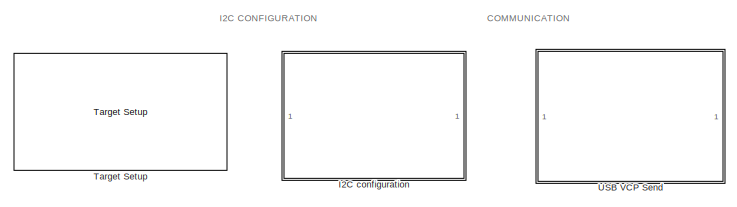
[diagram: root canvas - part 1/3, top center region]
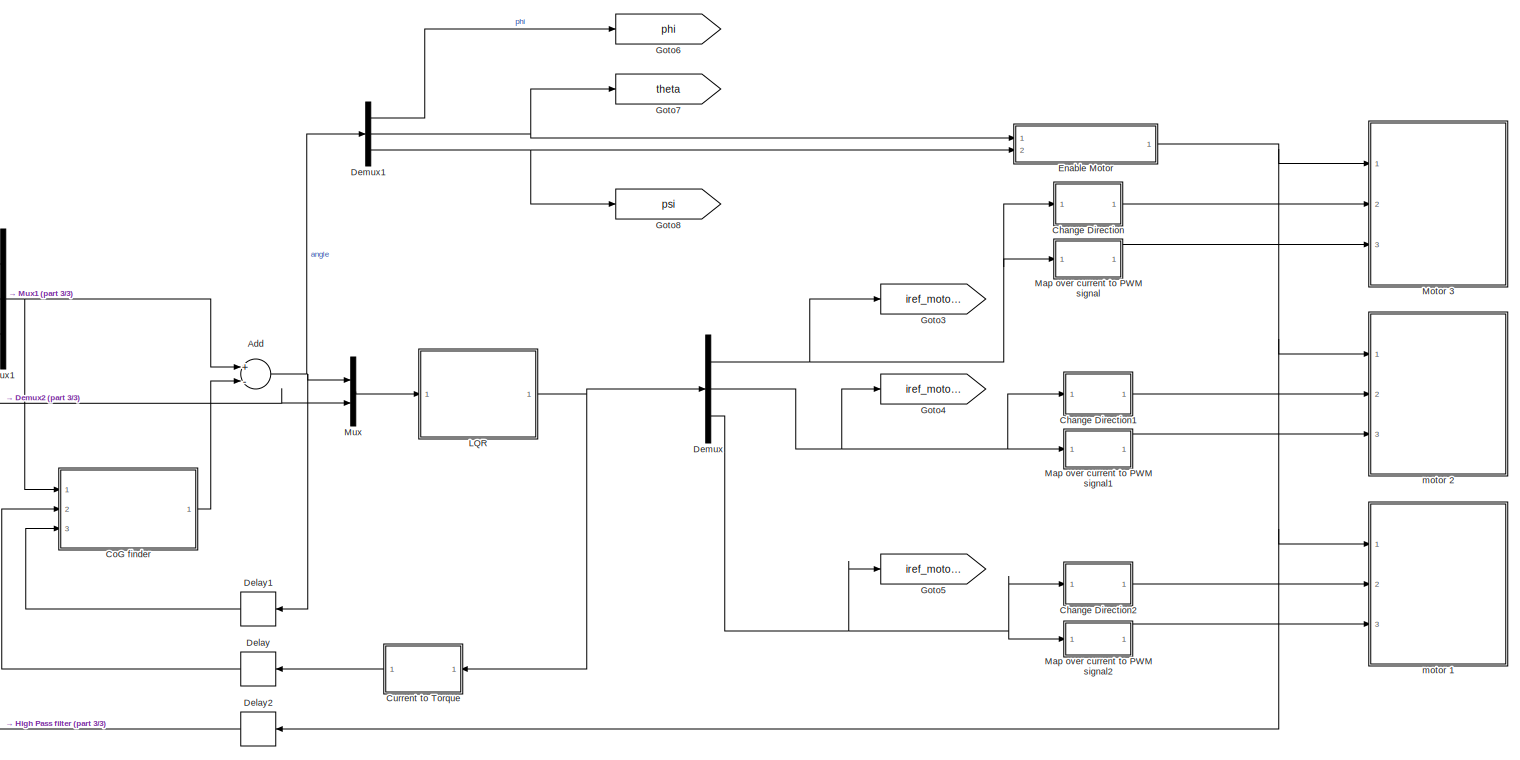
[diagram: root canvas - part 2/3, center side, full height]
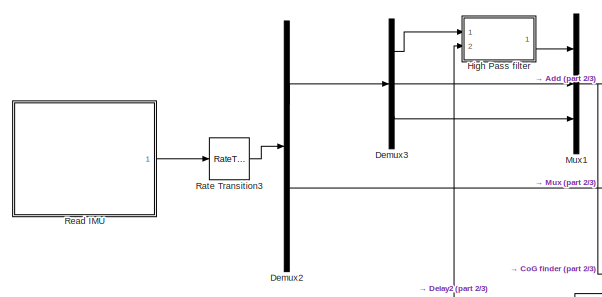
[diagram: root canvas - part 3/3, middle left region]
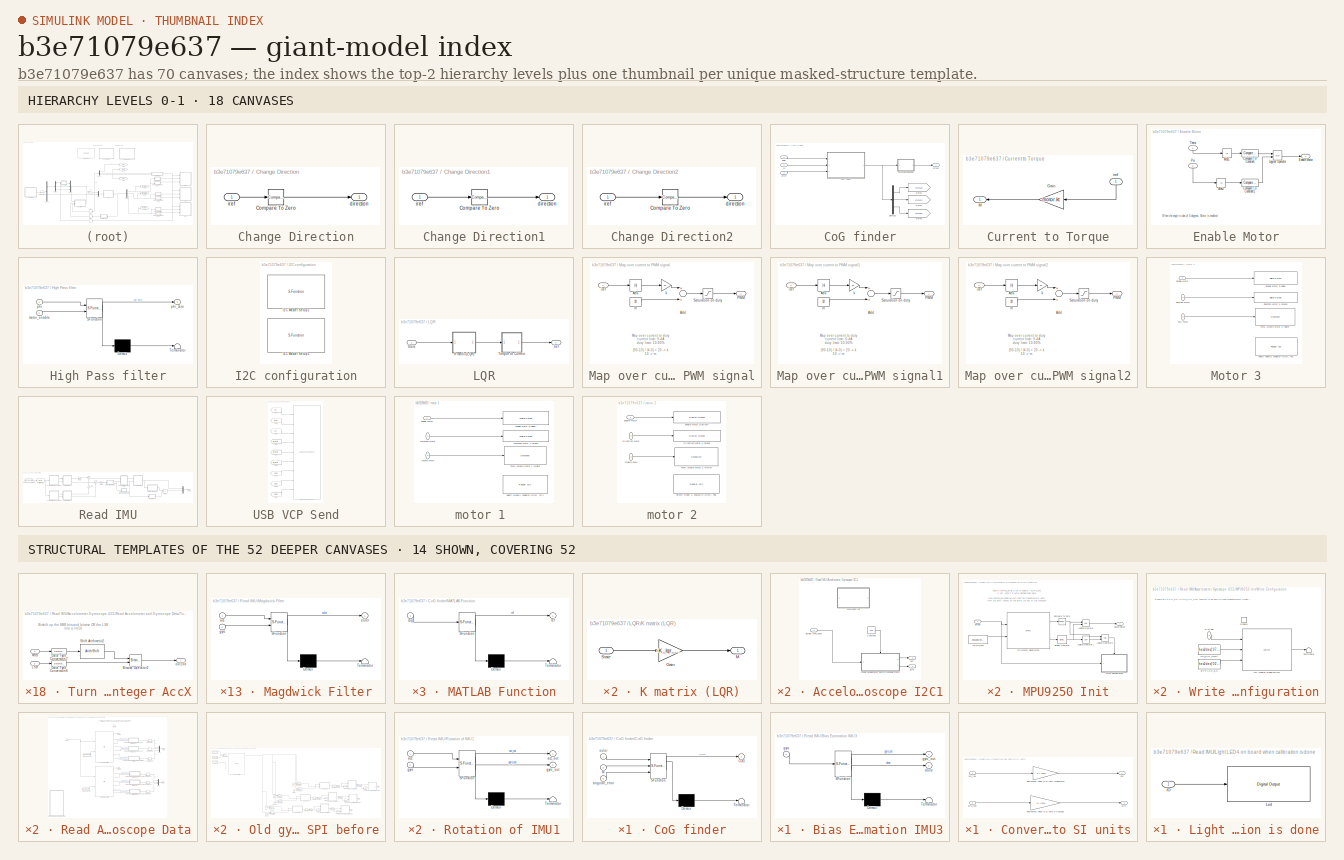
[diagram: thumbnail index - top-2 hierarchy levels (18 canvases) + 14 structural-template representatives of the remaining 52 canvases]
MODEL slx_b3e71079e637
KIND model
CONFIG AbsTol = auto
CONFIG EnableMultiTasking = off
CONFIG FixedStep = Ts.base
CONFIG InitFcn = cubeparameters\nLQR_3d
CONFIG MaxStep = auto
CONFIG MinStep = auto
CONFIG PreLoadFcn = waijung.modelPreload; % Required for working with Waijung Blockset. Do not remove.\n\n
CONFIG RelTol = 1e-3
CONFIG SampleTimeConstraint = Unconstrained
CONFIG Solver = FixedStepDiscrete
CONFIG SolverName = FixedStepDiscrete
CONFIG StartTime = 0.0
CONFIG StopTime = inf
BLOCK [Sum] Add
  InputSameDT = off
  Inputs = +-
  OutDataTypeStr = Inherit: Inherit via internal rule
  Ports = [2, 1]
  SaturateOnIntegerOverflow = off
BLOCK [SubSystem] Change Direction
  Ports = [1, 1]
  RequestExecContextInheritance = off
  Variant = off
BLOCK [Reference] Change Direction/Compare To Zero  REF=simulink/Logic and Bit
Operations/Compare
To Zero
  Ports = [1, 1]
  SourceBlock = simulink/Logic and Bit\nOperations/Compare\nTo Zero
  SourceProductBaseCode = SL
  SourceProductName = Simulink
  SourceType = Compare To Zero
BLOCK [Outport] Change Direction/direction
  IconDisplay = Port number
BLOCK [Inport] Change Direction/iref
  IconDisplay = Port number
BLOCK [SubSystem] Change Direction1
  Ports = [1, 1]
  RequestExecContextInheritance = off
  Variant = off
BLOCK [Reference] Change Direction1/Compare To Zero  REF=simulink/Logic and Bit
Operations/Compare
To Zero
  Ports = [1, 1]
  SourceBlock = simulink/Logic and Bit\nOperations/Compare\nTo Zero
  SourceProductBaseCode = SL
  SourceProductName = Simulink
  SourceType = Compare To Zero
BLOCK [Outport] Change Direction1/direction
  IconDisplay = Port number
BLOCK [Inport] Change Direction1/iref
  IconDisplay = Port number
BLOCK [SubSystem] Change Direction2
  Ports = [1, 1]
  RequestExecContextInheritance = off
  Variant = off
BLOCK [Reference] Change Direction2/Compare To Zero  REF=simulink/Logic and Bit
Operations/Compare
To Zero
  Ports = [1, 1]
  SourceBlock = simulink/Logic and Bit\nOperations/Compare\nTo Zero
  SourceProductBaseCode = SL
  SourceProductName = Simulink
  SourceType = Compare To Zero
BLOCK [Outport] Change Direction2/direction
  IconDisplay = Port number
BLOCK [Inport] Change Direction2/iref
  IconDisplay = Port number
BLOCK [SubSystem] CoG finder
  Ports = [3, 1]
  RequestExecContextInheritance = off
  Variant = off
BLOCK [SubSystem] CoG finder/CoG finder
  ErrorFcn = Stateflow.Translate.translate
  PermitHierarchicalResolution = ExplicitOnly
  Ports = [3, 1]
  RequestExecContextInheritance = off
  SFBlockType = MATLAB Function
  TreatAsAtomicUnit = on
  Variant = off
BLOCK [Demux] CoG finder/CoG finder/ Demux 
  Outputs = 1
  Ports = [1, 1]
BLOCK [S-Function] CoG finder/CoG finder/ SFunction 
  EnableBusSupport = off
  FunctionName = sf_sfun
  Parameters = cube
  PortCounts = [3 2]
  Ports = [3, 2]
  SFcnIsStateOwnerBlock = off
  SFunctionDeploymentMode = off
  Tag = Stateflow S-Function CubeX_LQR_3D 11
BLOCK [Terminator] CoG finder/CoG finder/ Terminator 
BLOCK [Outport] CoG finder/CoG finder/COG
  IconDisplay = Port number
BLOCK [Inport] CoG finder/CoG finder/M
  IconDisplay = Port number
  Port = 2
BLOCK [Inport] CoG finder/CoG finder/angular_error
  IconDisplay = Port number
  Port = 3
BLOCK [Inport] CoG finder/CoG finder/euler
  IconDisplay = Port number
BLOCK [Demux] CoG finder/Demux1
  DisplayOption = bar
  Outputs = 3
  Ports = [1, 3]
BLOCK [Inport] CoG finder/Error
  IconDisplay = Port number
  Port = 3
BLOCK [Inport] CoG finder/Euler
  IconDisplay = Port number
BLOCK [Goto] CoG finder/Goto1
  GotoTag = COGx
  TagVisibility = global
BLOCK [Goto] CoG finder/Goto2
  GotoTag = COGy
  TagVisibility = global
BLOCK [Goto] CoG finder/Goto3
  GotoTag = COGz
  TagVisibility = global
BLOCK [Inport] CoG finder/M
  IconDisplay = Port number
  Port = 2
BLOCK [SubSystem] CoG finder/MATLAB Function
  ErrorFcn = Stateflow.Translate.translate
  PermitHierarchicalResolution = ExplicitOnly
  Ports = [1, 1]
  RequestExecContextInheritance = off
  SFBlockType = MATLAB Function
  TreatAsAtomicUnit = on
  Variant = off
BLOCK [Demux] CoG finder/MATLAB Function/ Demux 
  Outputs = 1
  Ports = [1, 1]
BLOCK [S-Function] CoG finder/MATLAB Function/ SFunction 
  EnableBusSupport = off
  FunctionName = sf_sfun
  PortCounts = [1 2]
  Ports = [1, 2]
  SFcnIsStateOwnerBlock = off
  SFunctionDeploymentMode = off
  Tag = Stateflow S-Function CubeX_LQR_3D 27
BLOCK [Terminator] CoG finder/MATLAB Function/ Terminator 
BLOCK [Inport] CoG finder/MATLAB Function/cog
  IconDisplay = Port number
BLOCK [Outport] CoG finder/MATLAB Function/ref
  IconDisplay = Port number
BLOCK [Outport] CoG finder/offset
  IconDisplay = Port number
BLOCK [SubSystem] Current to Torque
  Ports = [1, 1]
  RequestExecContextInheritance = off
  Variant = off
BLOCK [Gain] Current to Torque/Gain 
  Gain = motor.kt
  OutDataTypeStr = Inherit: Inherit via internal rule
  ParamDataTypeStr = Inherit: Inherit via internal rule
  SaturateOnIntegerOverflow = off
BLOCK [Outport] Current to Torque/M
  IconDisplay = Port number
BLOCK [Inport] Current to Torque/iref
  IconDisplay = Port number
BLOCK [Delay] Delay
  DelayLength = 1
  InitialCondition = [0 0 0]'
  InputPortMap = u0
  Ports = [1, 1]
BLOCK [Delay] Delay1
  DelayLength = 1
  InitialCondition = [0 0 0]'
  InputPortMap = u0
  Ports = [1, 1]
BLOCK [Delay] Delay2
  DelayLength = 1
  InitialCondition = 0
  InputPortMap = u0
  Ports = [1, 1]
BLOCK [Demux] Demux
  DisplayOption = bar
  Outputs = 3
  Ports = [1, 3]
BLOCK [Demux] Demux1
  DisplayOption = bar
  Outputs = 3
  Ports = [1, 3]
BLOCK [Demux] Demux2
  DisplayOption = bar
  Outputs = 2
  Ports = [1, 2]
BLOCK [Demux] Demux3
  DisplayOption = bar
  Outputs = 3
  Ports = [1, 3]
BLOCK [SubSystem] Enable Motor
  Ports = [2, 1]
  RequestExecContextInheritance = off
  SystemSampleTime = Ts.controller
  Variant = off
BLOCK [Abs] Enable Motor/Abs1
  SaturateOnIntegerOverflow = off
BLOCK [Abs] Enable Motor/Abs2
  SaturateOnIntegerOverflow = off
BLOCK [Reference] Enable Motor/Compare To Constant  REF=simulink/Logic and Bit
Operations/Compare
To Constant
  Ports = [1, 1]
  SourceBlock = simulink/Logic and Bit\nOperations/Compare\nTo Constant
  SourceProductBaseCode = SL
  SourceProductName = Simulink
  SourceType = Compare To Constant
BLOCK [Reference] Enable Motor/Compare To Constant1  REF=simulink/Logic and Bit
Operations/Compare
To Constant
  Ports = [1, 1]
  SourceBlock = simulink/Logic and Bit\nOperations/Compare\nTo Constant
  SourceProductBaseCode = SL
  SourceProductName = Simulink
  SourceType = Compare To Constant
BLOCK [Outport] Enable Motor/Enable Motor
  IconDisplay = Port number
BLOCK [Logic] Enable Motor/Logical Operator
  AllPortsSameDT = off
  OutDataTypeStr = boolean
  Ports = [2, 1]
BLOCK [Inport] Enable Motor/Psi
  IconDisplay = Port number
  Port = 2
BLOCK [Inport] Enable Motor/Theta
  IconDisplay = Port number
BLOCK [Goto] Goto3
  GotoTag = iref_motor1
  TagVisibility = global
BLOCK [Goto] Goto4
  GotoTag = iref_motor2
  TagVisibility = global
BLOCK [Goto] Goto5
  GotoTag = iref_motor3
  TagVisibility = global
BLOCK [Goto] Goto6
  GotoTag = phi
  TagVisibility = global
BLOCK [Goto] Goto7
  GotoTag = theta
  TagVisibility = global
BLOCK [Goto] Goto8
  GotoTag = psi
  TagVisibility = global
BLOCK [SubSystem] High Pass filter
  ErrorFcn = Stateflow.Translate.translate
  PermitHierarchicalResolution = ExplicitOnly
  Ports = [2, 1]
  RequestExecContextInheritance = off
  SFBlockType = MATLAB Function
  TreatAsAtomicUnit = on
  Variant = off
BLOCK [Demux] High Pass filter/ Demux 
  Outputs = 1
  Ports = [1, 1]
BLOCK [S-Function] High Pass filter/ SFunction 
  EnableBusSupport = off
  FunctionName = sf_sfun
  PortCounts = [2 2]
  Ports = [2, 2]
  SFcnIsStateOwnerBlock = off
  SFunctionDeploymentMode = off
  Tag = Stateflow S-Function CubeX_LQR_3D 26
BLOCK [Terminator] High Pass filter/ Terminator 
BLOCK [Inport] High Pass filter/motor_enable
  IconDisplay = Port number
  Port = 2
BLOCK [Inport] High Pass filter/phi
  IconDisplay = Port number
BLOCK [Outport] High Pass filter/phi_zero
  IconDisplay = Port number
BLOCK [SubSystem] I2C configuration
  Ports = []
  RequestExecContextInheritance = off
  Variant = off
BLOCK [S-Function] I2C configuration/I2C Master Setup1
  EnableBusSupport = off
  FunctionName = stm32f4_i2c
  Parameters = configuration,module,transfer,clkspeed,timeout,sdapin,sclpin,writecount,readcount,inputtypearray,outputtypearray,confstr,sampletime,sampletimestr,blockid
  Ports = []
  SFcnIsStateOwnerBlock = off
  SFunctionDeploymentMode = off
BLOCK [S-Function] I2C configuration/I2C Master Setup2
  EnableBusSupport = off
  FunctionName = stm32f4_i2c
  Parameters = configuration,module,transfer,clkspeed,timeout,sdapin,sclpin,writecount,readcount,inputtypearray,outputtypearray,confstr,sampletime,sampletimestr,blockid
  Ports = []
  SFcnIsStateOwnerBlock = off
  SFunctionDeploymentMode = off
BLOCK [SubSystem] LQR
  Ports = [1, 1]
  RequestExecContextInheritance = off
  Variant = off
BLOCK [Outport] LQR/Iref
  IconDisplay = Port number
BLOCK [SubSystem] LQR/K matrix (LQR)
  Ports = [1, 1]
  RequestExecContextInheritance = off
  Variant = off
BLOCK [Gain] LQR/K matrix (LQR)/Gain
  Gain = -K_lqr_3D
  Multiplication = Matrix(K*u)
  OutDataTypeStr = Inherit: Inherit via internal rule
  ParamDataTypeStr = Inherit: Inherit via internal rule
  SaturateOnIntegerOverflow = off
BLOCK [Outport] LQR/K matrix (LQR)/M
  IconDisplay = Port number
BLOCK [Inport] LQR/K matrix (LQR)/State
  IconDisplay = Port number
BLOCK [Inport] LQR/State
  IconDisplay = Port number
BLOCK [SubSystem] LQR/Torque to Current
  Ports = [1, 1]
  RequestExecContextInheritance = off
  Variant = off
BLOCK [Gain] LQR/Torque to Current/Gain1
  Gain = 1/motor.kt
  OutDataTypeStr = Inherit: Inherit via internal rule
  ParamDataTypeStr = Inherit: Inherit via internal rule
  SaturateOnIntegerOverflow = off
BLOCK [Inport] LQR/Torque to Current/M
  IconDisplay = Port number
BLOCK [Outport] LQR/Torque to Current/iref
  IconDisplay = Port number
BLOCK [SubSystem] Map over current to PWM signal
  Ports = [1, 1]
  RequestExecContextInheritance = off
  Variant = off
BLOCK [Abs] Map over current to PWM signal/Abs
  SaturateOnIntegerOverflow = off
BLOCK [Sum] Map over current to PWM signal/Add
  InputSameDT = off
  OutDataTypeStr = Inherit: Inherit via internal rule
  Ports = [2, 1]
  SaturateOnIntegerOverflow = off
BLOCK [Outport] Map over current to PWM signal/PWM
  IconDisplay = Port number
BLOCK [Saturate] Map over current to PWM signal/Saturation on duty
  InputPortMap = u0
  LowerLimit = 10
  OutDataTypeStr = single
  Ports = [1, 1]
  UpperLimit = 90
BLOCK [Inport] Map over current to PWM signal/iref
  IconDisplay = Port number
BLOCK [Gain] Map over current to PWM signal/k
  Gain = 20
  OutDataTypeStr = Inherit: Inherit via internal rule
  ParamDataTypeStr = Inherit: Inherit via internal rule
  SaturateOnIntegerOverflow = off
BLOCK [Constant] Map over current to PWM signal/m
  OutDataTypeStr = single
  SampleTime = Ts.controller
  Value = 10
BLOCK [SubSystem] Map over current to PWM signal1
  Ports = [1, 1]
  RequestExecContextInheritance = off
  Variant = off
BLOCK [Abs] Map over current to PWM signal1/Abs
  SaturateOnIntegerOverflow = off
BLOCK [Sum] Map over current to PWM signal1/Add
  InputSameDT = off
  OutDataTypeStr = Inherit: Inherit via internal rule
  Ports = [2, 1]
  SaturateOnIntegerOverflow = off
BLOCK [Outport] Map over current to PWM signal1/PWM
  IconDisplay = Port number
BLOCK [Saturate] Map over current to PWM signal1/Saturation on duty
  InputPortMap = u0
  LowerLimit = 10
  OutDataTypeStr = single
  Ports = [1, 1]
  UpperLimit = 90
BLOCK [Inport] Map over current to PWM signal1/iref
  IconDisplay = Port number
BLOCK [Gain] Map over current to PWM signal1/k
  Gain = 20
  OutDataTypeStr = Inherit: Inherit via internal rule
  ParamDataTypeStr = Inherit: Inherit via internal rule
  SaturateOnIntegerOverflow = off
BLOCK [Constant] Map over current to PWM signal1/m
  OutDataTypeStr = single
  SampleTime = Ts.controller
  Value = 10
BLOCK [SubSystem] Map over current to PWM signal2
  Ports = [1, 1]
  RequestExecContextInheritance = off
  Variant = off
BLOCK [Abs] Map over current to PWM signal2/Abs
  SaturateOnIntegerOverflow = off
BLOCK [Sum] Map over current to PWM signal2/Add
  InputSameDT = off
  OutDataTypeStr = Inherit: Inherit via internal rule
  Ports = [2, 1]
  SaturateOnIntegerOverflow = off
BLOCK [Outport] Map over current to PWM signal2/PWM
  IconDisplay = Port number
BLOCK [Saturate] Map over current to PWM signal2/Saturation on duty
  InputPortMap = u0
  LowerLimit = 10
  OutDataTypeStr = single
  Ports = [1, 1]
  UpperLimit = 90
BLOCK [Inport] Map over current to PWM signal2/iref
  IconDisplay = Port number
BLOCK [Gain] Map over current to PWM signal2/k
  Gain = 20
  OutDataTypeStr = Inherit: Inherit via internal rule
  ParamDataTypeStr = Inherit: Inherit via internal rule
  SaturateOnIntegerOverflow = off
BLOCK [Constant] Map over current to PWM signal2/m
  OutDataTypeStr = single
  SampleTime = Ts.controller
  Value = 10
BLOCK [SubSystem] Motor 3
  Ports = [3]
  RequestExecContextInheritance = off
  Variant = off
BLOCK [Inport] Motor 3/Direction Motor 
  IconDisplay = Port number
  Port = 2
BLOCK [Reference] Motor 3/Direction Motor 3 (green)  REF=stm32f4_io_lib/Digital Output
  Ports = [1]
  SourceBlock = stm32f4_io_lib/Digital Output
  SourceType = stm32f4_digital_output
BLOCK [Inport] Motor 3/Duty PWM
  IconDisplay = Port number
  Port = 3
BLOCK [Inport] Motor 3/Enable Motor
  IconDisplay = Port number
BLOCK [Reference] Motor 3/Enable Motor 3(yellow)  REF=stm32f4_io_lib/Digital Output
  Ports = [1]
  SourceBlock = stm32f4_io_lib/Digital Output
  SourceType = stm32f4_digital_output
BLOCK [S-Function] Motor 3/PWM Ampere motor 3 (white)
  EnableBusSupport = off
  FunctionName = stm32f4_basicpwm_fixed
  Parameters = timer,pwmperiod,uc3m_pwmperiod,ch1pin,ch2pin,ch3pin,ch4pin,sampletime,sampletimestr,blockid,apb,portstr,pinstr,pinmat,timarr,timprescale,chmat,polaritystr
  Ports = [1]
  SFcnIsStateOwnerBlock = off
  SFunctionDeploymentMode = off
BLOCK [Reference] Motor 3/Velocty wheel 3, analog in (Grey), PC1  REF=stm32f4_adc_lib/Regular ADC
  Commented = on
  Ports = [0, 1]
  SourceBlock = stm32f4_adc_lib/Regular ADC
  SourceType = stm32f4_regular_adc
BLOCK [Mux] Mux
  DisplayOption = bar
  Inputs = 2
  Ports = [2, 1]
BLOCK [Mux] Mux1
  DisplayOption = bar
  Inputs = 3
  Ports = [3, 1]
BLOCK [RateTransition] Rate Transition3
  OutPortSampleTime = Ts.controller
BLOCK [SubSystem] Read IMU
  Ports = [0, 1]
  RequestExecContextInheritance = off
  Variant = off
BLOCK [Constant] Read IMU/ MPU9250_ADDRESS
  OutDataTypeStr = uint8
  SampleTime = Ts.IMU
  Value = hex2dec('68')
BLOCK [SubSystem] Read IMU/Accelometer Gyroscope I2C1
  Ports = [1, 2]
  RequestExecContextInheritance = off
  Variant = off
BLOCK [Constant] Read IMU/Accelometer Gyroscope I2C1/Constant
  OutDataTypeStr = boolean
  SampleTime = Ts.IMU
  Value = true
BLOCK [SubSystem] Read IMU/Accelometer Gyroscope I2C1/MPU9250 Init
  Commented = on
  Ports = [1, 1]
  RequestExecContextInheritance = off
  Variant = off
BLOCK [Reference] Read IMU/Accelometer Gyroscope I2C1/MPU9250 Init/Bitwise Operator  REF=simulink/Logic and Bit
Operations/Bitwise
Operator
  Ports = [1, 1]
  SourceBlock = simulink/Logic and Bit\nOperations/Bitwise\nOperator
  SourceProductBaseCode = SL
  SourceProductName = Simulink
  SourceType = Bitwise Operator
BLOCK [Reference] Read IMU/Accelometer Gyroscope I2C1/MPU9250 Init/Compare To Zero  REF=simulink/Logic and Bit
Operations/Compare
To Zero
  Ports = [1, 1]
  SourceBlock = simulink/Logic and Bit\nOperations/Compare\nTo Zero
  SourceProductBaseCode = SL
  SourceProductName = Simulink
  SourceType = Compare To Zero
BLOCK [Reference] Read IMU/Accelometer Gyroscope I2C1/MPU9250 Init/I2C Master Read//Write  REF=stm32f4_i2c_lib/I2C Master Read//Write
  Ports = [2, 2]
  SourceBlock = stm32f4_i2c_lib/I2C Master Read//Write
  SourceType = stm32f4_i2c
BLOCK [Constant] Read IMU/Accelometer Gyroscope I2C1/MPU9250 Init/INT_PIN_CFG
  OutDataTypeStr = uint8
  SampleTime = -1
  Value = hex2dec('37')
BLOCK [Logic] Read IMU/Accelometer Gyroscope I2C1/MPU9250 Init/Logical Operator
  AllPortsSameDT = off
  OutDataTypeStr = boolean
  Ports = [2, 1]
BLOCK [Logic] Read IMU/Accelometer Gyroscope I2C1/MPU9250 Init/Logical Operator1
  AllPortsSameDT = off
  Operator = NOT
  OutDataTypeStr = boolean
  Ports = [1, 1]
BLOCK [Logic] Read IMU/Accelometer Gyroscope I2C1/MPU9250 Init/Logical Operator2
  AllPortsSameDT = off
  OutDataTypeStr = boolean
  Ports = [2, 1]
BLOCK [Outport] Read IMU/Accelometer Gyroscope I2C1/MPU9250 Init/SETUP_READY
  IconDisplay = Port number
BLOCK [Inport] Read IMU/Accelometer Gyroscope I2C1/MPU9250 Init/SlvAddr
  IconDisplay = Port number
BLOCK [SubSystem] Read IMU/Accelometer Gyroscope I2C1/MPU9250 Init/Write Configuration
  Ports = [1, 0, 1]
  RequestExecContextInheritance = off
  Variant = off
BLOCK [Constant] Read IMU/Accelometer Gyroscope I2C1/MPU9250 Init/Write Configuration/BYPASS_EN
  OutDataTypeStr = uint8
  SampleTime = -1
  Value = hex2dec('02')
BLOCK [EnablePort] Read IMU/Accelometer Gyroscope I2C1/MPU9250 Init/Write Configuration/Enable
  Ports = []
BLOCK [Reference] Read IMU/Accelometer Gyroscope I2C1/MPU9250 Init/Write Configuration/I2C Master Read//Write1  REF=stm32f4_i2c_lib/I2C Master Read//Write
  Ports = [3, 1]
  SourceBlock = stm32f4_i2c_lib/I2C Master Read//Write
  SourceType = stm32f4_i2c
BLOCK [Constant] Read IMU/Accelometer Gyroscope I2C1/MPU9250 Init/Write Configuration/INT_PIN_CFG1
  OutDataTypeStr = uint8
  SampleTime = -1
  Value = hex2dec('37')
BLOCK [Inport] Read IMU/Accelometer Gyroscope I2C1/MPU9250 Init/Write Configuration/SlvAddr
  IconDisplay = Port number
BLOCK [Terminator] Read IMU/Accelometer Gyroscope I2C1/MPU9250 Init/Write Configuration/Terminator
BLOCK [SubSystem] Read IMU/Accelometer Gyroscope I2C1/Read Accelometer and Gyroscope Data
  Ports = [1, 2, 1]
  RequestExecContextInheritance = off
  Variant = off
BLOCK [Constant] Read IMU/Accelometer Gyroscope I2C1/Read Accelometer and Gyroscope Data/ACCEL_XOUT_H
  OutDataTypeStr = uint8
  SampleTime = -1
  Value = hex2dec('3B')
BLOCK [Terminator] Read IMU/Accelometer Gyroscope I2C1/Read Accelometer and Gyroscope Data/DUMMY
BLOCK [DataTypeConversion] Read IMU/Accelometer Gyroscope I2C1/Read Accelometer and Gyroscope Data/Data Type Conversion1
  OutDataTypeStr = int16
  RndMeth = Floor
  SaturateOnIntegerOverflow = off
BLOCK [DataTypeConversion] Read IMU/Accelometer Gyroscope I2C1/Read Accelometer and Gyroscope Data/Data Type Conversion12
  OutDataTypeStr = int16
  RndMeth = Floor
  SaturateOnIntegerOverflow = off
BLOCK [DataTypeConversion] Read IMU/Accelometer Gyroscope I2C1/Read Accelometer and Gyroscope Data/Data Type Conversion16
  OutDataTypeStr = int16
  RndMeth = Floor
  SaturateOnIntegerOverflow = off
BLOCK [DataTypeConversion] Read IMU/Accelometer Gyroscope I2C1/Read Accelometer and Gyroscope Data/Data Type Conversion17
  OutDataTypeStr = int16
  RndMeth = Floor
  SaturateOnIntegerOverflow = off
BLOCK [DataTypeConversion] Read IMU/Accelometer Gyroscope I2C1/Read Accelometer and Gyroscope Data/Data Type Conversion18
  OutDataTypeStr = int16
  RndMeth = Floor
  SaturateOnIntegerOverflow = off
BLOCK [DataTypeConversion] Read IMU/Accelometer Gyroscope I2C1/Read Accelometer and Gyroscope Data/Data Type Conversion6
  OutDataTypeStr = int16
  RndMeth = Floor
  SaturateOnIntegerOverflow = off
BLOCK [EnablePort] Read IMU/Accelometer Gyroscope I2C1/Read Accelometer and Gyroscope Data/Enable
  Ports = []
BLOCK [Constant] Read IMU/Accelometer Gyroscope I2C1/Read Accelometer and Gyroscope Data/GYRO_XOUT_H
  OutDataTypeStr = uint8
  SampleTime = -1
  Value = hex2dec('43')
BLOCK [Reference] Read IMU/Accelometer Gyroscope I2C1/Read Accelometer and Gyroscope Data/I2C Master Read//Write  REF=stm32f4_i2c_lib/I2C Master Read//Write
  Ports = [2, 7]
  SourceBlock = stm32f4_i2c_lib/I2C Master Read//Write
  SourceType = stm32f4_i2c
BLOCK [Reference] Read IMU/Accelometer Gyroscope I2C1/Read Accelometer and Gyroscope Data/I2C Master Read//Write2  REF=stm32f4_i2c_lib/I2C Master Read//Write
  Ports = [2, 7]
  SourceBlock = stm32f4_i2c_lib/I2C Master Read//Write
  SourceType = stm32f4_i2c
BLOCK [Mux] Read IMU/Accelometer Gyroscope I2C1/Read Accelometer and Gyroscope Data/Mux
  DisplayOption = bar
  Inputs = 3
  Ports = [3, 1]
BLOCK [Mux] Read IMU/Accelometer Gyroscope I2C1/Read Accelometer and Gyroscope Data/Mux1
  DisplayOption = bar
  Inputs = 3
  Ports = [3, 1]
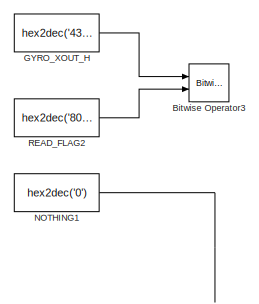
[diagram: Read IMU/Accelometer Gyroscope I2C1/Read Accelometer and Gyroscope Data/Old gyro get data Used during SPI before - part 1/4, top left region]
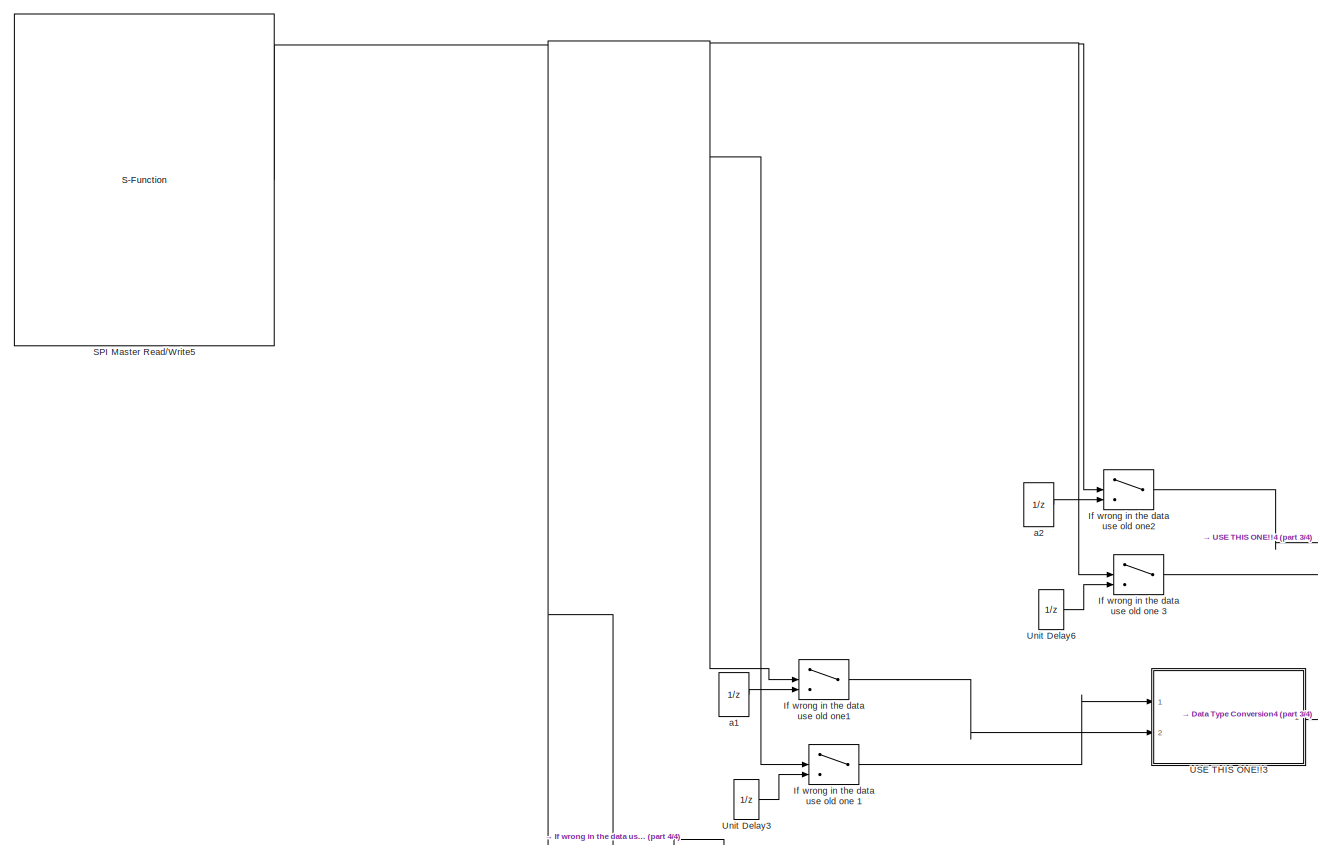
[diagram: Read IMU/Accelometer Gyroscope I2C1/Read Accelometer and Gyroscope Data/Old gyro get data Used during SPI before - part 2/4, center side, full height]
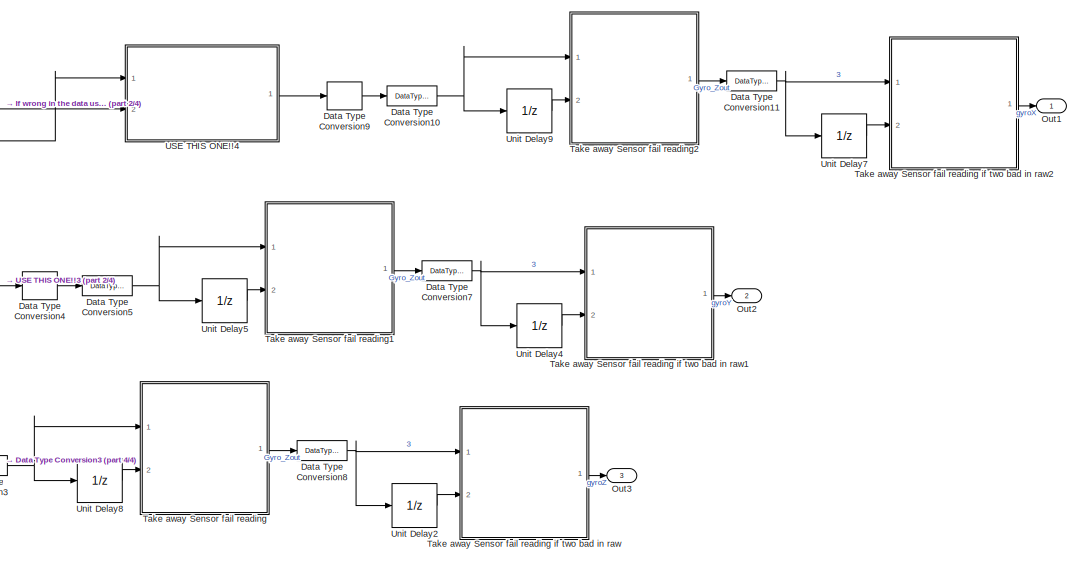
[diagram: Read IMU/Accelometer Gyroscope I2C1/Read Accelometer and Gyroscope Data/Old gyro get data Used during SPI before - part 3/4, bottom right region]
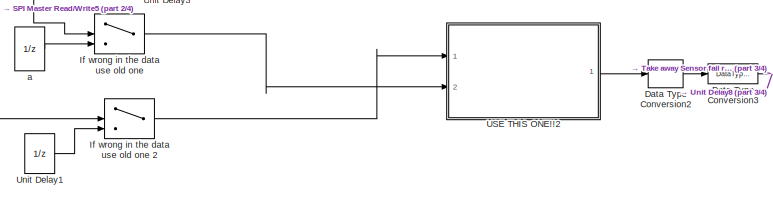
[diagram: Read IMU/Accelometer Gyroscope I2C1/Read Accelometer and Gyroscope Data/Old gyro get data Used during SPI before - part 4/4, bottom center region]
BLOCK [SubSystem] Read IMU/Accelometer Gyroscope I2C1/Read Accelometer and Gyroscope Data/Old gyro get data Used during SPI before
  Commented = on
  Ports = [0, 3]
  RequestExecContextInheritance = off
  Variant = off
BLOCK [UnitDelay] Read IMU/Accelometer Gyroscope I2C1/Read Accelometer and Gyroscope Data/Old gyro get data Used during SPI before/ a
  Commented = on
  InputProcessing = Elements as channels (sample based)
  SampleTime = -1
BLOCK [UnitDelay] Read IMU/Accelometer Gyroscope I2C1/Read Accelometer and Gyroscope Data/Old gyro get data Used during SPI before/ a1
  Commented = on
  InputProcessing = Elements as channels (sample based)
  SampleTime = -1
BLOCK [UnitDelay] Read IMU/Accelometer Gyroscope I2C1/Read Accelometer and Gyroscope Data/Old gyro get data Used during SPI before/ a2
  Commented = on
  InputProcessing = Elements as channels (sample based)
  SampleTime = -1
BLOCK [Reference] Read IMU/Accelometer Gyroscope I2C1/Read Accelometer and Gyroscope Data/Old gyro get data Used during SPI before/Bitwise Operator3  REF=simulink/Logic and Bit
Operations/Bitwise
Operator
  Commented = on
  Ports = [2, 1]
  SourceBlock = simulink/Logic and Bit\nOperations/Bitwise\nOperator
  SourceProductBaseCode = SL
  SourceProductName = Simulink
  SourceType = Bitwise Operator
BLOCK [DataTypeConversion] Read IMU/Accelometer Gyroscope I2C1/Read Accelometer and Gyroscope Data/Old gyro get data Used during SPI before/Data Type Conversion10
  Commented = on
  RndMeth = Floor
  SaturateOnIntegerOverflow = off
BLOCK [DataTypeConversion] Read IMU/Accelometer Gyroscope I2C1/Read Accelometer and Gyroscope Data/Old gyro get data Used during SPI before/Data Type Conversion11
  Commented = on
  RndMeth = Floor
  SaturateOnIntegerOverflow = off
BLOCK [DataTypeConversion] Read IMU/Accelometer Gyroscope I2C1/Read Accelometer and Gyroscope Data/Old gyro get data Used during SPI before/Data Type Conversion2
  Commented = on
  OutDataTypeStr = int16
  RndMeth = Floor
  SaturateOnIntegerOverflow = off
BLOCK [DataTypeConversion] Read IMU/Accelometer Gyroscope I2C1/Read Accelometer and Gyroscope Data/Old gyro get data Used during SPI before/Data Type Conversion3
  Commented = on
  RndMeth = Floor
  SaturateOnIntegerOverflow = off
BLOCK [DataTypeConversion] Read IMU/Accelometer Gyroscope I2C1/Read Accelometer and Gyroscope Data/Old gyro get data Used during SPI before/Data Type Conversion4
  Commented = on
  OutDataTypeStr = int16
  RndMeth = Floor
  SaturateOnIntegerOverflow = off
BLOCK [DataTypeConversion] Read IMU/Accelometer Gyroscope I2C1/Read Accelometer and Gyroscope Data/Old gyro get data Used during SPI before/Data Type Conversion5
  Commented = on
  RndMeth = Floor
  SaturateOnIntegerOverflow = off
BLOCK [DataTypeConversion] Read IMU/Accelometer Gyroscope I2C1/Read Accelometer and Gyroscope Data/Old gyro get data Used during SPI before/Data Type Conversion7
  Commented = on
  RndMeth = Floor
  SaturateOnIntegerOverflow = off
BLOCK [DataTypeConversion] Read IMU/Accelometer Gyroscope I2C1/Read Accelometer and Gyroscope Data/Old gyro get data Used during SPI before/Data Type Conversion8
  Commented = on
  RndMeth = Floor
  SaturateOnIntegerOverflow = off
BLOCK [DataTypeConversion] Read IMU/Accelometer Gyroscope I2C1/Read Accelometer and Gyroscope Data/Old gyro get data Used during SPI before/Data Type Conversion9
  Commented = on
  OutDataTypeStr = int16
  RndMeth = Floor
  SaturateOnIntegerOverflow = off
BLOCK [Constant] Read IMU/Accelometer Gyroscope I2C1/Read Accelometer and Gyroscope Data/Old gyro get data Used during SPI before/GYRO_XOUT_H
  Commented = on
  OutDataTypeStr = uint8
  Value = hex2dec('43')
BLOCK [Switch] Read IMU/Accelometer Gyroscope I2C1/Read Accelometer and Gyroscope Data/Old gyro get data Used during SPI before/If wrong in the data use old one
  Commented = on
  Criteria = u2 ~= 0
  InputSameDT = off
  SaturateOnIntegerOverflow = off
BLOCK [Switch] Read IMU/Accelometer Gyroscope I2C1/Read Accelometer and Gyroscope Data/Old gyro get data Used during SPI before/If wrong in the data use old one 1
  Commented = on
  Criteria = u2 ~= 0
  InputSameDT = off
  SaturateOnIntegerOverflow = off
BLOCK [Switch] Read IMU/Accelometer Gyroscope I2C1/Read Accelometer and Gyroscope Data/Old gyro get data Used during SPI before/If wrong in the data use old one 2
  Commented = on
  Criteria = u2 ~= 0
  InputSameDT = off
  SaturateOnIntegerOverflow = off
BLOCK [Switch] Read IMU/Accelometer Gyroscope I2C1/Read Accelometer and Gyroscope Data/Old gyro get data Used during SPI before/If wrong in the data use old one 3
  Commented = on
  Criteria = u2 ~= 0
  InputSameDT = off
  SaturateOnIntegerOverflow = off
BLOCK [Switch] Read IMU/Accelometer Gyroscope I2C1/Read Accelometer and Gyroscope Data/Old gyro get data Used during SPI before/If wrong in the data use old one1
  Commented = on
  Criteria = u2 ~= 0
  InputSameDT = off
  SaturateOnIntegerOverflow = off
BLOCK [Switch] Read IMU/Accelometer Gyroscope I2C1/Read Accelometer and Gyroscope Data/Old gyro get data Used during SPI before/If wrong in the data use old one2
  Commented = on
  Criteria = u2 ~= 0
  InputSameDT = off
  SaturateOnIntegerOverflow = off
BLOCK [Constant] Read IMU/Accelometer Gyroscope I2C1/Read Accelometer and Gyroscope Data/Old gyro get data Used during SPI before/NOTHING1
  Commented = on
  OutDataTypeStr = uint8
  Value = hex2dec('0')
BLOCK [Outport] Read IMU/Accelometer Gyroscope I2C1/Read Accelometer and Gyroscope Data/Old gyro get data Used during SPI before/Out1
  IconDisplay = Port number
BLOCK [Outport] Read IMU/Accelometer Gyroscope I2C1/Read Accelometer and Gyroscope Data/Old gyro get data Used during SPI before/Out2
  IconDisplay = Port number
  Port = 2
BLOCK [Outport] Read IMU/Accelometer Gyroscope I2C1/Read Accelometer and Gyroscope Data/Old gyro get data Used during SPI before/Out3
  IconDisplay = Port number
  Port = 3
BLOCK [Constant] Read IMU/Accelometer Gyroscope I2C1/Read Accelometer and Gyroscope Data/Old gyro get data Used during SPI before/READ_FLAG2
  Commented = on
  OutDataTypeStr = uint8
  Value = hex2dec('80')
BLOCK [S-Function] Read IMU/Accelometer Gyroscope I2C1/Read Accelometer and Gyroscope Data/Old gyro get data Used during SPI before/SPI Master Read//Write5
  Commented = on
  EnableBusSupport = off
  FunctionName = stm32f4_spimaster
  Parameters = mode,configuration,module,datacount,inputtypearray,outputtypearray,confstr,sampletime,sampletimestr,blockid
  Ports = [0, 1]
  SFcnIsStateOwnerBlock = off
  SFunctionDeploymentMode = off
BLOCK [SubSystem] Read IMU/Accelometer Gyroscope I2C1/Read Accelometer and Gyroscope Data/Old gyro get data Used during SPI before/Take away Sensor fail reading
  Commented = on
  ErrorFcn = Stateflow.Translate.translate
  PermitHierarchicalResolution = ExplicitOnly
  Ports = [2, 1]
  RequestExecContextInheritance = off
  SFBlockType = MATLAB Function
  TreatAsAtomicUnit = on
  Variant = off
BLOCK [SubSystem] Read IMU/Accelometer Gyroscope I2C1/Read Accelometer and Gyroscope Data/Old gyro get data Used during SPI before/Take away Sensor fail reading if two bad in raw
  Commented = on
  ErrorFcn = Stateflow.Translate.translate
  PermitHierarchicalResolution = ExplicitOnly
  Ports = [2, 1]
  RequestExecContextInheritance = off
  SFBlockType = MATLAB Function
  TreatAsAtomicUnit = on
  Variant = off
BLOCK [Demux] Read IMU/Accelometer Gyroscope I2C1/Read Accelometer and Gyroscope Data/Old gyro get data Used during SPI before/Take away Sensor fail reading if two bad in raw/ Demux 
  Outputs = 1
  Ports = [1, 1]
BLOCK [S-Function] Read IMU/Accelometer Gyroscope I2C1/Read Accelometer and Gyroscope Data/Old gyro get data Used during SPI before/Take away Sensor fail reading if two bad in raw/ SFunction 
  EnableBusSupport = off
  FunctionName = sf_sfun
  PortCounts = [2 2]
  Ports = [2, 2]
  SFcnIsStateOwnerBlock = off
  SFunctionDeploymentMode = off
  Tag = Stateflow S-Function CubeX_LQR_3D 29
BLOCK [Terminator] Read IMU/Accelometer Gyroscope I2C1/Read Accelometer and Gyroscope Data/Old gyro get data Used during SPI before/Take away Sensor fail reading if two bad in raw/ Terminator 
BLOCK [Inport] Read IMU/Accelometer Gyroscope I2C1/Read Accelometer and Gyroscope Data/Old gyro get data Used during SPI before/Take away Sensor fail reading if two bad in raw/new
  IconDisplay = Port number
BLOCK [Inport] Read IMU/Accelometer Gyroscope I2C1/Read Accelometer and Gyroscope Data/Old gyro get data Used during SPI before/Take away Sensor fail reading if two bad in raw/old
  IconDisplay = Port number
  Port = 2
BLOCK [Outport] Read IMU/Accelometer Gyroscope I2C1/Read Accelometer and Gyroscope Data/Old gyro get data Used during SPI before/Take away Sensor fail reading if two bad in raw/y
  IconDisplay = Port number
BLOCK [SubSystem] Read IMU/Accelometer Gyroscope I2C1/Read Accelometer and Gyroscope Data/Old gyro get data Used during SPI before/Take away Sensor fail reading if two bad in raw1
  Commented = on
  ErrorFcn = Stateflow.Translate.translate
  PermitHierarchicalResolution = ExplicitOnly
  Ports = [2, 1]
  RequestExecContextInheritance = off
  SFBlockType = MATLAB Function
  TreatAsAtomicUnit = on
  Variant = off
BLOCK [Demux] Read IMU/Accelometer Gyroscope I2C1/Read Accelometer and Gyroscope Data/Old gyro get data Used during SPI before/Take away Sensor fail reading if two bad in raw1/ Demux 
  Outputs = 1
  Ports = [1, 1]
BLOCK [S-Function] Read IMU/Accelometer Gyroscope I2C1/Read Accelometer and Gyroscope Data/Old gyro get data Used during SPI before/Take away Sensor fail reading if two bad in raw1/ SFunction 
  EnableBusSupport = off
  FunctionName = sf_sfun
  PortCounts = [2 2]
  Ports = [2, 2]
  SFcnIsStateOwnerBlock = off
  SFunctionDeploymentMode = off
  Tag = Stateflow S-Function CubeX_LQR_3D 30
BLOCK [Terminator] Read IMU/Accelometer Gyroscope I2C1/Read Accelometer and Gyroscope Data/Old gyro get data Used during SPI before/Take away Sensor fail reading if two bad in raw1/ Terminator 
BLOCK [Inport] Read IMU/Accelometer Gyroscope I2C1/Read Accelometer and Gyroscope Data/Old gyro get data Used during SPI before/Take away Sensor fail reading if two bad in raw1/new
  IconDisplay = Port number
BLOCK [Inport] Read IMU/Accelometer Gyroscope I2C1/Read Accelometer and Gyroscope Data/Old gyro get data Used during SPI before/Take away Sensor fail reading if two bad in raw1/old
  IconDisplay = Port number
  Port = 2
BLOCK [Outport] Read IMU/Accelometer Gyroscope I2C1/Read Accelometer and Gyroscope Data/Old gyro get data Used during SPI before/Take away Sensor fail reading if two bad in raw1/y
  IconDisplay = Port number
BLOCK [SubSystem] Read IMU/Accelometer Gyroscope I2C1/Read Accelometer and Gyroscope Data/Old gyro get data Used during SPI before/Take away Sensor fail reading if two bad in raw2
  Commented = on
  ErrorFcn = Stateflow.Translate.translate
  PermitHierarchicalResolution = ExplicitOnly
  Ports = [2, 1]
  RequestExecContextInheritance = off
  SFBlockType = MATLAB Function
  TreatAsAtomicUnit = on
  Variant = off
BLOCK [Demux] Read IMU/Accelometer Gyroscope I2C1/Read Accelometer and Gyroscope Data/Old gyro get data Used during SPI before/Take away Sensor fail reading if two bad in raw2/ Demux 
  Outputs = 1
  Ports = [1, 1]
BLOCK [S-Function] Read IMU/Accelometer Gyroscope I2C1/Read Accelometer and Gyroscope Data/Old gyro get data Used during SPI before/Take away Sensor fail reading if two bad in raw2/ SFunction 
  EnableBusSupport = off
  FunctionName = sf_sfun
  PortCounts = [2 2]
  Ports = [2, 2]
  SFcnIsStateOwnerBlock = off
  SFunctionDeploymentMode = off
  Tag = Stateflow S-Function CubeX_LQR_3D 32
BLOCK [Terminator] Read IMU/Accelometer Gyroscope I2C1/Read Accelometer and Gyroscope Data/Old gyro get data Used during SPI before/Take away Sensor fail reading if two bad in raw2/ Terminator 
BLOCK [Inport] Read IMU/Accelometer Gyroscope I2C1/Read Accelometer and Gyroscope Data/Old gyro get data Used during SPI before/Take away Sensor fail reading if two bad in raw2/new
  IconDisplay = Port number
BLOCK [Inport] Read IMU/Accelometer Gyroscope I2C1/Read Accelometer and Gyroscope Data/Old gyro get data Used during SPI before/Take away Sensor fail reading if two bad in raw2/old
  IconDisplay = Port number
  Port = 2
BLOCK [Outport] Read IMU/Accelometer Gyroscope I2C1/Read Accelometer and Gyroscope Data/Old gyro get data Used during SPI before/Take away Sensor fail reading if two bad in raw2/y
  IconDisplay = Port number
BLOCK [Demux] Read IMU/Accelometer Gyroscope I2C1/Read Accelometer and Gyroscope Data/Old gyro get data Used during SPI before/Take away Sensor fail reading/ Demux 
  Outputs = 1
  Ports = [1, 1]
BLOCK [S-Function] Read IMU/Accelometer Gyroscope I2C1/Read Accelometer and Gyroscope Data/Old gyro get data Used during SPI before/Take away Sensor fail reading/ SFunction 
  EnableBusSupport = off
  FunctionName = sf_sfun
  PortCounts = [2 2]
  Ports = [2, 2]
  SFcnIsStateOwnerBlock = off
  SFunctionDeploymentMode = off
  Tag = Stateflow S-Function CubeX_LQR_3D 28
BLOCK [Terminator] Read IMU/Accelometer Gyroscope I2C1/Read Accelometer and Gyroscope Data/Old gyro get data Used during SPI before/Take away Sensor fail reading/ Terminator 
BLOCK [Inport] Read IMU/Accelometer Gyroscope I2C1/Read Accelometer and Gyroscope Data/Old gyro get data Used during SPI before/Take away Sensor fail reading/new
  IconDisplay = Port number
BLOCK [Inport] Read IMU/Accelometer Gyroscope I2C1/Read Accelometer and Gyroscope Data/Old gyro get data Used during SPI before/Take away Sensor fail reading/old
  IconDisplay = Port number
  Port = 2
BLOCK [Outport] Read IMU/Accelometer Gyroscope I2C1/Read Accelometer and Gyroscope Data/Old gyro get data Used during SPI before/Take away Sensor fail reading/y
  IconDisplay = Port number
BLOCK [SubSystem] Read IMU/Accelometer Gyroscope I2C1/Read Accelometer and Gyroscope Data/Old gyro get data Used during SPI before/Take away Sensor fail reading1
  Commented = on
  ErrorFcn = Stateflow.Translate.translate
  PermitHierarchicalResolution = ExplicitOnly
  Ports = [2, 1]
  RequestExecContextInheritance = off
  SFBlockType = MATLAB Function
  TreatAsAtomicUnit = on
  Variant = off
BLOCK [Demux] Read IMU/Accelometer Gyroscope I2C1/Read Accelometer and Gyroscope Data/Old gyro get data Used during SPI before/Take away Sensor fail reading1/ Demux 
  Outputs = 1
  Ports = [1, 1]
BLOCK [S-Function] Read IMU/Accelometer Gyroscope I2C1/Read Accelometer and Gyroscope Data/Old gyro get data Used during SPI before/Take away Sensor fail reading1/ SFunction 
  EnableBusSupport = off
  FunctionName = sf_sfun
  PortCounts = [2 2]
  Ports = [2, 2]
  SFcnIsStateOwnerBlock = off
  SFunctionDeploymentMode = off
  Tag = Stateflow S-Function CubeX_LQR_3D 31
BLOCK [Terminator] Read IMU/Accelometer Gyroscope I2C1/Read Accelometer and Gyroscope Data/Old gyro get data Used during SPI before/Take away Sensor fail reading1/ Terminator 
BLOCK [Inport] Read IMU/Accelometer Gyroscope I2C1/Read Accelometer and Gyroscope Data/Old gyro get data Used during SPI before/Take away Sensor fail reading1/new
  IconDisplay = Port number
BLOCK [Inport] Read IMU/Accelometer Gyroscope I2C1/Read Accelometer and Gyroscope Data/Old gyro get data Used during SPI before/Take away Sensor fail reading1/old
  IconDisplay = Port number
  Port = 2
BLOCK [Outport] Read IMU/Accelometer Gyroscope I2C1/Read Accelometer and Gyroscope Data/Old gyro get data Used during SPI before/Take away Sensor fail reading1/y
  IconDisplay = Port number
BLOCK [SubSystem] Read IMU/Accelometer Gyroscope I2C1/Read Accelometer and Gyroscope Data/Old gyro get data Used during SPI before/Take away Sensor fail reading2
  Commented = on
  ErrorFcn = Stateflow.Translate.translate
  PermitHierarchicalResolution = ExplicitOnly
  Ports = [2, 1]
  RequestExecContextInheritance = off
  SFBlockType = MATLAB Function
  TreatAsAtomicUnit = on
  Variant = off
BLOCK [Demux] Read IMU/Accelometer Gyroscope I2C1/Read Accelometer and Gyroscope Data/Old gyro get data Used during SPI before/Take away Sensor fail reading2/ Demux 
  Outputs = 1
  Ports = [1, 1]
BLOCK [S-Function] Read IMU/Accelometer Gyroscope I2C1/Read Accelometer and Gyroscope Data/Old gyro get data Used during SPI before/Take away Sensor fail reading2/ SFunction 
  EnableBusSupport = off
  FunctionName = sf_sfun
  PortCounts = [2 2]
  Ports = [2, 2]
  SFcnIsStateOwnerBlock = off
  SFunctionDeploymentMode = off
  Tag = Stateflow S-Function CubeX_LQR_3D 33
BLOCK [Terminator] Read IMU/Accelometer Gyroscope I2C1/Read Accelometer and Gyroscope Data/Old gyro get data Used during SPI before/Take away Sensor fail reading2/ Terminator 
BLOCK [Inport] Read IMU/Accelometer Gyroscope I2C1/Read Accelometer and Gyroscope Data/Old gyro get data Used during SPI before/Take away Sensor fail reading2/new
  IconDisplay = Port number
BLOCK [Inport] Read IMU/Accelometer Gyroscope I2C1/Read Accelometer and Gyroscope Data/Old gyro get data Used during SPI before/Take away Sensor fail reading2/old
  IconDisplay = Port number
  Port = 2
BLOCK [Outport] Read IMU/Accelometer Gyroscope I2C1/Read Accelometer and Gyroscope Data/Old gyro get data Used during SPI before/Take away Sensor fail reading2/y
  IconDisplay = Port number
BLOCK [SubSystem] Read IMU/Accelometer Gyroscope I2C1/Read Accelometer and Gyroscope Data/Old gyro get data Used during SPI before/USE THIS ONE!!2
  Commented = on
  Ports = [2, 1]
  RequestExecContextInheritance = off
  Variant = off
BLOCK [Reference] Read IMU/Accelometer Gyroscope I2C1/Read Accelometer and Gyroscope Data/Old gyro get data Used during SPI before/USE THIS ONE!!2/Bitwise Operator  REF=simulink/Logic and Bit
Operations/Bitwise
Operator
  Ports = [2, 1]
  SourceBlock = simulink/Logic and Bit\nOperations/Bitwise\nOperator
  SourceProductBaseCode = SL
  SourceProductName = Simulink
  SourceType = Bitwise Operator
BLOCK [DataTypeConversion] Read IMU/Accelometer Gyroscope I2C1/Read Accelometer and Gyroscope Data/Old gyro get data Used during SPI before/USE THIS ONE!!2/Data Type Conversion
  OutDataTypeStr = uint16
  RndMeth = Floor
  SaturateOnIntegerOverflow = off
BLOCK [DataTypeConversion] Read IMU/Accelometer Gyroscope I2C1/Read Accelometer and Gyroscope Data/Old gyro get data Used during SPI before/USE THIS ONE!!2/Data Type Conversion1
  OutDataTypeStr = uint16
  RndMeth = Floor
  SaturateOnIntegerOverflow = off
BLOCK [Outport] Read IMU/Accelometer Gyroscope I2C1/Read Accelometer and Gyroscope Data/Old gyro get data Used during SPI before/USE THIS ONE!!2/Gyro_Zout
  IconDisplay = Port number
BLOCK [Inport] Read IMU/Accelometer Gyroscope I2C1/Read Accelometer and Gyroscope Data/Old gyro get data Used during SPI before/USE THIS ONE!!2/Gyro_Zout_High 
  IconDisplay = Port number
BLOCK [Inport] Read IMU/Accelometer Gyroscope I2C1/Read Accelometer and Gyroscope Data/Old gyro get data Used during SPI before/USE THIS ONE!!2/Gyro_Zout_Low
  IconDisplay = Port number
  Port = 2
BLOCK [ArithShift] Read IMU/Accelometer Gyroscope I2C1/Read Accelometer and Gyroscope Data/Old gyro get data Used during SPI before/USE THIS ONE!!2/Shift Arithmetic
  BitShiftNumber = -8
  InputPortMap = u0
  Ports = [1, 1]
BLOCK [SubSystem] Read IMU/Accelometer Gyroscope I2C1/Read Accelometer and Gyroscope Data/Old gyro get data Used during SPI before/USE THIS ONE!!3
  Commented = on
  Ports = [2, 1]
  RequestExecContextInheritance = off
  Variant = off
BLOCK [Reference] Read IMU/Accelometer Gyroscope I2C1/Read Accelometer and Gyroscope Data/Old gyro get data Used during SPI before/USE THIS ONE!!3/Bitwise Operator  REF=simulink/Logic and Bit
Operations/Bitwise
Operator
  Ports = [2, 1]
  SourceBlock = simulink/Logic and Bit\nOperations/Bitwise\nOperator
  SourceProductBaseCode = SL
  SourceProductName = Simulink
  SourceType = Bitwise Operator
BLOCK [DataTypeConversion] Read IMU/Accelometer Gyroscope I2C1/Read Accelometer and Gyroscope Data/Old gyro get data Used during SPI before/USE THIS ONE!!3/Data Type Conversion
  OutDataTypeStr = uint16
  RndMeth = Floor
  SaturateOnIntegerOverflow = off
BLOCK [DataTypeConversion] Read IMU/Accelometer Gyroscope I2C1/Read Accelometer and Gyroscope Data/Old gyro get data Used during SPI before/USE THIS ONE!!3/Data Type Conversion1
  OutDataTypeStr = uint16
  RndMeth = Floor
  SaturateOnIntegerOverflow = off
BLOCK [Outport] Read IMU/Accelometer Gyroscope I2C1/Read Accelometer and Gyroscope Data/Old gyro get data Used during SPI before/USE THIS ONE!!3/Gyro_Zout
  IconDisplay = Port number
BLOCK [Inport] Read IMU/Accelometer Gyroscope I2C1/Read Accelometer and Gyroscope Data/Old gyro get data Used during SPI before/USE THIS ONE!!3/Gyro_Zout_High 
  IconDisplay = Port number
BLOCK [Inport] Read IMU/Accelometer Gyroscope I2C1/Read Accelometer and Gyroscope Data/Old gyro get data Used during SPI before/USE THIS ONE!!3/Gyro_Zout_Low
  IconDisplay = Port number
  Port = 2
BLOCK [ArithShift] Read IMU/Accelometer Gyroscope I2C1/Read Accelometer and Gyroscope Data/Old gyro get data Used during SPI before/USE THIS ONE!!3/Shift Arithmetic
  BitShiftNumber = -8
  InputPortMap = u0
  Ports = [1, 1]
BLOCK [SubSystem] Read IMU/Accelometer Gyroscope I2C1/Read Accelometer and Gyroscope Data/Old gyro get data Used during SPI before/USE THIS ONE!!4
  Commented = on
  Ports = [2, 1]
  RequestExecContextInheritance = off
  Variant = off
BLOCK [Reference] Read IMU/Accelometer Gyroscope I2C1/Read Accelometer and Gyroscope Data/Old gyro get data Used during SPI before/USE THIS ONE!!4/Bitwise Operator  REF=simulink/Logic and Bit
Operations/Bitwise
Operator
  Ports = [2, 1]
  SourceBlock = simulink/Logic and Bit\nOperations/Bitwise\nOperator
  SourceProductBaseCode = SL
  SourceProductName = Simulink
  SourceType = Bitwise Operator
BLOCK [DataTypeConversion] Read IMU/Accelometer Gyroscope I2C1/Read Accelometer and Gyroscope Data/Old gyro get data Used during SPI before/USE THIS ONE!!4/Data Type Conversion
  OutDataTypeStr = uint16
  RndMeth = Floor
  SaturateOnIntegerOverflow = off
BLOCK [DataTypeConversion] Read IMU/Accelometer Gyroscope I2C1/Read Accelometer and Gyroscope Data/Old gyro get data Used during SPI before/USE THIS ONE!!4/Data Type Conversion1
  OutDataTypeStr = uint16
  RndMeth = Floor
  SaturateOnIntegerOverflow = off
BLOCK [Outport] Read IMU/Accelometer Gyroscope I2C1/Read Accelometer and Gyroscope Data/Old gyro get data Used during SPI before/USE THIS ONE!!4/Gyro_Zout
  IconDisplay = Port number
BLOCK [Inport] Read IMU/Accelometer Gyroscope I2C1/Read Accelometer and Gyroscope Data/Old gyro get data Used during SPI before/USE THIS ONE!!4/Gyro_Zout_High 
  IconDisplay = Port number
BLOCK [Inport] Read IMU/Accelometer Gyroscope I2C1/Read Accelometer and Gyroscope Data/Old gyro get data Used during SPI before/USE THIS ONE!!4/Gyro_Zout_Low
  IconDisplay = Port number
  Port = 2
BLOCK [ArithShift] Read IMU/Accelometer Gyroscope I2C1/Read Accelometer and Gyroscope Data/Old gyro get data Used during SPI before/USE THIS ONE!!4/Shift Arithmetic
  BitShiftNumber = -8
  InputPortMap = u0
  Ports = [1, 1]
BLOCK [UnitDelay] Read IMU/Accelometer Gyroscope I2C1/Read Accelometer and Gyroscope Data/Old gyro get data Used during SPI before/Unit Delay1
  Commented = on
  InputProcessing = Elements as channels (sample based)
  SampleTime = -1
BLOCK [UnitDelay] Read IMU/Accelometer Gyroscope I2C1/Read Accelometer and Gyroscope Data/Old gyro get data Used during SPI before/Unit Delay2
  Commented = on
  InitialCondition = -40.45
  InputProcessing = Elements as channels (sample based)
  SampleTime = -1
BLOCK [UnitDelay] Read IMU/Accelometer Gyroscope I2C1/Read Accelometer and Gyroscope Data/Old gyro get data Used during SPI before/Unit Delay3
  Commented = on
  InputProcessing = Elements as channels (sample based)
  SampleTime = -1
BLOCK [UnitDelay] Read IMU/Accelometer Gyroscope I2C1/Read Accelometer and Gyroscope Data/Old gyro get data Used during SPI before/Unit Delay4
  Commented = on
  InitialCondition = -40.45
  InputProcessing = Elements as channels (sample based)
  SampleTime = -1
BLOCK [UnitDelay] Read IMU/Accelometer Gyroscope I2C1/Read Accelometer and Gyroscope Data/Old gyro get data Used during SPI before/Unit Delay5
  Commented = on
  InitialCondition = -40.45
  InputProcessing = Elements as channels (sample based)
  SampleTime = -1
BLOCK [UnitDelay] Read IMU/Accelometer Gyroscope I2C1/Read Accelometer and Gyroscope Data/Old gyro get data Used during SPI before/Unit Delay6
  Commented = on
  InputProcessing = Elements as channels (sample based)
  SampleTime = -1
BLOCK [UnitDelay] Read IMU/Accelometer Gyroscope I2C1/Read Accelometer and Gyroscope Data/Old gyro get data Used during SPI before/Unit Delay7
  Commented = on
  InitialCondition = -40.45
  InputProcessing = Elements as channels (sample based)
  SampleTime = -1
BLOCK [UnitDelay] Read IMU/Accelometer Gyroscope I2C1/Read Accelometer and Gyroscope Data/Old gyro get data Used during SPI before/Unit Delay8
  Commented = on
  InitialCondition = -40.45
  InputProcessing = Elements as channels (sample based)
  SampleTime = -1
BLOCK [UnitDelay] Read IMU/Accelometer Gyroscope I2C1/Read Accelometer and Gyroscope Data/Old gyro get data Used during SPI before/Unit Delay9
  Commented = on
  InitialCondition = -40.45
  InputProcessing = Elements as channels (sample based)
  SampleTime = -1
BLOCK [Inport] Read IMU/Accelometer Gyroscope I2C1/Read Accelometer and Gyroscope Data/SlvAddr
  IconDisplay = Port number
BLOCK [Terminator] Read IMU/Accelometer Gyroscope I2C1/Read Accelometer and Gyroscope Data/Terminator
BLOCK [SubSystem] Read IMU/Accelometer Gyroscope I2C1/Read Accelometer and Gyroscope Data/Turn the MSB and LSB into a signed 16-bit integer AccX
  Ports = [2, 1]
  RequestExecContextInheritance = off
  Variant = off
BLOCK [Reference] Read IMU/Accelometer Gyroscope I2C1/Read Accelometer and Gyroscope Data/Turn the MSB and LSB into a signed 16-bit integer AccX/Bitwise Operator2  REF=simulink/Logic and Bit
Operations/Bitwise
Operator
  Ports = [2, 1]
  SourceBlock = simulink/Logic and Bit\nOperations/Bitwise\nOperator
  SourceProductBaseCode = SL
  SourceProductName = Simulink
  SourceType = Bitwise Operator
BLOCK [DataTypeConversion] Read IMU/Accelometer Gyroscope I2C1/Read Accelometer and Gyroscope Data/Turn the MSB and LSB into a signed 16-bit integer AccX/Data Type Conversion6
  OutDataTypeStr = uint16
  RndMeth = Floor
  SaturateOnIntegerOverflow = off
BLOCK [DataTypeConversion] Read IMU/Accelometer Gyroscope I2C1/Read Accelometer and Gyroscope Data/Turn the MSB and LSB into a signed 16-bit integer AccX/Data Type Conversion7
  OutDataTypeStr = uint16
  RndMeth = Floor
  SaturateOnIntegerOverflow = off
BLOCK [Inport] Read IMU/Accelometer Gyroscope I2C1/Read Accelometer and Gyroscope Data/Turn the MSB and LSB into a signed 16-bit integer AccX/LSB
  IconDisplay = Port number
  Port = 2
BLOCK [Inport] Read IMU/Accelometer Gyroscope I2C1/Read Accelometer and Gyroscope Data/Turn the MSB and LSB into a signed 16-bit integer AccX/MSB
  IconDisplay = Port number
BLOCK [ArithShift] Read IMU/Accelometer Gyroscope I2C1/Read Accelometer and Gyroscope Data/Turn the MSB and LSB into a signed 16-bit integer AccX/Shift Arithmetic2
  BitShiftNumber = -8
  InputPortMap = u0
  Ports = [1, 1]
BLOCK [Outport] Read IMU/Accelometer Gyroscope I2C1/Read Accelometer and Gyroscope Data/Turn the MSB and LSB into a signed 16-bit integer AccX/out16b
  IconDisplay = Port number
BLOCK [SubSystem] Read IMU/Accelometer Gyroscope I2C1/Read Accelometer and Gyroscope Data/Turn the MSB and LSB into a signed 16-bit integer AccY
  Ports = [2, 1]
  RequestExecContextInheritance = off
  Variant = off
BLOCK [Reference] Read IMU/Accelometer Gyroscope I2C1/Read Accelometer and Gyroscope Data/Turn the MSB and LSB into a signed 16-bit integer AccY/Bitwise Operator2  REF=simulink/Logic and Bit
Operations/Bitwise
Operator
  Ports = [2, 1]
  SourceBlock = simulink/Logic and Bit\nOperations/Bitwise\nOperator
  SourceProductBaseCode = SL
  SourceProductName = Simulink
  SourceType = Bitwise Operator
BLOCK [DataTypeConversion] Read IMU/Accelometer Gyroscope I2C1/Read Accelometer and Gyroscope Data/Turn the MSB and LSB into a signed 16-bit integer AccY/Data Type Conversion6
  OutDataTypeStr = uint16
  RndMeth = Floor
  SaturateOnIntegerOverflow = off
BLOCK [DataTypeConversion] Read IMU/Accelometer Gyroscope I2C1/Read Accelometer and Gyroscope Data/Turn the MSB and LSB into a signed 16-bit integer AccY/Data Type Conversion7
  OutDataTypeStr = uint16
  RndMeth = Floor
  SaturateOnIntegerOverflow = off
BLOCK [Inport] Read IMU/Accelometer Gyroscope I2C1/Read Accelometer and Gyroscope Data/Turn the MSB and LSB into a signed 16-bit integer AccY/LSB
  IconDisplay = Port number
  Port = 2
BLOCK [Inport] Read IMU/Accelometer Gyroscope I2C1/Read Accelometer and Gyroscope Data/Turn the MSB and LSB into a signed 16-bit integer AccY/MSB
  IconDisplay = Port number
BLOCK [ArithShift] Read IMU/Accelometer Gyroscope I2C1/Read Accelometer and Gyroscope Data/Turn the MSB and LSB into a signed 16-bit integer AccY/Shift Arithmetic2
  BitShiftNumber = -8
  InputPortMap = u0
  Ports = [1, 1]
BLOCK [Outport] Read IMU/Accelometer Gyroscope I2C1/Read Accelometer and Gyroscope Data/Turn the MSB and LSB into a signed 16-bit integer AccY/out16b
  IconDisplay = Port number
BLOCK [SubSystem] Read IMU/Accelometer Gyroscope I2C1/Read Accelometer and Gyroscope Data/Turn the MSB and LSB into a signed 16-bit integer AccZ
  Ports = [2, 1]
  RequestExecContextInheritance = off
  Variant = off
BLOCK [Reference] Read IMU/Accelometer Gyroscope I2C1/Read Accelometer and Gyroscope Data/Turn the MSB and LSB into a signed 16-bit integer AccZ/Bitwise Operator2  REF=simulink/Logic and Bit
Operations/Bitwise
Operator
  Ports = [2, 1]
  SourceBlock = simulink/Logic and Bit\nOperations/Bitwise\nOperator
  SourceProductBaseCode = SL
  SourceProductName = Simulink
  SourceType = Bitwise Operator
BLOCK [DataTypeConversion] Read IMU/Accelometer Gyroscope I2C1/Read Accelometer and Gyroscope Data/Turn the MSB and LSB into a signed 16-bit integer AccZ/Data Type Conversion6
  OutDataTypeStr = uint16
  RndMeth = Floor
  SaturateOnIntegerOverflow = off
BLOCK [DataTypeConversion] Read IMU/Accelometer Gyroscope I2C1/Read Accelometer and Gyroscope Data/Turn the MSB and LSB into a signed 16-bit integer AccZ/Data Type Conversion7
  OutDataTypeStr = uint16
  RndMeth = Floor
  SaturateOnIntegerOverflow = off
BLOCK [Inport] Read IMU/Accelometer Gyroscope I2C1/Read Accelometer and Gyroscope Data/Turn the MSB and LSB into a signed 16-bit integer AccZ/LSB
  IconDisplay = Port number
  Port = 2
BLOCK [Inport] Read IMU/Accelometer Gyroscope I2C1/Read Accelometer and Gyroscope Data/Turn the MSB and LSB into a signed 16-bit integer AccZ/MSB
  IconDisplay = Port number
BLOCK [ArithShift] Read IMU/Accelometer Gyroscope I2C1/Read Accelometer and Gyroscope Data/Turn the MSB and LSB into a signed 16-bit integer AccZ/Shift Arithmetic2
  BitShiftNumber = -8
  InputPortMap = u0
  Ports = [1, 1]
BLOCK [Outport] Read IMU/Accelometer Gyroscope I2C1/Read Accelometer and Gyroscope Data/Turn the MSB and LSB into a signed 16-bit integer AccZ/out16b
  IconDisplay = Port number
BLOCK [SubSystem] Read IMU/Accelometer Gyroscope I2C1/Read Accelometer and Gyroscope Data/Turn the MSB and LSB into a signed 16-bit integer GyroX
  Ports = [2, 1]
  RequestExecContextInheritance = off
  Variant = off
BLOCK [Reference] Read IMU/Accelometer Gyroscope I2C1/Read Accelometer and Gyroscope Data/Turn the MSB and LSB into a signed 16-bit integer GyroX/Bitwise Operator2  REF=simulink/Logic and Bit
Operations/Bitwise
Operator
  Ports = [2, 1]
  SourceBlock = simulink/Logic and Bit\nOperations/Bitwise\nOperator
  SourceProductBaseCode = SL
  SourceProductName = Simulink
  SourceType = Bitwise Operator
BLOCK [DataTypeConversion] Read IMU/Accelometer Gyroscope I2C1/Read Accelometer and Gyroscope Data/Turn the MSB and LSB into a signed 16-bit integer GyroX/Data Type Conversion6
  OutDataTypeStr = uint16
  RndMeth = Floor
  SaturateOnIntegerOverflow = off
BLOCK [DataTypeConversion] Read IMU/Accelometer Gyroscope I2C1/Read Accelometer and Gyroscope Data/Turn the MSB and LSB into a signed 16-bit integer GyroX/Data Type Conversion7
  OutDataTypeStr = uint16
  RndMeth = Floor
  SaturateOnIntegerOverflow = off
BLOCK [Inport] Read IMU/Accelometer Gyroscope I2C1/Read Accelometer and Gyroscope Data/Turn the MSB and LSB into a signed 16-bit integer GyroX/LSB
  IconDisplay = Port number
  Port = 2
BLOCK [Inport] Read IMU/Accelometer Gyroscope I2C1/Read Accelometer and Gyroscope Data/Turn the MSB and LSB into a signed 16-bit integer GyroX/MSB
  IconDisplay = Port number
BLOCK [ArithShift] Read IMU/Accelometer Gyroscope I2C1/Read Accelometer and Gyroscope Data/Turn the MSB and LSB into a signed 16-bit integer GyroX/Shift Arithmetic2
  BitShiftNumber = -8
  InputPortMap = u0
  Ports = [1, 1]
BLOCK [Outport] Read IMU/Accelometer Gyroscope I2C1/Read Accelometer and Gyroscope Data/Turn the MSB and LSB into a signed 16-bit integer GyroX/out16b
  IconDisplay = Port number
BLOCK [SubSystem] Read IMU/Accelometer Gyroscope I2C1/Read Accelometer and Gyroscope Data/Turn the MSB and LSB into a signed 16-bit integer GyroY
  Ports = [2, 1]
  RequestExecContextInheritance = off
  Variant = off
BLOCK [Reference] Read IMU/Accelometer Gyroscope I2C1/Read Accelometer and Gyroscope Data/Turn the MSB and LSB into a signed 16-bit integer GyroY/Bitwise Operator2  REF=simulink/Logic and Bit
Operations/Bitwise
Operator
  Ports = [2, 1]
  SourceBlock = simulink/Logic and Bit\nOperations/Bitwise\nOperator
  SourceProductBaseCode = SL
  SourceProductName = Simulink
  SourceType = Bitwise Operator
BLOCK [DataTypeConversion] Read IMU/Accelometer Gyroscope I2C1/Read Accelometer and Gyroscope Data/Turn the MSB and LSB into a signed 16-bit integer GyroY/Data Type Conversion6
  OutDataTypeStr = uint16
  RndMeth = Floor
  SaturateOnIntegerOverflow = off
BLOCK [DataTypeConversion] Read IMU/Accelometer Gyroscope I2C1/Read Accelometer and Gyroscope Data/Turn the MSB and LSB into a signed 16-bit integer GyroY/Data Type Conversion7
  OutDataTypeStr = uint16
  RndMeth = Floor
  SaturateOnIntegerOverflow = off
BLOCK [Inport] Read IMU/Accelometer Gyroscope I2C1/Read Accelometer and Gyroscope Data/Turn the MSB and LSB into a signed 16-bit integer GyroY/LSB
  IconDisplay = Port number
  Port = 2
BLOCK [Inport] Read IMU/Accelometer Gyroscope I2C1/Read Accelometer and Gyroscope Data/Turn the MSB and LSB into a signed 16-bit integer GyroY/MSB
  IconDisplay = Port number
BLOCK [ArithShift] Read IMU/Accelometer Gyroscope I2C1/Read Accelometer and Gyroscope Data/Turn the MSB and LSB into a signed 16-bit integer GyroY/Shift Arithmetic2
  BitShiftNumber = -8
  InputPortMap = u0
  Ports = [1, 1]
BLOCK [Outport] Read IMU/Accelometer Gyroscope I2C1/Read Accelometer and Gyroscope Data/Turn the MSB and LSB into a signed 16-bit integer GyroY/out16b
  IconDisplay = Port number
BLOCK [SubSystem] Read IMU/Accelometer Gyroscope I2C1/Read Accelometer and Gyroscope Data/Turn the MSB and LSB into a signed 16-bit integer GyroZ
  Ports = [2, 1]
  RequestExecContextInheritance = off
  Variant = off
BLOCK [Reference] Read IMU/Accelometer Gyroscope I2C1/Read Accelometer and Gyroscope Data/Turn the MSB and LSB into a signed 16-bit integer GyroZ/Bitwise Operator2  REF=simulink/Logic and Bit
Operations/Bitwise
Operator
  Ports = [2, 1]
  SourceBlock = simulink/Logic and Bit\nOperations/Bitwise\nOperator
  SourceProductBaseCode = SL
  SourceProductName = Simulink
  SourceType = Bitwise Operator
BLOCK [DataTypeConversion] Read IMU/Accelometer Gyroscope I2C1/Read Accelometer and Gyroscope Data/Turn the MSB and LSB into a signed 16-bit integer GyroZ/Data Type Conversion6
  OutDataTypeStr = uint16
  RndMeth = Floor
  SaturateOnIntegerOverflow = off
BLOCK [DataTypeConversion] Read IMU/Accelometer Gyroscope I2C1/Read Accelometer and Gyroscope Data/Turn the MSB and LSB into a signed 16-bit integer GyroZ/Data Type Conversion7
  OutDataTypeStr = uint16
  RndMeth = Floor
  SaturateOnIntegerOverflow = off
BLOCK [Inport] Read IMU/Accelometer Gyroscope I2C1/Read Accelometer and Gyroscope Data/Turn the MSB and LSB into a signed 16-bit integer GyroZ/LSB
  IconDisplay = Port number
  Port = 2
BLOCK [Inport] Read IMU/Accelometer Gyroscope I2C1/Read Accelometer and Gyroscope Data/Turn the MSB and LSB into a signed 16-bit integer GyroZ/MSB
  IconDisplay = Port number
BLOCK [ArithShift] Read IMU/Accelometer Gyroscope I2C1/Read Accelometer and Gyroscope Data/Turn the MSB and LSB into a signed 16-bit integer GyroZ/Shift Arithmetic2
  BitShiftNumber = -8
  InputPortMap = u0
  Ports = [1, 1]
BLOCK [Outport] Read IMU/Accelometer Gyroscope I2C1/Read Accelometer and Gyroscope Data/Turn the MSB and LSB into a signed 16-bit integer GyroZ/out16b
  IconDisplay = Port number
BLOCK [Outport] Read IMU/Accelometer Gyroscope I2C1/Read Accelometer and Gyroscope Data/acc
  IconDisplay = Port number
BLOCK [Outport] Read IMU/Accelometer Gyroscope I2C1/Read Accelometer and Gyroscope Data/gyro
  IconDisplay = Port number
  Port = 2
BLOCK [Inport] Read IMU/Accelometer Gyroscope I2C1/SlvAddr MPU9250
  IconDisplay = Port number
BLOCK [Outport] Read IMU/Accelometer Gyroscope I2C1/acc
  IconDisplay = Port number
BLOCK [Outport] Read IMU/Accelometer Gyroscope I2C1/gyro
  IconDisplay = Port number
  Port = 2
BLOCK [SubSystem] Read IMU/Accelometer Gyroscope I2C3
  Ports = [1, 2]
  RequestExecContextInheritance = off
  Variant = off
BLOCK [Constant] Read IMU/Accelometer Gyroscope I2C3/Constant
  OutDataTypeStr = boolean
  SampleTime = Ts.IMU
  Value = true
BLOCK [SubSystem] Read IMU/Accelometer Gyroscope I2C3/MPU9250 Init
  Commented = on
  Ports = [1, 1]
  RequestExecContextInheritance = off
  Variant = off
BLOCK [Reference] Read IMU/Accelometer Gyroscope I2C3/MPU9250 Init/Bitwise Operator  REF=simulink/Logic and Bit
Operations/Bitwise
Operator
  Ports = [1, 1]
  SourceBlock = simulink/Logic and Bit\nOperations/Bitwise\nOperator
  SourceProductBaseCode = SL
  SourceProductName = Simulink
  SourceType = Bitwise Operator
BLOCK [Reference] Read IMU/Accelometer Gyroscope I2C3/MPU9250 Init/Compare To Zero  REF=simulink/Logic and Bit
Operations/Compare
To Zero
  Ports = [1, 1]
  SourceBlock = simulink/Logic and Bit\nOperations/Compare\nTo Zero
  SourceProductBaseCode = SL
  SourceProductName = Simulink
  SourceType = Compare To Zero
BLOCK [Reference] Read IMU/Accelometer Gyroscope I2C3/MPU9250 Init/I2C Master Read//Write  REF=stm32f4_i2c_lib/I2C Master Read//Write
  Ports = [2, 2]
  SourceBlock = stm32f4_i2c_lib/I2C Master Read//Write
  SourceType = stm32f4_i2c
BLOCK [Constant] Read IMU/Accelometer Gyroscope I2C3/MPU9250 Init/INT_PIN_CFG
  OutDataTypeStr = uint8
  SampleTime = -1
  Value = hex2dec('37')
BLOCK [Logic] Read IMU/Accelometer Gyroscope I2C3/MPU9250 Init/Logical Operator
  AllPortsSameDT = off
  OutDataTypeStr = boolean
  Ports = [2, 1]
BLOCK [Logic] Read IMU/Accelometer Gyroscope I2C3/MPU9250 Init/Logical Operator1
  AllPortsSameDT = off
  Operator = NOT
  OutDataTypeStr = boolean
  Ports = [1, 1]
BLOCK [Logic] Read IMU/Accelometer Gyroscope I2C3/MPU9250 Init/Logical Operator2
  AllPortsSameDT = off
  OutDataTypeStr = boolean
  Ports = [2, 1]
BLOCK [Outport] Read IMU/Accelometer Gyroscope I2C3/MPU9250 Init/SETUP_READY
  IconDisplay = Port number
BLOCK [Inport] Read IMU/Accelometer Gyroscope I2C3/MPU9250 Init/SlvAddr
  IconDisplay = Port number
BLOCK [SubSystem] Read IMU/Accelometer Gyroscope I2C3/MPU9250 Init/Write Configuration
  Ports = [1, 0, 1]
  RequestExecContextInheritance = off
  Variant = off
BLOCK [Constant] Read IMU/Accelometer Gyroscope I2C3/MPU9250 Init/Write Configuration/BYPASS_EN
  OutDataTypeStr = uint8
  SampleTime = -1
  Value = hex2dec('02')
BLOCK [EnablePort] Read IMU/Accelometer Gyroscope I2C3/MPU9250 Init/Write Configuration/Enable
  Ports = []
BLOCK [Reference] Read IMU/Accelometer Gyroscope I2C3/MPU9250 Init/Write Configuration/I2C Master Read//Write1  REF=stm32f4_i2c_lib/I2C Master Read//Write
  Ports = [3, 1]
  SourceBlock = stm32f4_i2c_lib/I2C Master Read//Write
  SourceType = stm32f4_i2c
BLOCK [Constant] Read IMU/Accelometer Gyroscope I2C3/MPU9250 Init/Write Configuration/INT_PIN_CFG1
  OutDataTypeStr = uint8
  SampleTime = -1
  Value = hex2dec('37')
BLOCK [Inport] Read IMU/Accelometer Gyroscope I2C3/MPU9250 Init/Write Configuration/SlvAddr
  IconDisplay = Port number
BLOCK [Terminator] Read IMU/Accelometer Gyroscope I2C3/MPU9250 Init/Write Configuration/Terminator
BLOCK [SubSystem] Read IMU/Accelometer Gyroscope I2C3/Read Accelometer and Gyroscope Data
  Ports = [1, 2, 1]
  RequestExecContextInheritance = off
  Variant = off
BLOCK [Constant] Read IMU/Accelometer Gyroscope I2C3/Read Accelometer and Gyroscope Data/ACCEL_XOUT_H
  OutDataTypeStr = uint8
  SampleTime = -1
  Value = hex2dec('3B')
BLOCK [Terminator] Read IMU/Accelometer Gyroscope I2C3/Read Accelometer and Gyroscope Data/DUMMY
BLOCK [Terminator] Read IMU/Accelometer Gyroscope I2C3/Read Accelometer and Gyroscope Data/DUMMY2
BLOCK [DataTypeConversion] Read IMU/Accelometer Gyroscope I2C3/Read Accelometer and Gyroscope Data/Data Type Conversion1
  OutDataTypeStr = int16
  RndMeth = Floor
  SaturateOnIntegerOverflow = off
BLOCK [DataTypeConversion] Read IMU/Accelometer Gyroscope I2C3/Read Accelometer and Gyroscope Data/Data Type Conversion12
  OutDataTypeStr = int16
  RndMeth = Floor
  SaturateOnIntegerOverflow = off
BLOCK [DataTypeConversion] Read IMU/Accelometer Gyroscope I2C3/Read Accelometer and Gyroscope Data/Data Type Conversion16
  OutDataTypeStr = int16
  RndMeth = Floor
  SaturateOnIntegerOverflow = off
BLOCK [DataTypeConversion] Read IMU/Accelometer Gyroscope I2C3/Read Accelometer and Gyroscope Data/Data Type Conversion17
  OutDataTypeStr = int16
  RndMeth = Floor
  SaturateOnIntegerOverflow = off
BLOCK [DataTypeConversion] Read IMU/Accelometer Gyroscope I2C3/Read Accelometer and Gyroscope Data/Data Type Conversion18
  OutDataTypeStr = int16
  RndMeth = Floor
  SaturateOnIntegerOverflow = off
BLOCK [DataTypeConversion] Read IMU/Accelometer Gyroscope I2C3/Read Accelometer and Gyroscope Data/Data Type Conversion6
  OutDataTypeStr = int16
  RndMeth = Floor
  SaturateOnIntegerOverflow = off
BLOCK [EnablePort] Read IMU/Accelometer Gyroscope I2C3/Read Accelometer and Gyroscope Data/Enable
  Ports = []
BLOCK [Constant] Read IMU/Accelometer Gyroscope I2C3/Read Accelometer and Gyroscope Data/GYRO_XOUT_H
  OutDataTypeStr = uint8
  SampleTime = -1
  Value = hex2dec('43')
BLOCK [Reference] Read IMU/Accelometer Gyroscope I2C3/Read Accelometer and Gyroscope Data/I2C Master Read//Write1  REF=stm32f4_i2c_lib/I2C Master Read//Write
  Ports = [2, 7]
  SourceBlock = stm32f4_i2c_lib/I2C Master Read//Write
  SourceType = stm32f4_i2c
BLOCK [Reference] Read IMU/Accelometer Gyroscope I2C3/Read Accelometer and Gyroscope Data/I2C Master Read//Write2  REF=stm32f4_i2c_lib/I2C Master Read//Write
  Ports = [2, 7]
  SourceBlock = stm32f4_i2c_lib/I2C Master Read//Write
  SourceType = stm32f4_i2c
BLOCK [Mux] Read IMU/Accelometer Gyroscope I2C3/Read Accelometer and Gyroscope Data/Mux
  DisplayOption = bar
  Inputs = 3
  Ports = [3, 1]
BLOCK [Mux] Read IMU/Accelometer Gyroscope I2C3/Read Accelometer and Gyroscope Data/Mux1
  DisplayOption = bar
  Inputs = 3
  Ports = [3, 1]
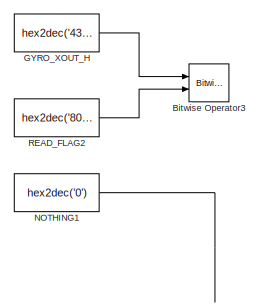
[diagram: Read IMU/Accelometer Gyroscope I2C3/Read Accelometer and Gyroscope Data/Old gyro get data Used during SPI before - part 1/4, top left region]
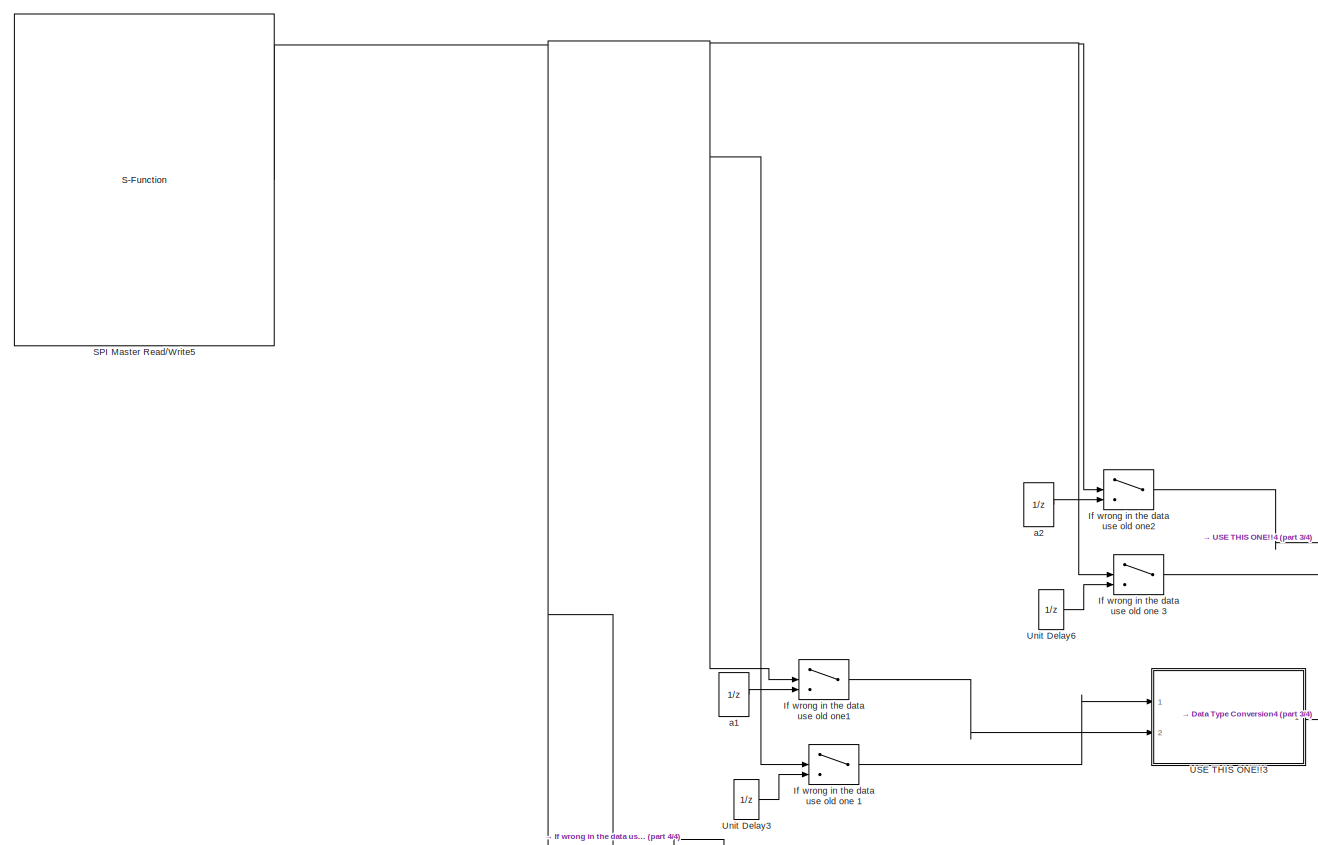
[diagram: Read IMU/Accelometer Gyroscope I2C3/Read Accelometer and Gyroscope Data/Old gyro get data Used during SPI before - part 2/4, center side, full height]
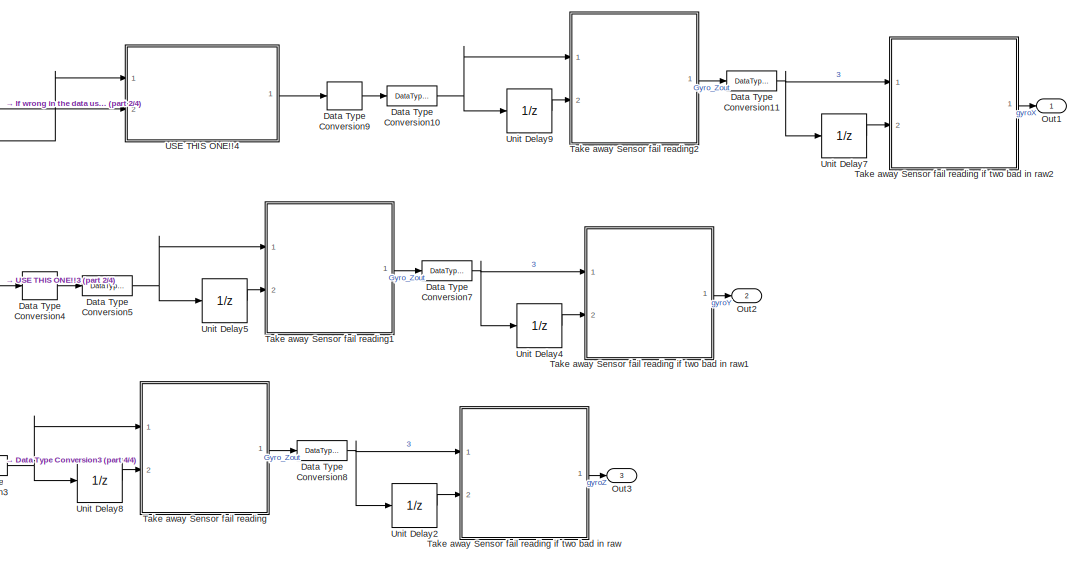
[diagram: Read IMU/Accelometer Gyroscope I2C3/Read Accelometer and Gyroscope Data/Old gyro get data Used during SPI before - part 3/4, bottom right region]
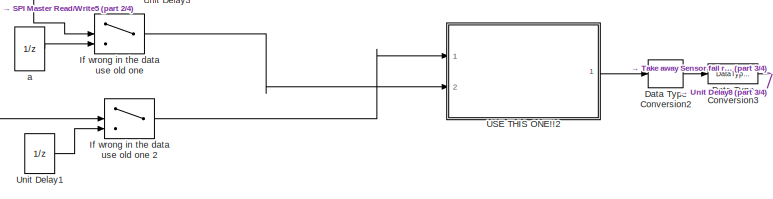
[diagram: Read IMU/Accelometer Gyroscope I2C3/Read Accelometer and Gyroscope Data/Old gyro get data Used during SPI before - part 4/4, bottom center region]
BLOCK [SubSystem] Read IMU/Accelometer Gyroscope I2C3/Read Accelometer and Gyroscope Data/Old gyro get data Used during SPI before
  Commented = on
  Ports = [0, 3]
  RequestExecContextInheritance = off
  Variant = off
BLOCK [UnitDelay] Read IMU/Accelometer Gyroscope I2C3/Read Accelometer and Gyroscope Data/Old gyro get data Used during SPI before/ a
  Commented = on
  InputProcessing = Elements as channels (sample based)
  SampleTime = -1
BLOCK [UnitDelay] Read IMU/Accelometer Gyroscope I2C3/Read Accelometer and Gyroscope Data/Old gyro get data Used during SPI before/ a1
  Commented = on
  InputProcessing = Elements as channels (sample based)
  SampleTime = -1
BLOCK [UnitDelay] Read IMU/Accelometer Gyroscope I2C3/Read Accelometer and Gyroscope Data/Old gyro get data Used during SPI before/ a2
  Commented = on
  InputProcessing = Elements as channels (sample based)
  SampleTime = -1
BLOCK [Reference] Read IMU/Accelometer Gyroscope I2C3/Read Accelometer and Gyroscope Data/Old gyro get data Used during SPI before/Bitwise Operator3  REF=simulink/Logic and Bit
Operations/Bitwise
Operator
  Commented = on
  Ports = [2, 1]
  SourceBlock = simulink/Logic and Bit\nOperations/Bitwise\nOperator
  SourceProductBaseCode = SL
  SourceProductName = Simulink
  SourceType = Bitwise Operator
BLOCK [DataTypeConversion] Read IMU/Accelometer Gyroscope I2C3/Read Accelometer and Gyroscope Data/Old gyro get data Used during SPI before/Data Type Conversion10
  Commented = on
  RndMeth = Floor
  SaturateOnIntegerOverflow = off
BLOCK [DataTypeConversion] Read IMU/Accelometer Gyroscope I2C3/Read Accelometer and Gyroscope Data/Old gyro get data Used during SPI before/Data Type Conversion11
  Commented = on
  RndMeth = Floor
  SaturateOnIntegerOverflow = off
BLOCK [DataTypeConversion] Read IMU/Accelometer Gyroscope I2C3/Read Accelometer and Gyroscope Data/Old gyro get data Used during SPI before/Data Type Conversion2
  Commented = on
  OutDataTypeStr = int16
  RndMeth = Floor
  SaturateOnIntegerOverflow = off
BLOCK [DataTypeConversion] Read IMU/Accelometer Gyroscope I2C3/Read Accelometer and Gyroscope Data/Old gyro get data Used during SPI before/Data Type Conversion3
  Commented = on
  RndMeth = Floor
  SaturateOnIntegerOverflow = off
BLOCK [DataTypeConversion] Read IMU/Accelometer Gyroscope I2C3/Read Accelometer and Gyroscope Data/Old gyro get data Used during SPI before/Data Type Conversion4
  Commented = on
  OutDataTypeStr = int16
  RndMeth = Floor
  SaturateOnIntegerOverflow = off
BLOCK [DataTypeConversion] Read IMU/Accelometer Gyroscope I2C3/Read Accelometer and Gyroscope Data/Old gyro get data Used during SPI before/Data Type Conversion5
  Commented = on
  RndMeth = Floor
  SaturateOnIntegerOverflow = off
BLOCK [DataTypeConversion] Read IMU/Accelometer Gyroscope I2C3/Read Accelometer and Gyroscope Data/Old gyro get data Used during SPI before/Data Type Conversion7
  Commented = on
  RndMeth = Floor
  SaturateOnIntegerOverflow = off
BLOCK [DataTypeConversion] Read IMU/Accelometer Gyroscope I2C3/Read Accelometer and Gyroscope Data/Old gyro get data Used during SPI before/Data Type Conversion8
  Commented = on
  RndMeth = Floor
  SaturateOnIntegerOverflow = off
BLOCK [DataTypeConversion] Read IMU/Accelometer Gyroscope I2C3/Read Accelometer and Gyroscope Data/Old gyro get data Used during SPI before/Data Type Conversion9
  Commented = on
  OutDataTypeStr = int16
  RndMeth = Floor
  SaturateOnIntegerOverflow = off
BLOCK [Constant] Read IMU/Accelometer Gyroscope I2C3/Read Accelometer and Gyroscope Data/Old gyro get data Used during SPI before/GYRO_XOUT_H
  Commented = on
  OutDataTypeStr = uint8
  Value = hex2dec('43')
BLOCK [Switch] Read IMU/Accelometer Gyroscope I2C3/Read Accelometer and Gyroscope Data/Old gyro get data Used during SPI before/If wrong in the data use old one
  Commented = on
  Criteria = u2 ~= 0
  InputSameDT = off
  SaturateOnIntegerOverflow = off
BLOCK [Switch] Read IMU/Accelometer Gyroscope I2C3/Read Accelometer and Gyroscope Data/Old gyro get data Used during SPI before/If wrong in the data use old one 1
  Commented = on
  Criteria = u2 ~= 0
  InputSameDT = off
  SaturateOnIntegerOverflow = off
BLOCK [Switch] Read IMU/Accelometer Gyroscope I2C3/Read Accelometer and Gyroscope Data/Old gyro get data Used during SPI before/If wrong in the data use old one 2
  Commented = on
  Criteria = u2 ~= 0
  InputSameDT = off
  SaturateOnIntegerOverflow = off
BLOCK [Switch] Read IMU/Accelometer Gyroscope I2C3/Read Accelometer and Gyroscope Data/Old gyro get data Used during SPI before/If wrong in the data use old one 3
  Commented = on
  Criteria = u2 ~= 0
  InputSameDT = off
  SaturateOnIntegerOverflow = off
BLOCK [Switch] Read IMU/Accelometer Gyroscope I2C3/Read Accelometer and Gyroscope Data/Old gyro get data Used during SPI before/If wrong in the data use old one1
  Commented = on
  Criteria = u2 ~= 0
  InputSameDT = off
  SaturateOnIntegerOverflow = off
BLOCK [Switch] Read IMU/Accelometer Gyroscope I2C3/Read Accelometer and Gyroscope Data/Old gyro get data Used during SPI before/If wrong in the data use old one2
  Commented = on
  Criteria = u2 ~= 0
  InputSameDT = off
  SaturateOnIntegerOverflow = off
BLOCK [Constant] Read IMU/Accelometer Gyroscope I2C3/Read Accelometer and Gyroscope Data/Old gyro get data Used during SPI before/NOTHING1
  Commented = on
  OutDataTypeStr = uint8
  Value = hex2dec('0')
BLOCK [Outport] Read IMU/Accelometer Gyroscope I2C3/Read Accelometer and Gyroscope Data/Old gyro get data Used during SPI before/Out1
  IconDisplay = Port number
BLOCK [Outport] Read IMU/Accelometer Gyroscope I2C3/Read Accelometer and Gyroscope Data/Old gyro get data Used during SPI before/Out2
  IconDisplay = Port number
  Port = 2
BLOCK [Outport] Read IMU/Accelometer Gyroscope I2C3/Read Accelometer and Gyroscope Data/Old gyro get data Used during SPI before/Out3
  IconDisplay = Port number
  Port = 3
BLOCK [Constant] Read IMU/Accelometer Gyroscope I2C3/Read Accelometer and Gyroscope Data/Old gyro get data Used during SPI before/READ_FLAG2
  Commented = on
  OutDataTypeStr = uint8
  Value = hex2dec('80')
BLOCK [S-Function] Read IMU/Accelometer Gyroscope I2C3/Read Accelometer and Gyroscope Data/Old gyro get data Used during SPI before/SPI Master Read//Write5
  Commented = on
  EnableBusSupport = off
  FunctionName = stm32f4_spimaster
  Parameters = mode,configuration,module,datacount,inputtypearray,outputtypearray,confstr,sampletime,sampletimestr,blockid
  Ports = [0, 1]
  SFcnIsStateOwnerBlock = off
  SFunctionDeploymentMode = off
BLOCK [SubSystem] Read IMU/Accelometer Gyroscope I2C3/Read Accelometer and Gyroscope Data/Old gyro get data Used during SPI before/Take away Sensor fail reading
  Commented = on
  ErrorFcn = Stateflow.Translate.translate
  PermitHierarchicalResolution = ExplicitOnly
  Ports = [2, 1]
  RequestExecContextInheritance = off
  SFBlockType = MATLAB Function
  TreatAsAtomicUnit = on
  Variant = off
BLOCK [SubSystem] Read IMU/Accelometer Gyroscope I2C3/Read Accelometer and Gyroscope Data/Old gyro get data Used during SPI before/Take away Sensor fail reading if two bad in raw
  Commented = on
  ErrorFcn = Stateflow.Translate.translate
  PermitHierarchicalResolution = ExplicitOnly
  Ports = [2, 1]
  RequestExecContextInheritance = off
  SFBlockType = MATLAB Function
  TreatAsAtomicUnit = on
  Variant = off
BLOCK [Demux] Read IMU/Accelometer Gyroscope I2C3/Read Accelometer and Gyroscope Data/Old gyro get data Used during SPI before/Take away Sensor fail reading if two bad in raw/ Demux 
  Outputs = 1
  Ports = [1, 1]
BLOCK [S-Function] Read IMU/Accelometer Gyroscope I2C3/Read Accelometer and Gyroscope Data/Old gyro get data Used during SPI before/Take away Sensor fail reading if two bad in raw/ SFunction 
  EnableBusSupport = off
  FunctionName = sf_sfun
  PortCounts = [2 2]
  Ports = [2, 2]
  SFcnIsStateOwnerBlock = off
  SFunctionDeploymentMode = off
  Tag = Stateflow S-Function CubeX_LQR_3D 13
BLOCK [Terminator] Read IMU/Accelometer Gyroscope I2C3/Read Accelometer and Gyroscope Data/Old gyro get data Used during SPI before/Take away Sensor fail reading if two bad in raw/ Terminator 
BLOCK [Inport] Read IMU/Accelometer Gyroscope I2C3/Read Accelometer and Gyroscope Data/Old gyro get data Used during SPI before/Take away Sensor fail reading if two bad in raw/new
  IconDisplay = Port number
BLOCK [Inport] Read IMU/Accelometer Gyroscope I2C3/Read Accelometer and Gyroscope Data/Old gyro get data Used during SPI before/Take away Sensor fail reading if two bad in raw/old
  IconDisplay = Port number
  Port = 2
BLOCK [Outport] Read IMU/Accelometer Gyroscope I2C3/Read Accelometer and Gyroscope Data/Old gyro get data Used during SPI before/Take away Sensor fail reading if two bad in raw/y
  IconDisplay = Port number
BLOCK [SubSystem] Read IMU/Accelometer Gyroscope I2C3/Read Accelometer and Gyroscope Data/Old gyro get data Used during SPI before/Take away Sensor fail reading if two bad in raw1
  Commented = on
  ErrorFcn = Stateflow.Translate.translate
  PermitHierarchicalResolution = ExplicitOnly
  Ports = [2, 1]
  RequestExecContextInheritance = off
  SFBlockType = MATLAB Function
  TreatAsAtomicUnit = on
  Variant = off
BLOCK [Demux] Read IMU/Accelometer Gyroscope I2C3/Read Accelometer and Gyroscope Data/Old gyro get data Used during SPI before/Take away Sensor fail reading if two bad in raw1/ Demux 
  Outputs = 1
  Ports = [1, 1]
BLOCK [S-Function] Read IMU/Accelometer Gyroscope I2C3/Read Accelometer and Gyroscope Data/Old gyro get data Used during SPI before/Take away Sensor fail reading if two bad in raw1/ SFunction 
  EnableBusSupport = off
  FunctionName = sf_sfun
  PortCounts = [2 2]
  Ports = [2, 2]
  SFcnIsStateOwnerBlock = off
  SFunctionDeploymentMode = off
  Tag = Stateflow S-Function CubeX_LQR_3D 14
BLOCK [Terminator] Read IMU/Accelometer Gyroscope I2C3/Read Accelometer and Gyroscope Data/Old gyro get data Used during SPI before/Take away Sensor fail reading if two bad in raw1/ Terminator 
BLOCK [Inport] Read IMU/Accelometer Gyroscope I2C3/Read Accelometer and Gyroscope Data/Old gyro get data Used during SPI before/Take away Sensor fail reading if two bad in raw1/new
  IconDisplay = Port number
BLOCK [Inport] Read IMU/Accelometer Gyroscope I2C3/Read Accelometer and Gyroscope Data/Old gyro get data Used during SPI before/Take away Sensor fail reading if two bad in raw1/old
  IconDisplay = Port number
  Port = 2
BLOCK [Outport] Read IMU/Accelometer Gyroscope I2C3/Read Accelometer and Gyroscope Data/Old gyro get data Used during SPI before/Take away Sensor fail reading if two bad in raw1/y
  IconDisplay = Port number
BLOCK [SubSystem] Read IMU/Accelometer Gyroscope I2C3/Read Accelometer and Gyroscope Data/Old gyro get data Used during SPI before/Take away Sensor fail reading if two bad in raw2
  Commented = on
  ErrorFcn = Stateflow.Translate.translate
  PermitHierarchicalResolution = ExplicitOnly
  Ports = [2, 1]
  RequestExecContextInheritance = off
  SFBlockType = MATLAB Function
  TreatAsAtomicUnit = on
  Variant = off
BLOCK [Demux] Read IMU/Accelometer Gyroscope I2C3/Read Accelometer and Gyroscope Data/Old gyro get data Used during SPI before/Take away Sensor fail reading if two bad in raw2/ Demux 
  Outputs = 1
  Ports = [1, 1]
BLOCK [S-Function] Read IMU/Accelometer Gyroscope I2C3/Read Accelometer and Gyroscope Data/Old gyro get data Used during SPI before/Take away Sensor fail reading if two bad in raw2/ SFunction 
  EnableBusSupport = off
  FunctionName = sf_sfun
  PortCounts = [2 2]
  Ports = [2, 2]
  SFcnIsStateOwnerBlock = off
  SFunctionDeploymentMode = off
  Tag = Stateflow S-Function CubeX_LQR_3D 15
BLOCK [Terminator] Read IMU/Accelometer Gyroscope I2C3/Read Accelometer and Gyroscope Data/Old gyro get data Used during SPI before/Take away Sensor fail reading if two bad in raw2/ Terminator 
BLOCK [Inport] Read IMU/Accelometer Gyroscope I2C3/Read Accelometer and Gyroscope Data/Old gyro get data Used during SPI before/Take away Sensor fail reading if two bad in raw2/new
  IconDisplay = Port number
BLOCK [Inport] Read IMU/Accelometer Gyroscope I2C3/Read Accelometer and Gyroscope Data/Old gyro get data Used during SPI before/Take away Sensor fail reading if two bad in raw2/old
  IconDisplay = Port number
  Port = 2
BLOCK [Outport] Read IMU/Accelometer Gyroscope I2C3/Read Accelometer and Gyroscope Data/Old gyro get data Used during SPI before/Take away Sensor fail reading if two bad in raw2/y
  IconDisplay = Port number
BLOCK [Demux] Read IMU/Accelometer Gyroscope I2C3/Read Accelometer and Gyroscope Data/Old gyro get data Used during SPI before/Take away Sensor fail reading/ Demux 
  Outputs = 1
  Ports = [1, 1]
BLOCK [S-Function] Read IMU/Accelometer Gyroscope I2C3/Read Accelometer and Gyroscope Data/Old gyro get data Used during SPI before/Take away Sensor fail reading/ SFunction 
  EnableBusSupport = off
  FunctionName = sf_sfun
  PortCounts = [2 2]
  Ports = [2, 2]
  SFcnIsStateOwnerBlock = off
  SFunctionDeploymentMode = off
  Tag = Stateflow S-Function CubeX_LQR_3D 12
BLOCK [Terminator] Read IMU/Accelometer Gyroscope I2C3/Read Accelometer and Gyroscope Data/Old gyro get data Used during SPI before/Take away Sensor fail reading/ Terminator 
BLOCK [Inport] Read IMU/Accelometer Gyroscope I2C3/Read Accelometer and Gyroscope Data/Old gyro get data Used during SPI before/Take away Sensor fail reading/new
  IconDisplay = Port number
BLOCK [Inport] Read IMU/Accelometer Gyroscope I2C3/Read Accelometer and Gyroscope Data/Old gyro get data Used during SPI before/Take away Sensor fail reading/old
  IconDisplay = Port number
  Port = 2
BLOCK [Outport] Read IMU/Accelometer Gyroscope I2C3/Read Accelometer and Gyroscope Data/Old gyro get data Used during SPI before/Take away Sensor fail reading/y
  IconDisplay = Port number
BLOCK [SubSystem] Read IMU/Accelometer Gyroscope I2C3/Read Accelometer and Gyroscope Data/Old gyro get data Used during SPI before/Take away Sensor fail reading1
  Commented = on
  ErrorFcn = Stateflow.Translate.translate
  PermitHierarchicalResolution = ExplicitOnly
  Ports = [2, 1]
  RequestExecContextInheritance = off
  SFBlockType = MATLAB Function
  TreatAsAtomicUnit = on
  Variant = off
BLOCK [Demux] Read IMU/Accelometer Gyroscope I2C3/Read Accelometer and Gyroscope Data/Old gyro get data Used during SPI before/Take away Sensor fail reading1/ Demux 
  Outputs = 1
  Ports = [1, 1]
BLOCK [S-Function] Read IMU/Accelometer Gyroscope I2C3/Read Accelometer and Gyroscope Data/Old gyro get data Used during SPI before/Take away Sensor fail reading1/ SFunction 
  EnableBusSupport = off
  FunctionName = sf_sfun
  PortCounts = [2 2]
  Ports = [2, 2]
  SFcnIsStateOwnerBlock = off
  SFunctionDeploymentMode = off
  Tag = Stateflow S-Function CubeX_LQR_3D 18
BLOCK [Terminator] Read IMU/Accelometer Gyroscope I2C3/Read Accelometer and Gyroscope Data/Old gyro get data Used during SPI before/Take away Sensor fail reading1/ Terminator 
BLOCK [Inport] Read IMU/Accelometer Gyroscope I2C3/Read Accelometer and Gyroscope Data/Old gyro get data Used during SPI before/Take away Sensor fail reading1/new
  IconDisplay = Port number
BLOCK [Inport] Read IMU/Accelometer Gyroscope I2C3/Read Accelometer and Gyroscope Data/Old gyro get data Used during SPI before/Take away Sensor fail reading1/old
  IconDisplay = Port number
  Port = 2
BLOCK [Outport] Read IMU/Accelometer Gyroscope I2C3/Read Accelometer and Gyroscope Data/Old gyro get data Used during SPI before/Take away Sensor fail reading1/y
  IconDisplay = Port number
BLOCK [SubSystem] Read IMU/Accelometer Gyroscope I2C3/Read Accelometer and Gyroscope Data/Old gyro get data Used during SPI before/Take away Sensor fail reading2
  Commented = on
  ErrorFcn = Stateflow.Translate.translate
  PermitHierarchicalResolution = ExplicitOnly
  Ports = [2, 1]
  RequestExecContextInheritance = off
  SFBlockType = MATLAB Function
  TreatAsAtomicUnit = on
  Variant = off
BLOCK [Demux] Read IMU/Accelometer Gyroscope I2C3/Read Accelometer and Gyroscope Data/Old gyro get data Used during SPI before/Take away Sensor fail reading2/ Demux 
  Outputs = 1
  Ports = [1, 1]
BLOCK [S-Function] Read IMU/Accelometer Gyroscope I2C3/Read Accelometer and Gyroscope Data/Old gyro get data Used during SPI before/Take away Sensor fail reading2/ SFunction 
  EnableBusSupport = off
  FunctionName = sf_sfun
  PortCounts = [2 2]
  Ports = [2, 2]
  SFcnIsStateOwnerBlock = off
  SFunctionDeploymentMode = off
  Tag = Stateflow S-Function CubeX_LQR_3D 19
BLOCK [Terminator] Read IMU/Accelometer Gyroscope I2C3/Read Accelometer and Gyroscope Data/Old gyro get data Used during SPI before/Take away Sensor fail reading2/ Terminator 
BLOCK [Inport] Read IMU/Accelometer Gyroscope I2C3/Read Accelometer and Gyroscope Data/Old gyro get data Used during SPI before/Take away Sensor fail reading2/new
  IconDisplay = Port number
BLOCK [Inport] Read IMU/Accelometer Gyroscope I2C3/Read Accelometer and Gyroscope Data/Old gyro get data Used during SPI before/Take away Sensor fail reading2/old
  IconDisplay = Port number
  Port = 2
BLOCK [Outport] Read IMU/Accelometer Gyroscope I2C3/Read Accelometer and Gyroscope Data/Old gyro get data Used during SPI before/Take away Sensor fail reading2/y
  IconDisplay = Port number
BLOCK [SubSystem] Read IMU/Accelometer Gyroscope I2C3/Read Accelometer and Gyroscope Data/Old gyro get data Used during SPI before/USE THIS ONE!!2
  Commented = on
  Ports = [2, 1]
  RequestExecContextInheritance = off
  Variant = off
BLOCK [Reference] Read IMU/Accelometer Gyroscope I2C3/Read Accelometer and Gyroscope Data/Old gyro get data Used during SPI before/USE THIS ONE!!2/Bitwise Operator  REF=simulink/Logic and Bit
Operations/Bitwise
Operator
  Ports = [2, 1]
  SourceBlock = simulink/Logic and Bit\nOperations/Bitwise\nOperator
  SourceProductBaseCode = SL
  SourceProductName = Simulink
  SourceType = Bitwise Operator
BLOCK [DataTypeConversion] Read IMU/Accelometer Gyroscope I2C3/Read Accelometer and Gyroscope Data/Old gyro get data Used during SPI before/USE THIS ONE!!2/Data Type Conversion
  OutDataTypeStr = uint16
  RndMeth = Floor
  SaturateOnIntegerOverflow = off
BLOCK [DataTypeConversion] Read IMU/Accelometer Gyroscope I2C3/Read Accelometer and Gyroscope Data/Old gyro get data Used during SPI before/USE THIS ONE!!2/Data Type Conversion1
  OutDataTypeStr = uint16
  RndMeth = Floor
  SaturateOnIntegerOverflow = off
BLOCK [Outport] Read IMU/Accelometer Gyroscope I2C3/Read Accelometer and Gyroscope Data/Old gyro get data Used during SPI before/USE THIS ONE!!2/Gyro_Zout
  IconDisplay = Port number
BLOCK [Inport] Read IMU/Accelometer Gyroscope I2C3/Read Accelometer and Gyroscope Data/Old gyro get data Used during SPI before/USE THIS ONE!!2/Gyro_Zout_High 
  IconDisplay = Port number
BLOCK [Inport] Read IMU/Accelometer Gyroscope I2C3/Read Accelometer and Gyroscope Data/Old gyro get data Used during SPI before/USE THIS ONE!!2/Gyro_Zout_Low
  IconDisplay = Port number
  Port = 2
BLOCK [ArithShift] Read IMU/Accelometer Gyroscope I2C3/Read Accelometer and Gyroscope Data/Old gyro get data Used during SPI before/USE THIS ONE!!2/Shift Arithmetic
  BitShiftNumber = -8
  InputPortMap = u0
  Ports = [1, 1]
BLOCK [SubSystem] Read IMU/Accelometer Gyroscope I2C3/Read Accelometer and Gyroscope Data/Old gyro get data Used during SPI before/USE THIS ONE!!3
  Commented = on
  Ports = [2, 1]
  RequestExecContextInheritance = off
  Variant = off
BLOCK [Reference] Read IMU/Accelometer Gyroscope I2C3/Read Accelometer and Gyroscope Data/Old gyro get data Used during SPI before/USE THIS ONE!!3/Bitwise Operator  REF=simulink/Logic and Bit
Operations/Bitwise
Operator
  Ports = [2, 1]
  SourceBlock = simulink/Logic and Bit\nOperations/Bitwise\nOperator
  SourceProductBaseCode = SL
  SourceProductName = Simulink
  SourceType = Bitwise Operator
BLOCK [DataTypeConversion] Read IMU/Accelometer Gyroscope I2C3/Read Accelometer and Gyroscope Data/Old gyro get data Used during SPI before/USE THIS ONE!!3/Data Type Conversion
  OutDataTypeStr = uint16
  RndMeth = Floor
  SaturateOnIntegerOverflow = off
BLOCK [DataTypeConversion] Read IMU/Accelometer Gyroscope I2C3/Read Accelometer and Gyroscope Data/Old gyro get data Used during SPI before/USE THIS ONE!!3/Data Type Conversion1
  OutDataTypeStr = uint16
  RndMeth = Floor
  SaturateOnIntegerOverflow = off
BLOCK [Outport] Read IMU/Accelometer Gyroscope I2C3/Read Accelometer and Gyroscope Data/Old gyro get data Used during SPI before/USE THIS ONE!!3/Gyro_Zout
  IconDisplay = Port number
BLOCK [Inport] Read IMU/Accelometer Gyroscope I2C3/Read Accelometer and Gyroscope Data/Old gyro get data Used during SPI before/USE THIS ONE!!3/Gyro_Zout_High 
  IconDisplay = Port number
BLOCK [Inport] Read IMU/Accelometer Gyroscope I2C3/Read Accelometer and Gyroscope Data/Old gyro get data Used during SPI before/USE THIS ONE!!3/Gyro_Zout_Low
  IconDisplay = Port number
  Port = 2
BLOCK [ArithShift] Read IMU/Accelometer Gyroscope I2C3/Read Accelometer and Gyroscope Data/Old gyro get data Used during SPI before/USE THIS ONE!!3/Shift Arithmetic
  BitShiftNumber = -8
  InputPortMap = u0
  Ports = [1, 1]
BLOCK [SubSystem] Read IMU/Accelometer Gyroscope I2C3/Read Accelometer and Gyroscope Data/Old gyro get data Used during SPI before/USE THIS ONE!!4
  Commented = on
  Ports = [2, 1]
  RequestExecContextInheritance = off
  Variant = off
BLOCK [Reference] Read IMU/Accelometer Gyroscope I2C3/Read Accelometer and Gyroscope Data/Old gyro get data Used during SPI before/USE THIS ONE!!4/Bitwise Operator  REF=simulink/Logic and Bit
Operations/Bitwise
Operator
  Ports = [2, 1]
  SourceBlock = simulink/Logic and Bit\nOperations/Bitwise\nOperator
  SourceProductBaseCode = SL
  SourceProductName = Simulink
  SourceType = Bitwise Operator
BLOCK [DataTypeConversion] Read IMU/Accelometer Gyroscope I2C3/Read Accelometer and Gyroscope Data/Old gyro get data Used during SPI before/USE THIS ONE!!4/Data Type Conversion
  OutDataTypeStr = uint16
  RndMeth = Floor
  SaturateOnIntegerOverflow = off
BLOCK [DataTypeConversion] Read IMU/Accelometer Gyroscope I2C3/Read Accelometer and Gyroscope Data/Old gyro get data Used during SPI before/USE THIS ONE!!4/Data Type Conversion1
  OutDataTypeStr = uint16
  RndMeth = Floor
  SaturateOnIntegerOverflow = off
BLOCK [Outport] Read IMU/Accelometer Gyroscope I2C3/Read Accelometer and Gyroscope Data/Old gyro get data Used during SPI before/USE THIS ONE!!4/Gyro_Zout
  IconDisplay = Port number
BLOCK [Inport] Read IMU/Accelometer Gyroscope I2C3/Read Accelometer and Gyroscope Data/Old gyro get data Used during SPI before/USE THIS ONE!!4/Gyro_Zout_High 
  IconDisplay = Port number
BLOCK [Inport] Read IMU/Accelometer Gyroscope I2C3/Read Accelometer and Gyroscope Data/Old gyro get data Used during SPI before/USE THIS ONE!!4/Gyro_Zout_Low
  IconDisplay = Port number
  Port = 2
BLOCK [ArithShift] Read IMU/Accelometer Gyroscope I2C3/Read Accelometer and Gyroscope Data/Old gyro get data Used during SPI before/USE THIS ONE!!4/Shift Arithmetic
  BitShiftNumber = -8
  InputPortMap = u0
  Ports = [1, 1]
BLOCK [UnitDelay] Read IMU/Accelometer Gyroscope I2C3/Read Accelometer and Gyroscope Data/Old gyro get data Used during SPI before/Unit Delay1
  Commented = on
  InputProcessing = Elements as channels (sample based)
  SampleTime = -1
BLOCK [UnitDelay] Read IMU/Accelometer Gyroscope I2C3/Read Accelometer and Gyroscope Data/Old gyro get data Used during SPI before/Unit Delay2
  Commented = on
  InitialCondition = -40.45
  InputProcessing = Elements as channels (sample based)
  SampleTime = -1
BLOCK [UnitDelay] Read IMU/Accelometer Gyroscope I2C3/Read Accelometer and Gyroscope Data/Old gyro get data Used during SPI before/Unit Delay3
  Commented = on
  InputProcessing = Elements as channels (sample based)
  SampleTime = -1
BLOCK [UnitDelay] Read IMU/Accelometer Gyroscope I2C3/Read Accelometer and Gyroscope Data/Old gyro get data Used during SPI before/Unit Delay4
  Commented = on
  InitialCondition = -40.45
  InputProcessing = Elements as channels (sample based)
  SampleTime = -1
BLOCK [UnitDelay] Read IMU/Accelometer Gyroscope I2C3/Read Accelometer and Gyroscope Data/Old gyro get data Used during SPI before/Unit Delay5
  Commented = on
  InitialCondition = -40.45
  InputProcessing = Elements as channels (sample based)
  SampleTime = -1
BLOCK [UnitDelay] Read IMU/Accelometer Gyroscope I2C3/Read Accelometer and Gyroscope Data/Old gyro get data Used during SPI before/Unit Delay6
  Commented = on
  InputProcessing = Elements as channels (sample based)
  SampleTime = -1
BLOCK [UnitDelay] Read IMU/Accelometer Gyroscope I2C3/Read Accelometer and Gyroscope Data/Old gyro get data Used during SPI before/Unit Delay7
  Commented = on
  InitialCondition = -40.45
  InputProcessing = Elements as channels (sample based)
  SampleTime = -1
BLOCK [UnitDelay] Read IMU/Accelometer Gyroscope I2C3/Read Accelometer and Gyroscope Data/Old gyro get data Used during SPI before/Unit Delay8
  Commented = on
  InitialCondition = -40.45
  InputProcessing = Elements as channels (sample based)
  SampleTime = -1
BLOCK [UnitDelay] Read IMU/Accelometer Gyroscope I2C3/Read Accelometer and Gyroscope Data/Old gyro get data Used during SPI before/Unit Delay9
  Commented = on
  InitialCondition = -40.45
  InputProcessing = Elements as channels (sample based)
  SampleTime = -1
BLOCK [Inport] Read IMU/Accelometer Gyroscope I2C3/Read Accelometer and Gyroscope Data/SlvAddr
  IconDisplay = Port number
BLOCK [SubSystem] Read IMU/Accelometer Gyroscope I2C3/Read Accelometer and Gyroscope Data/Turn the MSB and LSB into a signed 16-bit integer AccX
  Ports = [2, 1]
  RequestExecContextInheritance = off
  Variant = off
BLOCK [Reference] Read IMU/Accelometer Gyroscope I2C3/Read Accelometer and Gyroscope Data/Turn the MSB and LSB into a signed 16-bit integer AccX/Bitwise Operator2  REF=simulink/Logic and Bit
Operations/Bitwise
Operator
  Ports = [2, 1]
  SourceBlock = simulink/Logic and Bit\nOperations/Bitwise\nOperator
  SourceProductBaseCode = SL
  SourceProductName = Simulink
  SourceType = Bitwise Operator
BLOCK [DataTypeConversion] Read IMU/Accelometer Gyroscope I2C3/Read Accelometer and Gyroscope Data/Turn the MSB and LSB into a signed 16-bit integer AccX/Data Type Conversion6
  OutDataTypeStr = uint16
  RndMeth = Floor
  SaturateOnIntegerOverflow = off
BLOCK [DataTypeConversion] Read IMU/Accelometer Gyroscope I2C3/Read Accelometer and Gyroscope Data/Turn the MSB and LSB into a signed 16-bit integer AccX/Data Type Conversion7
  OutDataTypeStr = uint16
  RndMeth = Floor
  SaturateOnIntegerOverflow = off
BLOCK [Inport] Read IMU/Accelometer Gyroscope I2C3/Read Accelometer and Gyroscope Data/Turn the MSB and LSB into a signed 16-bit integer AccX/LSB
  IconDisplay = Port number
  Port = 2
BLOCK [Inport] Read IMU/Accelometer Gyroscope I2C3/Read Accelometer and Gyroscope Data/Turn the MSB and LSB into a signed 16-bit integer AccX/MSB
  IconDisplay = Port number
BLOCK [ArithShift] Read IMU/Accelometer Gyroscope I2C3/Read Accelometer and Gyroscope Data/Turn the MSB and LSB into a signed 16-bit integer AccX/Shift Arithmetic2
  BitShiftNumber = -8
  InputPortMap = u0
  Ports = [1, 1]
BLOCK [Outport] Read IMU/Accelometer Gyroscope I2C3/Read Accelometer and Gyroscope Data/Turn the MSB and LSB into a signed 16-bit integer AccX/out16b
  IconDisplay = Port number
BLOCK [SubSystem] Read IMU/Accelometer Gyroscope I2C3/Read Accelometer and Gyroscope Data/Turn the MSB and LSB into a signed 16-bit integer AccY
  Ports = [2, 1]
  RequestExecContextInheritance = off
  Variant = off
BLOCK [Reference] Read IMU/Accelometer Gyroscope I2C3/Read Accelometer and Gyroscope Data/Turn the MSB and LSB into a signed 16-bit integer AccY/Bitwise Operator2  REF=simulink/Logic and Bit
Operations/Bitwise
Operator
  Ports = [2, 1]
  SourceBlock = simulink/Logic and Bit\nOperations/Bitwise\nOperator
  SourceProductBaseCode = SL
  SourceProductName = Simulink
  SourceType = Bitwise Operator
BLOCK [DataTypeConversion] Read IMU/Accelometer Gyroscope I2C3/Read Accelometer and Gyroscope Data/Turn the MSB and LSB into a signed 16-bit integer AccY/Data Type Conversion6
  OutDataTypeStr = uint16
  RndMeth = Floor
  SaturateOnIntegerOverflow = off
BLOCK [DataTypeConversion] Read IMU/Accelometer Gyroscope I2C3/Read Accelometer and Gyroscope Data/Turn the MSB and LSB into a signed 16-bit integer AccY/Data Type Conversion7
  OutDataTypeStr = uint16
  RndMeth = Floor
  SaturateOnIntegerOverflow = off
BLOCK [Inport] Read IMU/Accelometer Gyroscope I2C3/Read Accelometer and Gyroscope Data/Turn the MSB and LSB into a signed 16-bit integer AccY/LSB
  IconDisplay = Port number
  Port = 2
BLOCK [Inport] Read IMU/Accelometer Gyroscope I2C3/Read Accelometer and Gyroscope Data/Turn the MSB and LSB into a signed 16-bit integer AccY/MSB
  IconDisplay = Port number
BLOCK [ArithShift] Read IMU/Accelometer Gyroscope I2C3/Read Accelometer and Gyroscope Data/Turn the MSB and LSB into a signed 16-bit integer AccY/Shift Arithmetic2
  BitShiftNumber = -8
  InputPortMap = u0
  Ports = [1, 1]
BLOCK [Outport] Read IMU/Accelometer Gyroscope I2C3/Read Accelometer and Gyroscope Data/Turn the MSB and LSB into a signed 16-bit integer AccY/out16b
  IconDisplay = Port number
BLOCK [SubSystem] Read IMU/Accelometer Gyroscope I2C3/Read Accelometer and Gyroscope Data/Turn the MSB and LSB into a signed 16-bit integer AccZ
  Ports = [2, 1]
  RequestExecContextInheritance = off
  Variant = off
BLOCK [Reference] Read IMU/Accelometer Gyroscope I2C3/Read Accelometer and Gyroscope Data/Turn the MSB and LSB into a signed 16-bit integer AccZ/Bitwise Operator2  REF=simulink/Logic and Bit
Operations/Bitwise
Operator
  Ports = [2, 1]
  SourceBlock = simulink/Logic and Bit\nOperations/Bitwise\nOperator
  SourceProductBaseCode = SL
  SourceProductName = Simulink
  SourceType = Bitwise Operator
BLOCK [DataTypeConversion] Read IMU/Accelometer Gyroscope I2C3/Read Accelometer and Gyroscope Data/Turn the MSB and LSB into a signed 16-bit integer AccZ/Data Type Conversion6
  OutDataTypeStr = uint16
  RndMeth = Floor
  SaturateOnIntegerOverflow = off
BLOCK [DataTypeConversion] Read IMU/Accelometer Gyroscope I2C3/Read Accelometer and Gyroscope Data/Turn the MSB and LSB into a signed 16-bit integer AccZ/Data Type Conversion7
  OutDataTypeStr = uint16
  RndMeth = Floor
  SaturateOnIntegerOverflow = off
BLOCK [Inport] Read IMU/Accelometer Gyroscope I2C3/Read Accelometer and Gyroscope Data/Turn the MSB and LSB into a signed 16-bit integer AccZ/LSB
  IconDisplay = Port number
  Port = 2
BLOCK [Inport] Read IMU/Accelometer Gyroscope I2C3/Read Accelometer and Gyroscope Data/Turn the MSB and LSB into a signed 16-bit integer AccZ/MSB
  IconDisplay = Port number
BLOCK [ArithShift] Read IMU/Accelometer Gyroscope I2C3/Read Accelometer and Gyroscope Data/Turn the MSB and LSB into a signed 16-bit integer AccZ/Shift Arithmetic2
  BitShiftNumber = -8
  InputPortMap = u0
  Ports = [1, 1]
BLOCK [Outport] Read IMU/Accelometer Gyroscope I2C3/Read Accelometer and Gyroscope Data/Turn the MSB and LSB into a signed 16-bit integer AccZ/out16b
  IconDisplay = Port number
BLOCK [SubSystem] Read IMU/Accelometer Gyroscope I2C3/Read Accelometer and Gyroscope Data/Turn the MSB and LSB into a signed 16-bit integer GyroX
  Ports = [2, 1]
  RequestExecContextInheritance = off
  Variant = off
BLOCK [Reference] Read IMU/Accelometer Gyroscope I2C3/Read Accelometer and Gyroscope Data/Turn the MSB and LSB into a signed 16-bit integer GyroX/Bitwise Operator2  REF=simulink/Logic and Bit
Operations/Bitwise
Operator
  Ports = [2, 1]
  SourceBlock = simulink/Logic and Bit\nOperations/Bitwise\nOperator
  SourceProductBaseCode = SL
  SourceProductName = Simulink
  SourceType = Bitwise Operator
BLOCK [DataTypeConversion] Read IMU/Accelometer Gyroscope I2C3/Read Accelometer and Gyroscope Data/Turn the MSB and LSB into a signed 16-bit integer GyroX/Data Type Conversion6
  OutDataTypeStr = uint16
  RndMeth = Floor
  SaturateOnIntegerOverflow = off
BLOCK [DataTypeConversion] Read IMU/Accelometer Gyroscope I2C3/Read Accelometer and Gyroscope Data/Turn the MSB and LSB into a signed 16-bit integer GyroX/Data Type Conversion7
  OutDataTypeStr = uint16
  RndMeth = Floor
  SaturateOnIntegerOverflow = off
BLOCK [Inport] Read IMU/Accelometer Gyroscope I2C3/Read Accelometer and Gyroscope Data/Turn the MSB and LSB into a signed 16-bit integer GyroX/LSB
  IconDisplay = Port number
  Port = 2
BLOCK [Inport] Read IMU/Accelometer Gyroscope I2C3/Read Accelometer and Gyroscope Data/Turn the MSB and LSB into a signed 16-bit integer GyroX/MSB
  IconDisplay = Port number
BLOCK [ArithShift] Read IMU/Accelometer Gyroscope I2C3/Read Accelometer and Gyroscope Data/Turn the MSB and LSB into a signed 16-bit integer GyroX/Shift Arithmetic2
  BitShiftNumber = -8
  InputPortMap = u0
  Ports = [1, 1]
BLOCK [Outport] Read IMU/Accelometer Gyroscope I2C3/Read Accelometer and Gyroscope Data/Turn the MSB and LSB into a signed 16-bit integer GyroX/out16b
  IconDisplay = Port number
BLOCK [SubSystem] Read IMU/Accelometer Gyroscope I2C3/Read Accelometer and Gyroscope Data/Turn the MSB and LSB into a signed 16-bit integer GyroY
  Ports = [2, 1]
  RequestExecContextInheritance = off
  Variant = off
BLOCK [Reference] Read IMU/Accelometer Gyroscope I2C3/Read Accelometer and Gyroscope Data/Turn the MSB and LSB into a signed 16-bit integer GyroY/Bitwise Operator2  REF=simulink/Logic and Bit
Operations/Bitwise
Operator
  Ports = [2, 1]
  SourceBlock = simulink/Logic and Bit\nOperations/Bitwise\nOperator
  SourceProductBaseCode = SL
  SourceProductName = Simulink
  SourceType = Bitwise Operator
BLOCK [DataTypeConversion] Read IMU/Accelometer Gyroscope I2C3/Read Accelometer and Gyroscope Data/Turn the MSB and LSB into a signed 16-bit integer GyroY/Data Type Conversion6
  OutDataTypeStr = uint16
  RndMeth = Floor
  SaturateOnIntegerOverflow = off
BLOCK [DataTypeConversion] Read IMU/Accelometer Gyroscope I2C3/Read Accelometer and Gyroscope Data/Turn the MSB and LSB into a signed 16-bit integer GyroY/Data Type Conversion7
  OutDataTypeStr = uint16
  RndMeth = Floor
  SaturateOnIntegerOverflow = off
BLOCK [Inport] Read IMU/Accelometer Gyroscope I2C3/Read Accelometer and Gyroscope Data/Turn the MSB and LSB into a signed 16-bit integer GyroY/LSB
  IconDisplay = Port number
  Port = 2
BLOCK [Inport] Read IMU/Accelometer Gyroscope I2C3/Read Accelometer and Gyroscope Data/Turn the MSB and LSB into a signed 16-bit integer GyroY/MSB
  IconDisplay = Port number
BLOCK [ArithShift] Read IMU/Accelometer Gyroscope I2C3/Read Accelometer and Gyroscope Data/Turn the MSB and LSB into a signed 16-bit integer GyroY/Shift Arithmetic2
  BitShiftNumber = -8
  InputPortMap = u0
  Ports = [1, 1]
BLOCK [Outport] Read IMU/Accelometer Gyroscope I2C3/Read Accelometer and Gyroscope Data/Turn the MSB and LSB into a signed 16-bit integer GyroY/out16b
  IconDisplay = Port number
BLOCK [SubSystem] Read IMU/Accelometer Gyroscope I2C3/Read Accelometer and Gyroscope Data/Turn the MSB and LSB into a signed 16-bit integer GyroZ
  Ports = [2, 1]
  RequestExecContextInheritance = off
  Variant = off
BLOCK [Reference] Read IMU/Accelometer Gyroscope I2C3/Read Accelometer and Gyroscope Data/Turn the MSB and LSB into a signed 16-bit integer GyroZ/Bitwise Operator2  REF=simulink/Logic and Bit
Operations/Bitwise
Operator
  Ports = [2, 1]
  SourceBlock = simulink/Logic and Bit\nOperations/Bitwise\nOperator
  SourceProductBaseCode = SL
  SourceProductName = Simulink
  SourceType = Bitwise Operator
BLOCK [DataTypeConversion] Read IMU/Accelometer Gyroscope I2C3/Read Accelometer and Gyroscope Data/Turn the MSB and LSB into a signed 16-bit integer GyroZ/Data Type Conversion6
  OutDataTypeStr = uint16
  RndMeth = Floor
  SaturateOnIntegerOverflow = off
BLOCK [DataTypeConversion] Read IMU/Accelometer Gyroscope I2C3/Read Accelometer and Gyroscope Data/Turn the MSB and LSB into a signed 16-bit integer GyroZ/Data Type Conversion7
  OutDataTypeStr = uint16
  RndMeth = Floor
  SaturateOnIntegerOverflow = off
BLOCK [Inport] Read IMU/Accelometer Gyroscope I2C3/Read Accelometer and Gyroscope Data/Turn the MSB and LSB into a signed 16-bit integer GyroZ/LSB
  IconDisplay = Port number
  Port = 2
BLOCK [Inport] Read IMU/Accelometer Gyroscope I2C3/Read Accelometer and Gyroscope Data/Turn the MSB and LSB into a signed 16-bit integer GyroZ/MSB
  IconDisplay = Port number
BLOCK [ArithShift] Read IMU/Accelometer Gyroscope I2C3/Read Accelometer and Gyroscope Data/Turn the MSB and LSB into a signed 16-bit integer GyroZ/Shift Arithmetic2
  BitShiftNumber = -8
  InputPortMap = u0
  Ports = [1, 1]
BLOCK [Outport] Read IMU/Accelometer Gyroscope I2C3/Read Accelometer and Gyroscope Data/Turn the MSB and LSB into a signed 16-bit integer GyroZ/out16b
  IconDisplay = Port number
BLOCK [Outport] Read IMU/Accelometer Gyroscope I2C3/Read Accelometer and Gyroscope Data/acc
  IconDisplay = Port number
BLOCK [Outport] Read IMU/Accelometer Gyroscope I2C3/Read Accelometer and Gyroscope Data/gyro
  IconDisplay = Port number
  Port = 2
BLOCK [Inport] Read IMU/Accelometer Gyroscope I2C3/SlvAddr MPU9250
  IconDisplay = Port number
BLOCK [Outport] Read IMU/Accelometer Gyroscope I2C3/acc
  IconDisplay = Port number
BLOCK [Outport] Read IMU/Accelometer Gyroscope I2C3/gyro
  IconDisplay = Port number
  Port = 2
BLOCK [SubSystem] Read IMU/Bias Estimation IMU3
  ErrorFcn = Stateflow.Translate.translate
  PermitHierarchicalResolution = ExplicitOnly
  Ports = [1, 2]
  RequestExecContextInheritance = off
  SFBlockType = MATLAB Function
  TreatAsAtomicUnit = on
  Variant = off
BLOCK [Demux] Read IMU/Bias Estimation IMU3/ Demux 
  Outputs = 1
  Ports = [1, 1]
BLOCK [S-Function] Read IMU/Bias Estimation IMU3/ SFunction 
  EnableBusSupport = off
  FunctionName = sf_sfun
  PortCounts = [1 3]
  Ports = [1, 3]
  SFcnIsStateOwnerBlock = off
  SFunctionDeploymentMode = off
  Tag = Stateflow S-Function CubeX_LQR_3D 21
BLOCK [Terminator] Read IMU/Bias Estimation IMU3/ Terminator 
BLOCK [Outport] Read IMU/Bias Estimation IMU3/done
  IconDisplay = Port number
  Port = 2
BLOCK [Inport] Read IMU/Bias Estimation IMU3/gyro
  IconDisplay = Port number
BLOCK [Outport] Read IMU/Bias Estimation IMU3/gyro_out
  IconDisplay = Port number
BLOCK [SubSystem] Read IMU/Calc. inverse euler
  ErrorFcn = Stateflow.Translate.translate
  PermitHierarchicalResolution = ExplicitOnly
  Ports = [1, 1]
  RequestExecContextInheritance = off
  SFBlockType = MATLAB Function
  TreatAsAtomicUnit = on
  Variant = off
BLOCK [Demux] Read IMU/Calc. inverse euler/ Demux 
  Outputs = 1
  Ports = [1, 1]
BLOCK [S-Function] Read IMU/Calc. inverse euler/ SFunction 
  EnableBusSupport = off
  FunctionName = sf_sfun
  PortCounts = [1 2]
  Ports = [1, 2]
  SFcnIsStateOwnerBlock = off
  SFunctionDeploymentMode = off
  Tag = Stateflow S-Function CubeX_LQR_3D 6
BLOCK [Terminator] Read IMU/Calc. inverse euler/ Terminator 
BLOCK [Outport] Read IMU/Calc. inverse euler/EulInverse
  IconDisplay = Port number
BLOCK [Inport] Read IMU/Calc. inverse euler/euler
  IconDisplay = Port number
BLOCK [SubSystem] Read IMU/Converting raw data to SI units
  Ports = [2, 2]
  RequestExecContextInheritance = off
  Variant = off
BLOCK [Gain] Read IMU/Converting raw data to SI units/Raw sensor value to SI units Accelometer
  Gain = 1 / imu.a_scaling * g
  OutDataTypeStr = Inherit: Inherit via internal rule
  ParamDataTypeStr = Inherit: Inherit via internal rule
  SaturateOnIntegerOverflow = off
BLOCK [Gain] Read IMU/Converting raw data to SI units/Raw sensor value to SI units Gyroscope
  Gain = 1 / imu.w_scaling * deg_
  OutDataTypeStr = Inherit: Inherit via internal rule
  ParamDataTypeStr = Inherit: Inherit via internal rule
  SaturateOnIntegerOverflow = off
BLOCK [Outport] Read IMU/Converting raw data to SI units/acc
  IconDisplay = Port number
BLOCK [Inport] Read IMU/Converting raw data to SI units/acc_raw
  IconDisplay = Port number
BLOCK [Outport] Read IMU/Converting raw data to SI units/gyro
  IconDisplay = Port number
  Port = 2
BLOCK [Inport] Read IMU/Converting raw data to SI units/gyro_raw
  IconDisplay = Port number
  Port = 2
BLOCK [Product] Read IMU/Divide
  InputSameDT = off
  Inputs = **
  Multiplication = Matrix(*)
  OutDataTypeStr = Inherit: Inherit via internal rule
  Ports = [2, 1]
  RndMeth = Floor
  SaturateOnIntegerOverflow = off
BLOCK [Gain] Read IMU/Gain
  Gain = 0.9
  OutDataTypeStr = Inherit: Inherit via internal rule
  ParamDataTypeStr = Inherit: Inherit via internal rule
  SaturateOnIntegerOverflow = off
BLOCK [Gain] Read IMU/Gain1
  Gain = 0.5
  OutDataTypeStr = Inherit: Inherit via internal rule
  ParamDataTypeStr = Inherit: Inherit via internal rule
  SaturateOnIntegerOverflow = off
BLOCK [Gain] Read IMU/Gain2
  Gain = 0.1
  OutDataTypeStr = Inherit: Inherit via internal rule
  ParamDataTypeStr = Inherit: Inherit via internal rule
  SaturateOnIntegerOverflow = off
BLOCK [SubSystem] Read IMU/Light LED 4 on board when calibration is done
  Ports = [1]
  RequestExecContextInheritance = off
  Variant = off
BLOCK [Inport] Read IMU/Light LED 4 on board when calibration is done/IO
  IconDisplay = Port number
BLOCK [Reference] Read IMU/Light LED 4 on board when calibration is done/Led  REF=stm32f4_io_lib/Digital Output
  Ports = [1]
  SourceBlock = stm32f4_io_lib/Digital Output
  SourceType = stm32f4_digital_output
BLOCK [SubSystem] Read IMU/Lp Filter
  ErrorFcn = Stateflow.Translate.translate
  PermitHierarchicalResolution = ExplicitOnly
  Ports = [1, 1]
  RequestExecContextInheritance = off
  SFBlockType = MATLAB Function
  TreatAsAtomicUnit = on
  Variant = off
BLOCK [Demux] Read IMU/Lp Filter/ Demux 
  Outputs = 1
  Ports = [1, 1]
BLOCK [S-Function] Read IMU/Lp Filter/ SFunction 
  EnableBusSupport = off
  FunctionName = sf_sfun
  Parameters = Ts
  PortCounts = [1 2]
  Ports = [1, 2]
  SFcnIsStateOwnerBlock = off
  SFunctionDeploymentMode = off
  Tag = Stateflow S-Function CubeX_LQR_3D 10
BLOCK [Terminator] Read IMU/Lp Filter/ Terminator 
BLOCK [Outport] Read IMU/Lp Filter/filter_gyro
  IconDisplay = Port number
BLOCK [Inport] Read IMU/Lp Filter/gyro
  IconDisplay = Port number
BLOCK [SubSystem] Read IMU/Magdwick Filter
  ErrorFcn = Stateflow.Translate.translate
  PermitHierarchicalResolution = ExplicitOnly
  Ports = [2, 1]
  RequestExecContextInheritance = off
  SFBlockType = MATLAB Function
  TreatAsAtomicUnit = on
  Variant = off
BLOCK [Demux] Read IMU/Magdwick Filter/ Demux 
  Outputs = 1
  Ports = [1, 1]
BLOCK [S-Function] Read IMU/Magdwick Filter/ SFunction 
  EnableBusSupport = off
  FunctionName = sf_sfun
  Parameters = Ts
  PortCounts = [2 2]
  Ports = [2, 2]
  SFcnIsStateOwnerBlock = off
  SFunctionDeploymentMode = off
  Tag = Stateflow S-Function CubeX_LQR_3D 4
BLOCK [Terminator] Read IMU/Magdwick Filter/ Terminator 
BLOCK [Inport] Read IMU/Magdwick Filter/acc
  IconDisplay = Port number
BLOCK [Outport] Read IMU/Magdwick Filter/euler
  IconDisplay = Port number
BLOCK [Inport] Read IMU/Magdwick Filter/gyro
  IconDisplay = Port number
  Port = 2
BLOCK [Mux] Read IMU/Mux
  DisplayOption = bar
  Inputs = 2
  Ports = [2, 1]
BLOCK [SubSystem] Read IMU/Rotation of IMU1
  ErrorFcn = Stateflow.Translate.translate
  PermitHierarchicalResolution = ExplicitOnly
  Ports = [2, 2]
  RequestExecContextInheritance = off
  SFBlockType = MATLAB Function
  TreatAsAtomicUnit = on
  Variant = off
BLOCK [Demux] Read IMU/Rotation of IMU1/ Demux 
  Outputs = 1
  Ports = [1, 1]
BLOCK [S-Function] Read IMU/Rotation of IMU1/ SFunction 
  EnableBusSupport = off
  FunctionName = sf_sfun
  Parameters = imu
  PortCounts = [2 3]
  Ports = [2, 3]
  SFcnIsStateOwnerBlock = off
  SFunctionDeploymentMode = off
  Tag = Stateflow S-Function CubeX_LQR_3D 3
BLOCK [Terminator] Read IMU/Rotation of IMU1/ Terminator 
BLOCK [Inport] Read IMU/Rotation of IMU1/acc
  IconDisplay = Port number
BLOCK [Outport] Read IMU/Rotation of IMU1/acc_out
  IconDisplay = Port number
BLOCK [Inport] Read IMU/Rotation of IMU1/gyro
  IconDisplay = Port number
  Port = 2
BLOCK [Outport] Read IMU/Rotation of IMU1/gyro_out
  IconDisplay = Port number
  Port = 2
BLOCK [SubSystem] Read IMU/Rotation of IMU3
  ErrorFcn = Stateflow.Translate.translate
  PermitHierarchicalResolution = ExplicitOnly
  Ports = [2, 2]
  RequestExecContextInheritance = off
  SFBlockType = MATLAB Function
  TreatAsAtomicUnit = on
  Variant = off
BLOCK [Demux] Read IMU/Rotation of IMU3/ Demux 
  Outputs = 1
  Ports = [1, 1]
BLOCK [S-Function] Read IMU/Rotation of IMU3/ SFunction 
  EnableBusSupport = off
  FunctionName = sf_sfun
  Parameters = imu
  PortCounts = [2 3]
  Ports = [2, 3]
  SFcnIsStateOwnerBlock = off
  SFunctionDeploymentMode = off
  Tag = Stateflow S-Function CubeX_LQR_3D 20
BLOCK [Terminator] Read IMU/Rotation of IMU3/ Terminator 
BLOCK [Inport] Read IMU/Rotation of IMU3/acc
  IconDisplay = Port number
BLOCK [Outport] Read IMU/Rotation of IMU3/acc_out
  IconDisplay = Port number
BLOCK [Inport] Read IMU/Rotation of IMU3/gyro
  IconDisplay = Port number
  Port = 2
BLOCK [Outport] Read IMU/Rotation of IMU3/gyro_out
  IconDisplay = Port number
  Port = 2
BLOCK [ArithShift] Read IMU/Shift Arithmetic2
  BitShiftNumber = -1
  InputPortMap = u0
  Ports = [1, 1]
BLOCK [Outport] Read IMU/States
  IconDisplay = Port number
BLOCK [Sum] Read IMU/Sum
  IconShape = round
  InputSameDT = off
  Inputs = |++
  OutDataTypeStr = Inherit: Inherit via internal rule
  Ports = [2, 1]
  SaturateOnIntegerOverflow = off
BLOCK [Sum] Read IMU/Sum1
  IconShape = round
  InputSameDT = off
  Inputs = |++
  OutDataTypeStr = Inherit: Inherit via internal rule
  Ports = [2, 1]
  SaturateOnIntegerOverflow = off
BLOCK [Reference] Target Setup  REF=stm32f4_device_config_lib/Target Setup
  Ports = []
  Priority = 100
  SourceBlock = stm32f4_device_config_lib/Target Setup
  SourceType = stm32f4_target_setup
BLOCK [SubSystem] USB VCP Send
  Ports = []
  RequestExecContextInheritance = off
  Variant = off
BLOCK [From] USB VCP Send/From
  GotoTag = phi
  TagVisibility = global
BLOCK [From] USB VCP Send/From1
  GotoTag = theta
  TagVisibility = global
BLOCK [From] USB VCP Send/From2
  GotoTag = psi
  TagVisibility = global
BLOCK [From] USB VCP Send/From3
  GotoTag = iref_motor1
  TagVisibility = global
BLOCK [From] USB VCP Send/From4
  GotoTag = COGx
  TagVisibility = global
BLOCK [From] USB VCP Send/From5
  GotoTag = COGy
  TagVisibility = global
BLOCK [From] USB VCP Send/From6
  GotoTag = COGz
  TagVisibility = global
BLOCK [From] USB VCP Send/From7
  GotoTag = iref_motor2
  TagVisibility = global
BLOCK [From] USB VCP Send/From8
  GotoTag = iref_motor3
  TagVisibility = global
BLOCK [Reference] USB VCP Send/USB VCP Send STM32F1  REF=BC_USB/USB VCP Send STM32F4
  Ports = [9]
  SourceBlock = BC_USB/USB VCP Send STM32F4
  SourceType = USB_VCP_SEND_STM32F4 High Speed Large Data Packet Size
BLOCK [SubSystem] motor 1 
  Ports = [3]
  RequestExecContextInheritance = off
  Variant = off
BLOCK [Inport] motor 1 /Ampere PWM
  IconDisplay = Port number
  Port = 3
BLOCK [Inport] motor 1 /Direction Motor 
  IconDisplay = Port number
  Port = 2
BLOCK [Reference] motor 1 /Direction Motor 1 (green)  REF=stm32f4_io_lib/Digital Output
  Ports = [1]
  SourceBlock = stm32f4_io_lib/Digital Output
  SourceType = stm32f4_digital_output
BLOCK [Inport] motor 1 /Enable Motor
  IconDisplay = Port number
BLOCK [Reference] motor 1 /Enable Motor 1(yellow)  REF=stm32f4_io_lib/Digital Output
  Ports = [1]
  SourceBlock = stm32f4_io_lib/Digital Output
  SourceType = stm32f4_digital_output
BLOCK [S-Function] motor 1 /PWM Ampere motor 1 (white)
  EnableBusSupport = off
  FunctionName = stm32f4_basicpwm_fixed
  Parameters = timer,pwmperiod,uc3m_pwmperiod,ch1pin,ch2pin,ch3pin,ch4pin,sampletime,sampletimestr,blockid,apb,portstr,pinstr,pinmat,timarr,timprescale,chmat,polaritystr
  Ports = [1]
  SFcnIsStateOwnerBlock = off
  SFunctionDeploymentMode = off
BLOCK [Reference] motor 1 /Velocty wheel 1, analog in (Grey), PC4  REF=stm32f4_adc_lib/Regular ADC
  Commented = on
  Ports = [0, 1]
  SourceBlock = stm32f4_adc_lib/Regular ADC
  SourceType = stm32f4_regular_adc
BLOCK [SubSystem] motor 2
  Ports = [3]
  RequestExecContextInheritance = off
  Variant = off
BLOCK [Inport] motor 2/Ampere PWM
  IconDisplay = Port number
  Port = 3
BLOCK [Inport] motor 2/Direction Motor 
  IconDisplay = Port number
  Port = 2
BLOCK [Reference] motor 2/Direction Motor 2 (green)  REF=stm32f4_io_lib/Digital Output
  Ports = [1]
  SourceBlock = stm32f4_io_lib/Digital Output
  SourceType = stm32f4_digital_output
BLOCK [Inport] motor 2/Enable Motor
  IconDisplay = Port number
BLOCK [Reference] motor 2/Enable Motor 2(yellow)  REF=stm32f4_io_lib/Digital Output
  Ports = [1]
  SourceBlock = stm32f4_io_lib/Digital Output
  SourceType = stm32f4_digital_output
BLOCK [S-Function] motor 2/PWM Ampere motor 2 (white)
  EnableBusSupport = off
  FunctionName = stm32f4_basicpwm_fixed
  Parameters = timer,pwmperiod,uc3m_pwmperiod,ch1pin,ch2pin,ch3pin,ch4pin,sampletime,sampletimestr,blockid,apb,portstr,pinstr,pinmat,timarr,timprescale,chmat,polaritystr
  Ports = [1]
  SFcnIsStateOwnerBlock = off
  SFunctionDeploymentMode = off
BLOCK [Reference] motor 2/Velocty wheel 2, analog in (Grey), PB1  REF=stm32f4_adc_lib/Regular ADC
  Commented = on
  Ports = [0, 1]
  SourceBlock = stm32f4_adc_lib/Regular ADC
  SourceType = stm32f4_regular_adc
ANNOTATION (root): COMMUNICATION
ANNOTATION (root): I2C CONFIGURATION
ANNOTATION Enable Motor: When the angle is abs of 6 degrees, Motor is enabled
ANNOTATION Map over current to PWM signal: Map over current to duty current limit: 0-4A duty limit: 10-90% (90-10) / (4-0) = 20 -> k 10 -> m
ANNOTATION Map over current to PWM signal1: Map over current to duty current limit: 0-4A duty limit: 10-90% (90-10) / (4-0) = 20 -> k 10 -> m
ANNOTATION Map over current to PWM signal2: Map over current to duty current limit: 0-4A duty limit: 10-90% (90-10) / (4-0) = 20 -> k 10 -> m
ANNOTATION Read IMU/Accelometer Gyroscope I2C1/MPU9250 Init: Check if BYPASS_EN bit is set in register INT_PIN_CFG If not, write it in Wirte Configuration block With BYPASS_EN enable we can read the magnetometer data from 3rd party sensor on the intern I2C bus of the MPU9250
ANNOTATION Read IMU/Accelometer Gyroscope I2C1/MPU9250 Init/Write Configuration: Enable BYPSS_EN in INT_PIN_CFG register to be able to read magnetometer trough I2C
ANNOTATION Read IMU/Accelometer Gyroscope I2C1/Read Accelometer and Gyroscope Data: Read the accelometer and gyroscope data using I2C communication Write to both ACCEL_XOUT_H and GYRO_XOUT_H to read data
ANNOTATION Read IMU/Accelometer Gyroscope I2C1/Read Accelometer and Gyroscope Data/Turn the MSB and LSB into a signed 16-bit integer AccX: Bitshift up the MSB bits and bitwise OR the LSB into a int16
ANNOTATION Read IMU/Accelometer Gyroscope I2C1/Read Accelometer and Gyroscope Data/Turn the MSB and LSB into a signed 16-bit integer AccY: Bitshift up the MSB bits and bitwise OR the LSB into a int16
ANNOTATION Read IMU/Accelometer Gyroscope I2C1/Read Accelometer and Gyroscope Data/Turn the MSB and LSB into a signed 16-bit integer AccZ: Bitshift up the MSB bits and bitwise OR the LSB into a int16
ANNOTATION Read IMU/Accelometer Gyroscope I2C1/Read Accelometer and Gyroscope Data/Turn the MSB and LSB into a signed 16-bit integer GyroX: Bitshift up the MSB bits and bitwise OR the LSB into a int16
ANNOTATION Read IMU/Accelometer Gyroscope I2C1/Read Accelometer and Gyroscope Data/Turn the MSB and LSB into a signed 16-bit integer GyroY: Bitshift up the MSB bits and bitwise OR the LSB into a int16
ANNOTATION Read IMU/Accelometer Gyroscope I2C1/Read Accelometer and Gyroscope Data/Turn the MSB and LSB into a signed 16-bit integer GyroZ: Bitshift up the MSB bits and bitwise OR the LSB into a int16
ANNOTATION Read IMU/Accelometer Gyroscope I2C3/MPU9250 Init: Check if BYPASS_EN bit is set in register INT_PIN_CFG If not, write it in Wirte Configuration block With BYPASS_EN enable we can read the magnetometer data from 3rd party sensor on the intern I2C bus of the MPU9250
ANNOTATION Read IMU/Accelometer Gyroscope I2C3/MPU9250 Init/Write Configuration: Enable BYPSS_EN in INT_PIN_CFG register to be able to read magnetometer trough I2C
ANNOTATION Read IMU/Accelometer Gyroscope I2C3/Read Accelometer and Gyroscope Data: Read the accelometer and gyroscope data using I2C communication Write to both ACCEL_XOUT_H and GYRO_XOUT_H to read data
ANNOTATION Read IMU/Accelometer Gyroscope I2C3/Read Accelometer and Gyroscope Data/Turn the MSB and LSB into a signed 16-bit integer AccX: Bitshift up the MSB bits and bitwise OR the LSB into a int16
ANNOTATION Read IMU/Accelometer Gyroscope I2C3/Read Accelometer and Gyroscope Data/Turn the MSB and LSB into a signed 16-bit integer AccY: Bitshift up the MSB bits and bitwise OR the LSB into a int16
ANNOTATION Read IMU/Accelometer Gyroscope I2C3/Read Accelometer and Gyroscope Data/Turn the MSB and LSB into a signed 16-bit integer AccZ: Bitshift up the MSB bits and bitwise OR the LSB into a int16
ANNOTATION Read IMU/Accelometer Gyroscope I2C3/Read Accelometer and Gyroscope Data/Turn the MSB and LSB into a signed 16-bit integer GyroX: Bitshift up the MSB bits and bitwise OR the LSB into a int16
ANNOTATION Read IMU/Accelometer Gyroscope I2C3/Read Accelometer and Gyroscope Data/Turn the MSB and LSB into a signed 16-bit integer GyroY: Bitshift up the MSB bits and bitwise OR the LSB into a int16
ANNOTATION Read IMU/Accelometer Gyroscope I2C3/Read Accelometer and Gyroscope Data/Turn the MSB and LSB into a signed 16-bit integer GyroZ: Bitshift up the MSB bits and bitwise OR the LSB into a int16
NET Add:1 -> Delay1:1, Demux1:1, Mux:1
LINE Change Direction/Compare To Zero:1 -> Change Direction/direction:1
LINE Change Direction/iref:1 -> Change Direction/Compare To Zero:1
LINE Change Direction1/Compare To Zero:1 -> Change Direction1/direction:1
LINE Change Direction1/iref:1 -> Change Direction1/Compare To Zero:1
LINE Change Direction1:1 -> motor 2:2
LINE Change Direction2/Compare To Zero:1 -> Change Direction2/direction:1
LINE Change Direction2/iref:1 -> Change Direction2/Compare To Zero:1
LINE Change Direction2:1 -> motor 1 :2
LINE Change Direction:1 -> Motor 3:2
NET CoG finder/CoG finder:1 -> CoG finder/Demux1:1, CoG finder/MATLAB Function:1
LINE CoG finder/Demux1:1 -> CoG finder/Goto1:1
LINE CoG finder/Demux1:2 -> CoG finder/Goto2:1
LINE CoG finder/Demux1:3 -> CoG finder/Goto3:1
LINE CoG finder/Error:1 -> CoG finder/CoG finder:3
LINE CoG finder/Euler:1 -> CoG finder/CoG finder:1
LINE CoG finder/M:1 -> CoG finder/CoG finder:2
LINE CoG finder/MATLAB Function:1 -> CoG finder/offset:1
LINE CoG finder:1 -> Add:2
LINE Current to Torque/Gain :1 -> Current to Torque/M:1
LINE Current to Torque/iref:1 -> Current to Torque/Gain :1
LINE Current to Torque:1 -> Delay:1
LINE Delay1:1 -> CoG finder:3
LINE Delay2:1 -> High Pass filter:2
LINE Delay:1 -> CoG finder:2
LINE Demux1:1 -> Goto6:1
NET Demux1:2 -> Enable Motor:1, Goto7:1
NET Demux1:3 -> Enable Motor:2, Goto8:1
LINE Demux2:1 -> Demux3:1
LINE Demux2:2 -> Mux:2
LINE Demux3:1 -> High Pass filter:1
LINE Demux3:2 -> Mux1:2
LINE Demux3:3 -> Mux1:3
NET Demux:1 -> Change Direction:1, Goto3:1, Map over current to PWM signal:1
NET Demux:2 -> Change Direction1:1, Goto4:1, Map over current to PWM signal1:1
NET Demux:3 -> Change Direction2:1, Goto5:1, Map over current to PWM signal2:1
LINE Enable Motor/Abs1:1 -> Enable Motor/Compare To Constant:1
LINE Enable Motor/Abs2:1 -> Enable Motor/Compare To Constant1:1
LINE Enable Motor/Compare To Constant1:1 -> Enable Motor/Logical Operator:2
LINE Enable Motor/Compare To Constant:1 -> Enable Motor/Logical Operator:1
LINE Enable Motor/Logical Operator:1 -> Enable Motor/Enable Motor:1
LINE Enable Motor/Psi:1 -> Enable Motor/Abs2:1
LINE Enable Motor/Theta:1 -> Enable Motor/Abs1:1
NET Enable Motor:1 -> Delay2:1, Motor 3:1, motor 1 :1, motor 2:1
LINE High Pass filter:1 -> Mux1:1
LINE LQR/K matrix (LQR)/Gain:1 -> LQR/K matrix (LQR)/M:1
LINE LQR/K matrix (LQR)/State:1 -> LQR/K matrix (LQR)/Gain:1
LINE LQR/K matrix (LQR):1 -> LQR/Torque to Current:1
LINE LQR/State:1 -> LQR/K matrix (LQR):1
LINE LQR/Torque to Current/Gain1:1 -> LQR/Torque to Current/iref:1
LINE LQR/Torque to Current/M:1 -> LQR/Torque to Current/Gain1:1
LINE LQR/Torque to Current:1 -> LQR/Iref:1
NET LQR:1 -> Current to Torque:1, Demux:1
LINE Map over current to PWM signal/Abs:1 -> Map over current to PWM signal/k:1
LINE Map over current to PWM signal/Add:1 -> Map over current to PWM signal/Saturation on duty:1
LINE Map over current to PWM signal/Saturation on duty:1 -> Map over current to PWM signal/PWM:1
LINE Map over current to PWM signal/iref:1 -> Map over current to PWM signal/Abs:1
LINE Map over current to PWM signal/k:1 -> Map over current to PWM signal/Add:1
LINE Map over current to PWM signal/m:1 -> Map over current to PWM signal/Add:2
LINE Map over current to PWM signal1/Abs:1 -> Map over current to PWM signal1/k:1
LINE Map over current to PWM signal1/Add:1 -> Map over current to PWM signal1/Saturation on duty:1
LINE Map over current to PWM signal1/Saturation on duty:1 -> Map over current to PWM signal1/PWM:1
LINE Map over current to PWM signal1/iref:1 -> Map over current to PWM signal1/Abs:1
LINE Map over current to PWM signal1/k:1 -> Map over current to PWM signal1/Add:1
LINE Map over current to PWM signal1/m:1 -> Map over current to PWM signal1/Add:2
LINE Map over current to PWM signal1:1 -> motor 2:3
LINE Map over current to PWM signal2/Abs:1 -> Map over current to PWM signal2/k:1
LINE Map over current to PWM signal2/Add:1 -> Map over current to PWM signal2/Saturation on duty:1
LINE Map over current to PWM signal2/Saturation on duty:1 -> Map over current to PWM signal2/PWM:1
LINE Map over current to PWM signal2/iref:1 -> Map over current to PWM signal2/Abs:1
LINE Map over current to PWM signal2/k:1 -> Map over current to PWM signal2/Add:1
LINE Map over current to PWM signal2/m:1 -> Map over current to PWM signal2/Add:2
LINE Map over current to PWM signal2:1 -> motor 1 :3
LINE Map over current to PWM signal:1 -> Motor 3:3
LINE Motor 3/Direction Motor :1 -> Motor 3/Direction Motor 3 (green):1
LINE Motor 3/Duty PWM:1 -> Motor 3/PWM Ampere motor 3 (white):1
LINE Motor 3/Enable Motor:1 -> Motor 3/Enable Motor 3(yellow):1
NET Mux1:1 -> Add:1, CoG finder:1
LINE Mux:1 -> LQR:1
LINE Rate Transition3:1 -> Demux2:1
LINE Read IMU/ MPU9250_ADDRESS:1 -> Read IMU/Shift Arithmetic2:1
LINE Read IMU/Accelometer Gyroscope I2C1/Constant:1 -> Read IMU/Accelometer Gyroscope I2C1/Read Accelometer and Gyroscope Data:enable
NET Read IMU/Accelometer Gyroscope I2C1/MPU9250 Init/Bitwise Operator:1 -> Read IMU/Accelometer Gyroscope I2C1/MPU9250 Init/Logical Operator1:1, Read IMU/Accelometer Gyroscope I2C1/MPU9250 Init/Logical Operator:2
NET Read IMU/Accelometer Gyroscope I2C1/MPU9250 Init/Compare To Zero:1 -> Read IMU/Accelometer Gyroscope I2C1/MPU9250 Init/Logical Operator2:1, Read IMU/Accelometer Gyroscope I2C1/MPU9250 Init/Logical Operator:1
LINE Read IMU/Accelometer Gyroscope I2C1/MPU9250 Init/I2C Master Read//Write:1 -> Read IMU/Accelometer Gyroscope I2C1/MPU9250 Init/Compare To Zero:1
LINE Read IMU/Accelometer Gyroscope I2C1/MPU9250 Init/I2C Master Read//Write:2 -> Read IMU/Accelometer Gyroscope I2C1/MPU9250 Init/Bitwise Operator:1
LINE Read IMU/Accelometer Gyroscope I2C1/MPU9250 Init/INT_PIN_CFG:1 -> Read IMU/Accelometer Gyroscope I2C1/MPU9250 Init/I2C Master Read//Write:2
LINE Read IMU/Accelometer Gyroscope I2C1/MPU9250 Init/Logical Operator1:1 -> Read IMU/Accelometer Gyroscope I2C1/MPU9250 Init/Logical Operator2:2
LINE Read IMU/Accelometer Gyroscope I2C1/MPU9250 Init/Logical Operator2:1 -> Read IMU/Accelometer Gyroscope I2C1/MPU9250 Init/Write Configuration:enable
LINE Read IMU/Accelometer Gyroscope I2C1/MPU9250 Init/Logical Operator:1 -> Read IMU/Accelometer Gyroscope I2C1/MPU9250 Init/SETUP_READY:1
NET Read IMU/Accelometer Gyroscope I2C1/MPU9250 Init/SlvAddr:1 -> Read IMU/Accelometer Gyroscope I2C1/MPU9250 Init/I2C Master Read//Write:1, Read IMU/Accelometer Gyroscope I2C1/MPU9250 Init/Write Configuration:1
LINE Read IMU/Accelometer Gyroscope I2C1/MPU9250 Init/Write Configuration/BYPASS_EN:1 -> Read IMU/Accelometer Gyroscope I2C1/MPU9250 Init/Write Configuration/I2C Master Read//Write1:3
LINE Read IMU/Accelometer Gyroscope I2C1/MPU9250 Init/Write Configuration/I2C Master Read//Write1:1 -> Read IMU/Accelometer Gyroscope I2C1/MPU9250 Init/Write Configuration/Terminator:1
LINE Read IMU/Accelometer Gyroscope I2C1/MPU9250 Init/Write Configuration/INT_PIN_CFG1:1 -> Read IMU/Accelometer Gyroscope I2C1/MPU9250 Init/Write Configuration/I2C Master Read//Write1:2
LINE Read IMU/Accelometer Gyroscope I2C1/MPU9250 Init/Write Configuration/SlvAddr:1 -> Read IMU/Accelometer Gyroscope I2C1/MPU9250 Init/Write Configuration/I2C Master Read//Write1:1
LINE Read IMU/Accelometer Gyroscope I2C1/Read Accelometer and Gyroscope Data/ACCEL_XOUT_H:1 -> Read IMU/Accelometer Gyroscope I2C1/Read Accelometer and Gyroscope Data/I2C Master Read//Write2:2
LINE Read IMU/Accelometer Gyroscope I2C1/Read Accelometer and Gyroscope Data/Data Type Conversion12:1 -> Read IMU/Accelometer Gyroscope I2C1/Read Accelometer and Gyroscope Data/Mux:3
LINE Read IMU/Accelometer Gyroscope I2C1/Read Accelometer and Gyroscope Data/Data Type Conversion16:1 -> Read IMU/Accelometer Gyroscope I2C1/Read Accelometer and Gyroscope Data/Mux1:1
LINE Read IMU/Accelometer Gyroscope I2C1/Read Accelometer and Gyroscope Data/Data Type Conversion17:1 -> Read IMU/Accelometer Gyroscope I2C1/Read Accelometer and Gyroscope Data/Mux1:3
LINE Read IMU/Accelometer Gyroscope I2C1/Read Accelometer and Gyroscope Data/Data Type Conversion18:1 -> Read IMU/Accelometer Gyroscope I2C1/Read Accelometer and Gyroscope Data/Mux1:2
LINE Read IMU/Accelometer Gyroscope I2C1/Read Accelometer and Gyroscope Data/Data Type Conversion1:1 -> Read IMU/Accelometer Gyroscope I2C1/Read Accelometer and Gyroscope Data/Mux:1
LINE Read IMU/Accelometer Gyroscope I2C1/Read Accelometer and Gyroscope Data/Data Type Conversion6:1 -> Read IMU/Accelometer Gyroscope I2C1/Read Accelometer and Gyroscope Data/Mux:2
LINE Read IMU/Accelometer Gyroscope I2C1/Read Accelometer and Gyroscope Data/GYRO_XOUT_H:1 -> Read IMU/Accelometer Gyroscope I2C1/Read Accelometer and Gyroscope Data/I2C Master Read//Write:2
LINE Read IMU/Accelometer Gyroscope I2C1/Read Accelometer and Gyroscope Data/I2C Master Read//Write2:1 -> Read IMU/Accelometer Gyroscope I2C1/Read Accelometer and Gyroscope Data/DUMMY:1
LINE Read IMU/Accelometer Gyroscope I2C1/Read Accelometer and Gyroscope Data/I2C Master Read//Write2:2 -> Read IMU/Accelometer Gyroscope I2C1/Read Accelometer and Gyroscope Data/Turn the MSB and LSB into a signed 16-bit integer AccX:1
LINE Read IMU/Accelometer Gyroscope I2C1/Read Accelometer and Gyroscope Data/I2C Master Read//Write2:3 -> Read IMU/Accelometer Gyroscope I2C1/Read Accelometer and Gyroscope Data/Turn the MSB and LSB into a signed 16-bit integer AccX:2
LINE Read IMU/Accelometer Gyroscope I2C1/Read Accelometer and Gyroscope Data/I2C Master Read//Write2:4 -> Read IMU/Accelometer Gyroscope I2C1/Read Accelometer and Gyroscope Data/Turn the MSB and LSB into a signed 16-bit integer AccY:1
LINE Read IMU/Accelometer Gyroscope I2C1/Read Accelometer and Gyroscope Data/I2C Master Read//Write2:5 -> Read IMU/Accelometer Gyroscope I2C1/Read Accelometer and Gyroscope Data/Turn the MSB and LSB into a signed 16-bit integer AccY:2
LINE Read IMU/Accelometer Gyroscope I2C1/Read Accelometer and Gyroscope Data/I2C Master Read//Write2:6 -> Read IMU/Accelometer Gyroscope I2C1/Read Accelometer and Gyroscope Data/Turn the MSB and LSB into a signed 16-bit integer AccZ:1
LINE Read IMU/Accelometer Gyroscope I2C1/Read Accelometer and Gyroscope Data/I2C Master Read//Write2:7 -> Read IMU/Accelometer Gyroscope I2C1/Read Accelometer and Gyroscope Data/Turn the MSB and LSB into a signed 16-bit integer AccZ:2
LINE Read IMU/Accelometer Gyroscope I2C1/Read Accelometer and Gyroscope Data/I2C Master Read//Write:1 -> Read IMU/Accelometer Gyroscope I2C1/Read Accelometer and Gyroscope Data/Terminator:1
LINE Read IMU/Accelometer Gyroscope I2C1/Read Accelometer and Gyroscope Data/I2C Master Read//Write:2 -> Read IMU/Accelometer Gyroscope I2C1/Read Accelometer and Gyroscope Data/Turn the MSB and LSB into a signed 16-bit integer GyroX:1
LINE Read IMU/Accelometer Gyroscope I2C1/Read Accelometer and Gyroscope Data/I2C Master Read//Write:3 -> Read IMU/Accelometer Gyroscope I2C1/Read Accelometer and Gyroscope Data/Turn the MSB and LSB into a signed 16-bit integer GyroX:2
LINE Read IMU/Accelometer Gyroscope I2C1/Read Accelometer and Gyroscope Data/I2C Master Read//Write:4 -> Read IMU/Accelometer Gyroscope I2C1/Read Accelometer and Gyroscope Data/Turn the MSB and LSB into a signed 16-bit integer GyroY:1
LINE Read IMU/Accelometer Gyroscope I2C1/Read Accelometer and Gyroscope Data/I2C Master Read//Write:5 -> Read IMU/Accelometer Gyroscope I2C1/Read Accelometer and Gyroscope Data/Turn the MSB and LSB into a signed 16-bit integer GyroY:2
LINE Read IMU/Accelometer Gyroscope I2C1/Read Accelometer and Gyroscope Data/I2C Master Read//Write:6 -> Read IMU/Accelometer Gyroscope I2C1/Read Accelometer and Gyroscope Data/Turn the MSB and LSB into a signed 16-bit integer GyroZ:1
LINE Read IMU/Accelometer Gyroscope I2C1/Read Accelometer and Gyroscope Data/I2C Master Read//Write:7 -> Read IMU/Accelometer Gyroscope I2C1/Read Accelometer and Gyroscope Data/Turn the MSB and LSB into a signed 16-bit integer GyroZ:2
LINE Read IMU/Accelometer Gyroscope I2C1/Read Accelometer and Gyroscope Data/Mux1:1 -> Read IMU/Accelometer Gyroscope I2C1/Read Accelometer and Gyroscope Data/gyro:1
LINE Read IMU/Accelometer Gyroscope I2C1/Read Accelometer and Gyroscope Data/Mux:1 -> Read IMU/Accelometer Gyroscope I2C1/Read Accelometer and Gyroscope Data/acc:1
LINE Read IMU/Accelometer Gyroscope I2C1/Read Accelometer and Gyroscope Data/Old gyro get data Used during SPI before/ a1:1 -> Read IMU/Accelometer Gyroscope I2C1/Read Accelometer and Gyroscope Data/Old gyro get data Used during SPI before/If wrong in the data use old one1:3
LINE Read IMU/Accelometer Gyroscope I2C1/Read Accelometer and Gyroscope Data/Old gyro get data Used during SPI before/ a2:1 -> Read IMU/Accelometer Gyroscope I2C1/Read Accelometer and Gyroscope Data/Old gyro get data Used during SPI before/If wrong in the data use old one2:3
LINE Read IMU/Accelometer Gyroscope I2C1/Read Accelometer and Gyroscope Data/Old gyro get data Used during SPI before/ a:1 -> Read IMU/Accelometer Gyroscope I2C1/Read Accelometer and Gyroscope Data/Old gyro get data Used during SPI before/If wrong in the data use old one:3
NET Read IMU/Accelometer Gyroscope I2C1/Read Accelometer and Gyroscope Data/Old gyro get data Used during SPI before/Data Type Conversion10:1 -> Read IMU/Accelometer Gyroscope I2C1/Read Accelometer and Gyroscope Data/Old gyro get data Used during SPI before/Take away Sensor fail reading2:1, Read IMU/Accelometer Gyroscope I2C1/Read Accelometer and Gyroscope Data/Old gyro get data Used during SPI before/Unit Delay9:1
NET Read IMU/Accelometer Gyroscope I2C1/Read Accelometer and Gyroscope Data/Old gyro get data Used during SPI before/Data Type Conversion11:1 -> Read IMU/Accelometer Gyroscope I2C1/Read Accelometer and Gyroscope Data/Old gyro get data Used during SPI before/Take away Sensor fail reading if two bad in raw2:1, Read IMU/Accelometer Gyroscope I2C1/Read Accelometer and Gyroscope Data/Old gyro get data Used during SPI before/Unit Delay7:1
LINE Read IMU/Accelometer Gyroscope I2C1/Read Accelometer and Gyroscope Data/Old gyro get data Used during SPI before/Data Type Conversion2:1 -> Read IMU/Accelometer Gyroscope I2C1/Read Accelometer and Gyroscope Data/Old gyro get data Used during SPI before/Data Type Conversion3:1
NET Read IMU/Accelometer Gyroscope I2C1/Read Accelometer and Gyroscope Data/Old gyro get data Used during SPI before/Data Type Conversion3:1 -> Read IMU/Accelometer Gyroscope I2C1/Read Accelometer and Gyroscope Data/Old gyro get data Used during SPI before/Take away Sensor fail reading:1, Read IMU/Accelometer Gyroscope I2C1/Read Accelometer and Gyroscope Data/Old gyro get data Used during SPI before/Unit Delay8:1
LINE Read IMU/Accelometer Gyroscope I2C1/Read Accelometer and Gyroscope Data/Old gyro get data Used during SPI before/Data Type Conversion4:1 -> Read IMU/Accelometer Gyroscope I2C1/Read Accelometer and Gyroscope Data/Old gyro get data Used during SPI before/Data Type Conversion5:1
NET Read IMU/Accelometer Gyroscope I2C1/Read Accelometer and Gyroscope Data/Old gyro get data Used during SPI before/Data Type Conversion5:1 -> Read IMU/Accelometer Gyroscope I2C1/Read Accelometer and Gyroscope Data/Old gyro get data Used during SPI before/Take away Sensor fail reading1:1, Read IMU/Accelometer Gyroscope I2C1/Read Accelometer and Gyroscope Data/Old gyro get data Used during SPI before/Unit Delay5:1
NET Read IMU/Accelometer Gyroscope I2C1/Read Accelometer and Gyroscope Data/Old gyro get data Used during SPI before/Data Type Conversion7:1 -> Read IMU/Accelometer Gyroscope I2C1/Read Accelometer and Gyroscope Data/Old gyro get data Used during SPI before/Take away Sensor fail reading if two bad in raw1:1, Read IMU/Accelometer Gyroscope I2C1/Read Accelometer and Gyroscope Data/Old gyro get data Used during SPI before/Unit Delay4:1
NET Read IMU/Accelometer Gyroscope I2C1/Read Accelometer and Gyroscope Data/Old gyro get data Used during SPI before/Data Type Conversion8:1 -> Read IMU/Accelometer Gyroscope I2C1/Read Accelometer and Gyroscope Data/Old gyro get data Used during SPI before/Take away Sensor fail reading if two bad in raw:1, Read IMU/Accelometer Gyroscope I2C1/Read Accelometer and Gyroscope Data/Old gyro get data Used during SPI before/Unit Delay2:1
LINE Read IMU/Accelometer Gyroscope I2C1/Read Accelometer and Gyroscope Data/Old gyro get data Used during SPI before/Data Type Conversion9:1 -> Read IMU/Accelometer Gyroscope I2C1/Read Accelometer and Gyroscope Data/Old gyro get data Used during SPI before/Data Type Conversion10:1
LINE Read IMU/Accelometer Gyroscope I2C1/Read Accelometer and Gyroscope Data/Old gyro get data Used during SPI before/GYRO_XOUT_H:1 -> Read IMU/Accelometer Gyroscope I2C1/Read Accelometer and Gyroscope Data/Old gyro get data Used during SPI before/Bitwise Operator3:1
LINE Read IMU/Accelometer Gyroscope I2C1/Read Accelometer and Gyroscope Data/Old gyro get data Used during SPI before/If wrong in the data use old one 1:1 -> Read IMU/Accelometer Gyroscope I2C1/Read Accelometer and Gyroscope Data/Old gyro get data Used during SPI before/USE THIS ONE!!3:1
LINE Read IMU/Accelometer Gyroscope I2C1/Read Accelometer and Gyroscope Data/Old gyro get data Used during SPI before/If wrong in the data use old one 2:1 -> Read IMU/Accelometer Gyroscope I2C1/Read Accelometer and Gyroscope Data/Old gyro get data Used during SPI before/USE THIS ONE!!2:1
LINE Read IMU/Accelometer Gyroscope I2C1/Read Accelometer and Gyroscope Data/Old gyro get data Used during SPI before/If wrong in the data use old one 3:1 -> Read IMU/Accelometer Gyroscope I2C1/Read Accelometer and Gyroscope Data/Old gyro get data Used during SPI before/USE THIS ONE!!4:1
LINE Read IMU/Accelometer Gyroscope I2C1/Read Accelometer and Gyroscope Data/Old gyro get data Used during SPI before/If wrong in the data use old one1:1 -> Read IMU/Accelometer Gyroscope I2C1/Read Accelometer and Gyroscope Data/Old gyro get data Used during SPI before/USE THIS ONE!!3:2
LINE Read IMU/Accelometer Gyroscope I2C1/Read Accelometer and Gyroscope Data/Old gyro get data Used during SPI before/If wrong in the data use old one2:1 -> Read IMU/Accelometer Gyroscope I2C1/Read Accelometer and Gyroscope Data/Old gyro get data Used during SPI before/USE THIS ONE!!4:2
LINE Read IMU/Accelometer Gyroscope I2C1/Read Accelometer and Gyroscope Data/Old gyro get data Used during SPI before/If wrong in the data use old one:1 -> Read IMU/Accelometer Gyroscope I2C1/Read Accelometer and Gyroscope Data/Old gyro get data Used during SPI before/USE THIS ONE!!2:2
LINE Read IMU/Accelometer Gyroscope I2C1/Read Accelometer and Gyroscope Data/Old gyro get data Used during SPI before/READ_FLAG2:1 -> Read IMU/Accelometer Gyroscope I2C1/Read Accelometer and Gyroscope Data/Old gyro get data Used during SPI before/Bitwise Operator3:2
NET Read IMU/Accelometer Gyroscope I2C1/Read Accelometer and Gyroscope Data/Old gyro get data Used during SPI before/SPI Master Read//Write5:1 -> Read IMU/Accelometer Gyroscope I2C1/Read Accelometer and Gyroscope Data/Old gyro get data Used during SPI before/If wrong in the data use old one 1:2, Read IMU/Accelometer Gyroscope I2C1/Read Accelometer and Gyroscope Data/Old gyro get data Used during SPI before/If wrong in the data use old one 2:2, Read IMU/Accelometer Gyroscope I2C1/Read Accelometer and Gyroscope Data/Old gyro get data Used during SPI before/If wrong in the data use old one 3:2, Read IMU/Accelometer Gyroscope I2C1/Read Accelometer and Gyroscope Data/Old gyro get data Used during SPI before/If wrong in the data use old one1:2, Read IMU/Accelometer Gyroscope I2C1/Read Accelometer and Gyroscope Data/Old gyro get data Used during SPI before/If wrong in the data use old one2:2, Read IMU/Accelometer Gyroscope I2C1/Read Accelometer and Gyroscope Data/Old gyro get data Used during SPI before/If wrong in the data use old one:2
LINE Read IMU/Accelometer Gyroscope I2C1/Read Accelometer and Gyroscope Data/Old gyro get data Used during SPI before/Take away Sensor fail reading if two bad in raw1:1 -> Read IMU/Accelometer Gyroscope I2C1/Read Accelometer and Gyroscope Data/Old gyro get data Used during SPI before/Out2:1
LINE Read IMU/Accelometer Gyroscope I2C1/Read Accelometer and Gyroscope Data/Old gyro get data Used during SPI before/Take away Sensor fail reading if two bad in raw2:1 -> Read IMU/Accelometer Gyroscope I2C1/Read Accelometer and Gyroscope Data/Old gyro get data Used during SPI before/Out1:1
LINE Read IMU/Accelometer Gyroscope I2C1/Read Accelometer and Gyroscope Data/Old gyro get data Used during SPI before/Take away Sensor fail reading if two bad in raw:1 -> Read IMU/Accelometer Gyroscope I2C1/Read Accelometer and Gyroscope Data/Old gyro get data Used during SPI before/Out3:1
LINE Read IMU/Accelometer Gyroscope I2C1/Read Accelometer and Gyroscope Data/Old gyro get data Used during SPI before/Take away Sensor fail reading1:1 -> Read IMU/Accelometer Gyroscope I2C1/Read Accelometer and Gyroscope Data/Old gyro get data Used during SPI before/Data Type Conversion7:1
LINE Read IMU/Accelometer Gyroscope I2C1/Read Accelometer and Gyroscope Data/Old gyro get data Used during SPI before/Take away Sensor fail reading2:1 -> Read IMU/Accelometer Gyroscope I2C1/Read Accelometer and Gyroscope Data/Old gyro get data Used during SPI before/Data Type Conversion11:1
LINE Read IMU/Accelometer Gyroscope I2C1/Read Accelometer and Gyroscope Data/Old gyro get data Used during SPI before/Take away Sensor fail reading:1 -> Read IMU/Accelometer Gyroscope I2C1/Read Accelometer and Gyroscope Data/Old gyro get data Used during SPI before/Data Type Conversion8:1
LINE Read IMU/Accelometer Gyroscope I2C1/Read Accelometer and Gyroscope Data/Old gyro get data Used during SPI before/USE THIS ONE!!2/Bitwise Operator:1 -> Read IMU/Accelometer Gyroscope I2C1/Read Accelometer and Gyroscope Data/Old gyro get data Used during SPI before/USE THIS ONE!!2/Gyro_Zout:1
LINE Read IMU/Accelometer Gyroscope I2C1/Read Accelometer and Gyroscope Data/Old gyro get data Used during SPI before/USE THIS ONE!!2/Data Type Conversion1:1 -> Read IMU/Accelometer Gyroscope I2C1/Read Accelometer and Gyroscope Data/Old gyro get data Used during SPI before/USE THIS ONE!!2/Shift Arithmetic:1
LINE Read IMU/Accelometer Gyroscope I2C1/Read Accelometer and Gyroscope Data/Old gyro get data Used during SPI before/USE THIS ONE!!2/Data Type Conversion:1 -> Read IMU/Accelometer Gyroscope I2C1/Read Accelometer and Gyroscope Data/Old gyro get data Used during SPI before/USE THIS ONE!!2/Bitwise Operator:2
LINE Read IMU/Accelometer Gyroscope I2C1/Read Accelometer and Gyroscope Data/Old gyro get data Used during SPI before/USE THIS ONE!!2/Gyro_Zout_High :1 -> Read IMU/Accelometer Gyroscope I2C1/Read Accelometer and Gyroscope Data/Old gyro get data Used during SPI before/USE THIS ONE!!2/Data Type Conversion1:1
LINE Read IMU/Accelometer Gyroscope I2C1/Read Accelometer and Gyroscope Data/Old gyro get data Used during SPI before/USE THIS ONE!!2/Gyro_Zout_Low:1 -> Read IMU/Accelometer Gyroscope I2C1/Read Accelometer and Gyroscope Data/Old gyro get data Used during SPI before/USE THIS ONE!!2/Data Type Conversion:1
LINE Read IMU/Accelometer Gyroscope I2C1/Read Accelometer and Gyroscope Data/Old gyro get data Used during SPI before/USE THIS ONE!!2/Shift Arithmetic:1 -> Read IMU/Accelometer Gyroscope I2C1/Read Accelometer and Gyroscope Data/Old gyro get data Used during SPI before/USE THIS ONE!!2/Bitwise Operator:1
LINE Read IMU/Accelometer Gyroscope I2C1/Read Accelometer and Gyroscope Data/Old gyro get data Used during SPI before/USE THIS ONE!!2:1 -> Read IMU/Accelometer Gyroscope I2C1/Read Accelometer and Gyroscope Data/Old gyro get data Used during SPI before/Data Type Conversion2:1
LINE Read IMU/Accelometer Gyroscope I2C1/Read Accelometer and Gyroscope Data/Old gyro get data Used during SPI before/USE THIS ONE!!3/Bitwise Operator:1 -> Read IMU/Accelometer Gyroscope I2C1/Read Accelometer and Gyroscope Data/Old gyro get data Used during SPI before/USE THIS ONE!!3/Gyro_Zout:1
LINE Read IMU/Accelometer Gyroscope I2C1/Read Accelometer and Gyroscope Data/Old gyro get data Used during SPI before/USE THIS ONE!!3/Data Type Conversion1:1 -> Read IMU/Accelometer Gyroscope I2C1/Read Accelometer and Gyroscope Data/Old gyro get data Used during SPI before/USE THIS ONE!!3/Shift Arithmetic:1
LINE Read IMU/Accelometer Gyroscope I2C1/Read Accelometer and Gyroscope Data/Old gyro get data Used during SPI before/USE THIS ONE!!3/Data Type Conversion:1 -> Read IMU/Accelometer Gyroscope I2C1/Read Accelometer and Gyroscope Data/Old gyro get data Used during SPI before/USE THIS ONE!!3/Bitwise Operator:2
LINE Read IMU/Accelometer Gyroscope I2C1/Read Accelometer and Gyroscope Data/Old gyro get data Used during SPI before/USE THIS ONE!!3/Gyro_Zout_High :1 -> Read IMU/Accelometer Gyroscope I2C1/Read Accelometer and Gyroscope Data/Old gyro get data Used during SPI before/USE THIS ONE!!3/Data Type Conversion1:1
LINE Read IMU/Accelometer Gyroscope I2C1/Read Accelometer and Gyroscope Data/Old gyro get data Used during SPI before/USE THIS ONE!!3/Gyro_Zout_Low:1 -> Read IMU/Accelometer Gyroscope I2C1/Read Accelometer and Gyroscope Data/Old gyro get data Used during SPI before/USE THIS ONE!!3/Data Type Conversion:1
LINE Read IMU/Accelometer Gyroscope I2C1/Read Accelometer and Gyroscope Data/Old gyro get data Used during SPI before/USE THIS ONE!!3/Shift Arithmetic:1 -> Read IMU/Accelometer Gyroscope I2C1/Read Accelometer and Gyroscope Data/Old gyro get data Used during SPI before/USE THIS ONE!!3/Bitwise Operator:1
LINE Read IMU/Accelometer Gyroscope I2C1/Read Accelometer and Gyroscope Data/Old gyro get data Used during SPI before/USE THIS ONE!!3:1 -> Read IMU/Accelometer Gyroscope I2C1/Read Accelometer and Gyroscope Data/Old gyro get data Used during SPI before/Data Type Conversion4:1
LINE Read IMU/Accelometer Gyroscope I2C1/Read Accelometer and Gyroscope Data/Old gyro get data Used during SPI before/USE THIS ONE!!4/Bitwise Operator:1 -> Read IMU/Accelometer Gyroscope I2C1/Read Accelometer and Gyroscope Data/Old gyro get data Used during SPI before/USE THIS ONE!!4/Gyro_Zout:1
LINE Read IMU/Accelometer Gyroscope I2C1/Read Accelometer and Gyroscope Data/Old gyro get data Used during SPI before/USE THIS ONE!!4/Data Type Conversion1:1 -> Read IMU/Accelometer Gyroscope I2C1/Read Accelometer and Gyroscope Data/Old gyro get data Used during SPI before/USE THIS ONE!!4/Shift Arithmetic:1
LINE Read IMU/Accelometer Gyroscope I2C1/Read Accelometer and Gyroscope Data/Old gyro get data Used during SPI before/USE THIS ONE!!4/Data Type Conversion:1 -> Read IMU/Accelometer Gyroscope I2C1/Read Accelometer and Gyroscope Data/Old gyro get data Used during SPI before/USE THIS ONE!!4/Bitwise Operator:2
LINE Read IMU/Accelometer Gyroscope I2C1/Read Accelometer and Gyroscope Data/Old gyro get data Used during SPI before/USE THIS ONE!!4/Gyro_Zout_High :1 -> Read IMU/Accelometer Gyroscope I2C1/Read Accelometer and Gyroscope Data/Old gyro get data Used during SPI before/USE THIS ONE!!4/Data Type Conversion1:1
LINE Read IMU/Accelometer Gyroscope I2C1/Read Accelometer and Gyroscope Data/Old gyro get data Used during SPI before/USE THIS ONE!!4/Gyro_Zout_Low:1 -> Read IMU/Accelometer Gyroscope I2C1/Read Accelometer and Gyroscope Data/Old gyro get data Used during SPI before/USE THIS ONE!!4/Data Type Conversion:1
LINE Read IMU/Accelometer Gyroscope I2C1/Read Accelometer and Gyroscope Data/Old gyro get data Used during SPI before/USE THIS ONE!!4/Shift Arithmetic:1 -> Read IMU/Accelometer Gyroscope I2C1/Read Accelometer and Gyroscope Data/Old gyro get data Used during SPI before/USE THIS ONE!!4/Bitwise Operator:1
LINE Read IMU/Accelometer Gyroscope I2C1/Read Accelometer and Gyroscope Data/Old gyro get data Used during SPI before/USE THIS ONE!!4:1 -> Read IMU/Accelometer Gyroscope I2C1/Read Accelometer and Gyroscope Data/Old gyro get data Used during SPI before/Data Type Conversion9:1
LINE Read IMU/Accelometer Gyroscope I2C1/Read Accelometer and Gyroscope Data/Old gyro get data Used during SPI before/Unit Delay1:1 -> Read IMU/Accelometer Gyroscope I2C1/Read Accelometer and Gyroscope Data/Old gyro get data Used during SPI before/If wrong in the data use old one 2:3
LINE Read IMU/Accelometer Gyroscope I2C1/Read Accelometer and Gyroscope Data/Old gyro get data Used during SPI before/Unit Delay2:1 -> Read IMU/Accelometer Gyroscope I2C1/Read Accelometer and Gyroscope Data/Old gyro get data Used during SPI before/Take away Sensor fail reading if two bad in raw:2
LINE Read IMU/Accelometer Gyroscope I2C1/Read Accelometer and Gyroscope Data/Old gyro get data Used during SPI before/Unit Delay3:1 -> Read IMU/Accelometer Gyroscope I2C1/Read Accelometer and Gyroscope Data/Old gyro get data Used during SPI before/If wrong in the data use old one 1:3
LINE Read IMU/Accelometer Gyroscope I2C1/Read Accelometer and Gyroscope Data/Old gyro get data Used during SPI before/Unit Delay4:1 -> Read IMU/Accelometer Gyroscope I2C1/Read Accelometer and Gyroscope Data/Old gyro get data Used during SPI before/Take away Sensor fail reading if two bad in raw1:2
LINE Read IMU/Accelometer Gyroscope I2C1/Read Accelometer and Gyroscope Data/Old gyro get data Used during SPI before/Unit Delay5:1 -> Read IMU/Accelometer Gyroscope I2C1/Read Accelometer and Gyroscope Data/Old gyro get data Used during SPI before/Take away Sensor fail reading1:2
LINE Read IMU/Accelometer Gyroscope I2C1/Read Accelometer and Gyroscope Data/Old gyro get data Used during SPI before/Unit Delay6:1 -> Read IMU/Accelometer Gyroscope I2C1/Read Accelometer and Gyroscope Data/Old gyro get data Used during SPI before/If wrong in the data use old one 3:3
LINE Read IMU/Accelometer Gyroscope I2C1/Read Accelometer and Gyroscope Data/Old gyro get data Used during SPI before/Unit Delay7:1 -> Read IMU/Accelometer Gyroscope I2C1/Read Accelometer and Gyroscope Data/Old gyro get data Used during SPI before/Take away Sensor fail reading if two bad in raw2:2
LINE Read IMU/Accelometer Gyroscope I2C1/Read Accelometer and Gyroscope Data/Old gyro get data Used during SPI before/Unit Delay8:1 -> Read IMU/Accelometer Gyroscope I2C1/Read Accelometer and Gyroscope Data/Old gyro get data Used during SPI before/Take away Sensor fail reading:2
LINE Read IMU/Accelometer Gyroscope I2C1/Read Accelometer and Gyroscope Data/Old gyro get data Used during SPI before/Unit Delay9:1 -> Read IMU/Accelometer Gyroscope I2C1/Read Accelometer and Gyroscope Data/Old gyro get data Used during SPI before/Take away Sensor fail reading2:2
NET Read IMU/Accelometer Gyroscope I2C1/Read Accelometer and Gyroscope Data/SlvAddr:1 -> Read IMU/Accelometer Gyroscope I2C1/Read Accelometer and Gyroscope Data/I2C Master Read//Write2:1, Read IMU/Accelometer Gyroscope I2C1/Read Accelometer and Gyroscope Data/I2C Master Read//Write:1
LINE Read IMU/Accelometer Gyroscope I2C1/Read Accelometer and Gyroscope Data/Turn the MSB and LSB into a signed 16-bit integer AccX/Bitwise Operator2:1 -> Read IMU/Accelometer Gyroscope I2C1/Read Accelometer and Gyroscope Data/Turn the MSB and LSB into a signed 16-bit integer AccX/out16b:1
LINE Read IMU/Accelometer Gyroscope I2C1/Read Accelometer and Gyroscope Data/Turn the MSB and LSB into a signed 16-bit integer AccX/Data Type Conversion6:1 -> Read IMU/Accelometer Gyroscope I2C1/Read Accelometer and Gyroscope Data/Turn the MSB and LSB into a signed 16-bit integer AccX/Bitwise Operator2:2
LINE Read IMU/Accelometer Gyroscope I2C1/Read Accelometer and Gyroscope Data/Turn the MSB and LSB into a signed 16-bit integer AccX/Data Type Conversion7:1 -> Read IMU/Accelometer Gyroscope I2C1/Read Accelometer and Gyroscope Data/Turn the MSB and LSB into a signed 16-bit integer AccX/Shift Arithmetic2:1
LINE Read IMU/Accelometer Gyroscope I2C1/Read Accelometer and Gyroscope Data/Turn the MSB and LSB into a signed 16-bit integer AccX/LSB:1 -> Read IMU/Accelometer Gyroscope I2C1/Read Accelometer and Gyroscope Data/Turn the MSB and LSB into a signed 16-bit integer AccX/Data Type Conversion6:1
LINE Read IMU/Accelometer Gyroscope I2C1/Read Accelometer and Gyroscope Data/Turn the MSB and LSB into a signed 16-bit integer AccX/MSB:1 -> Read IMU/Accelometer Gyroscope I2C1/Read Accelometer and Gyroscope Data/Turn the MSB and LSB into a signed 16-bit integer AccX/Data Type Conversion7:1
LINE Read IMU/Accelometer Gyroscope I2C1/Read Accelometer and Gyroscope Data/Turn the MSB and LSB into a signed 16-bit integer AccX/Shift Arithmetic2:1 -> Read IMU/Accelometer Gyroscope I2C1/Read Accelometer and Gyroscope Data/Turn the MSB and LSB into a signed 16-bit integer AccX/Bitwise Operator2:1
LINE Read IMU/Accelometer Gyroscope I2C1/Read Accelometer and Gyroscope Data/Turn the MSB and LSB into a signed 16-bit integer AccX:1 -> Read IMU/Accelometer Gyroscope I2C1/Read Accelometer and Gyroscope Data/Data Type Conversion1:1
LINE Read IMU/Accelometer Gyroscope I2C1/Read Accelometer and Gyroscope Data/Turn the MSB and LSB into a signed 16-bit integer AccY/Bitwise Operator2:1 -> Read IMU/Accelometer Gyroscope I2C1/Read Accelometer and Gyroscope Data/Turn the MSB and LSB into a signed 16-bit integer AccY/out16b:1
LINE Read IMU/Accelometer Gyroscope I2C1/Read Accelometer and Gyroscope Data/Turn the MSB and LSB into a signed 16-bit integer AccY/Data Type Conversion6:1 -> Read IMU/Accelometer Gyroscope I2C1/Read Accelometer and Gyroscope Data/Turn the MSB and LSB into a signed 16-bit integer AccY/Bitwise Operator2:2
LINE Read IMU/Accelometer Gyroscope I2C1/Read Accelometer and Gyroscope Data/Turn the MSB and LSB into a signed 16-bit integer AccY/Data Type Conversion7:1 -> Read IMU/Accelometer Gyroscope I2C1/Read Accelometer and Gyroscope Data/Turn the MSB and LSB into a signed 16-bit integer AccY/Shift Arithmetic2:1
LINE Read IMU/Accelometer Gyroscope I2C1/Read Accelometer and Gyroscope Data/Turn the MSB and LSB into a signed 16-bit integer AccY/LSB:1 -> Read IMU/Accelometer Gyroscope I2C1/Read Accelometer and Gyroscope Data/Turn the MSB and LSB into a signed 16-bit integer AccY/Data Type Conversion6:1
LINE Read IMU/Accelometer Gyroscope I2C1/Read Accelometer and Gyroscope Data/Turn the MSB and LSB into a signed 16-bit integer AccY/MSB:1 -> Read IMU/Accelometer Gyroscope I2C1/Read Accelometer and Gyroscope Data/Turn the MSB and LSB into a signed 16-bit integer AccY/Data Type Conversion7:1
LINE Read IMU/Accelometer Gyroscope I2C1/Read Accelometer and Gyroscope Data/Turn the MSB and LSB into a signed 16-bit integer AccY/Shift Arithmetic2:1 -> Read IMU/Accelometer Gyroscope I2C1/Read Accelometer and Gyroscope Data/Turn the MSB and LSB into a signed 16-bit integer AccY/Bitwise Operator2:1
LINE Read IMU/Accelometer Gyroscope I2C1/Read Accelometer and Gyroscope Data/Turn the MSB and LSB into a signed 16-bit integer AccY:1 -> Read IMU/Accelometer Gyroscope I2C1/Read Accelometer and Gyroscope Data/Data Type Conversion6:1
LINE Read IMU/Accelometer Gyroscope I2C1/Read Accelometer and Gyroscope Data/Turn the MSB and LSB into a signed 16-bit integer AccZ/Bitwise Operator2:1 -> Read IMU/Accelometer Gyroscope I2C1/Read Accelometer and Gyroscope Data/Turn the MSB and LSB into a signed 16-bit integer AccZ/out16b:1
LINE Read IMU/Accelometer Gyroscope I2C1/Read Accelometer and Gyroscope Data/Turn the MSB and LSB into a signed 16-bit integer AccZ/Data Type Conversion6:1 -> Read IMU/Accelometer Gyroscope I2C1/Read Accelometer and Gyroscope Data/Turn the MSB and LSB into a signed 16-bit integer AccZ/Bitwise Operator2:2
LINE Read IMU/Accelometer Gyroscope I2C1/Read Accelometer and Gyroscope Data/Turn the MSB and LSB into a signed 16-bit integer AccZ/Data Type Conversion7:1 -> Read IMU/Accelometer Gyroscope I2C1/Read Accelometer and Gyroscope Data/Turn the MSB and LSB into a signed 16-bit integer AccZ/Shift Arithmetic2:1
LINE Read IMU/Accelometer Gyroscope I2C1/Read Accelometer and Gyroscope Data/Turn the MSB and LSB into a signed 16-bit integer AccZ/LSB:1 -> Read IMU/Accelometer Gyroscope I2C1/Read Accelometer and Gyroscope Data/Turn the MSB and LSB into a signed 16-bit integer AccZ/Data Type Conversion6:1
LINE Read IMU/Accelometer Gyroscope I2C1/Read Accelometer and Gyroscope Data/Turn the MSB and LSB into a signed 16-bit integer AccZ/MSB:1 -> Read IMU/Accelometer Gyroscope I2C1/Read Accelometer and Gyroscope Data/Turn the MSB and LSB into a signed 16-bit integer AccZ/Data Type Conversion7:1
LINE Read IMU/Accelometer Gyroscope I2C1/Read Accelometer and Gyroscope Data/Turn the MSB and LSB into a signed 16-bit integer AccZ/Shift Arithmetic2:1 -> Read IMU/Accelometer Gyroscope I2C1/Read Accelometer and Gyroscope Data/Turn the MSB and LSB into a signed 16-bit integer AccZ/Bitwise Operator2:1
LINE Read IMU/Accelometer Gyroscope I2C1/Read Accelometer and Gyroscope Data/Turn the MSB and LSB into a signed 16-bit integer AccZ:1 -> Read IMU/Accelometer Gyroscope I2C1/Read Accelometer and Gyroscope Data/Data Type Conversion12:1
LINE Read IMU/Accelometer Gyroscope I2C1/Read Accelometer and Gyroscope Data/Turn the MSB and LSB into a signed 16-bit integer GyroX/Bitwise Operator2:1 -> Read IMU/Accelometer Gyroscope I2C1/Read Accelometer and Gyroscope Data/Turn the MSB and LSB into a signed 16-bit integer GyroX/out16b:1
LINE Read IMU/Accelometer Gyroscope I2C1/Read Accelometer and Gyroscope Data/Turn the MSB and LSB into a signed 16-bit integer GyroX/Data Type Conversion6:1 -> Read IMU/Accelometer Gyroscope I2C1/Read Accelometer and Gyroscope Data/Turn the MSB and LSB into a signed 16-bit integer GyroX/Bitwise Operator2:2
LINE Read IMU/Accelometer Gyroscope I2C1/Read Accelometer and Gyroscope Data/Turn the MSB and LSB into a signed 16-bit integer GyroX/Data Type Conversion7:1 -> Read IMU/Accelometer Gyroscope I2C1/Read Accelometer and Gyroscope Data/Turn the MSB and LSB into a signed 16-bit integer GyroX/Shift Arithmetic2:1
LINE Read IMU/Accelometer Gyroscope I2C1/Read Accelometer and Gyroscope Data/Turn the MSB and LSB into a signed 16-bit integer GyroX/LSB:1 -> Read IMU/Accelometer Gyroscope I2C1/Read Accelometer and Gyroscope Data/Turn the MSB and LSB into a signed 16-bit integer GyroX/Data Type Conversion6:1
LINE Read IMU/Accelometer Gyroscope I2C1/Read Accelometer and Gyroscope Data/Turn the MSB and LSB into a signed 16-bit integer GyroX/MSB:1 -> Read IMU/Accelometer Gyroscope I2C1/Read Accelometer and Gyroscope Data/Turn the MSB and LSB into a signed 16-bit integer GyroX/Data Type Conversion7:1
LINE Read IMU/Accelometer Gyroscope I2C1/Read Accelometer and Gyroscope Data/Turn the MSB and LSB into a signed 16-bit integer GyroX/Shift Arithmetic2:1 -> Read IMU/Accelometer Gyroscope I2C1/Read Accelometer and Gyroscope Data/Turn the MSB and LSB into a signed 16-bit integer GyroX/Bitwise Operator2:1
LINE Read IMU/Accelometer Gyroscope I2C1/Read Accelometer and Gyroscope Data/Turn the MSB and LSB into a signed 16-bit integer GyroX:1 -> Read IMU/Accelometer Gyroscope I2C1/Read Accelometer and Gyroscope Data/Data Type Conversion16:1
LINE Read IMU/Accelometer Gyroscope I2C1/Read Accelometer and Gyroscope Data/Turn the MSB and LSB into a signed 16-bit integer GyroY/Bitwise Operator2:1 -> Read IMU/Accelometer Gyroscope I2C1/Read Accelometer and Gyroscope Data/Turn the MSB and LSB into a signed 16-bit integer GyroY/out16b:1
LINE Read IMU/Accelometer Gyroscope I2C1/Read Accelometer and Gyroscope Data/Turn the MSB and LSB into a signed 16-bit integer GyroY/Data Type Conversion6:1 -> Read IMU/Accelometer Gyroscope I2C1/Read Accelometer and Gyroscope Data/Turn the MSB and LSB into a signed 16-bit integer GyroY/Bitwise Operator2:2
LINE Read IMU/Accelometer Gyroscope I2C1/Read Accelometer and Gyroscope Data/Turn the MSB and LSB into a signed 16-bit integer GyroY/Data Type Conversion7:1 -> Read IMU/Accelometer Gyroscope I2C1/Read Accelometer and Gyroscope Data/Turn the MSB and LSB into a signed 16-bit integer GyroY/Shift Arithmetic2:1
LINE Read IMU/Accelometer Gyroscope I2C1/Read Accelometer and Gyroscope Data/Turn the MSB and LSB into a signed 16-bit integer GyroY/LSB:1 -> Read IMU/Accelometer Gyroscope I2C1/Read Accelometer and Gyroscope Data/Turn the MSB and LSB into a signed 16-bit integer GyroY/Data Type Conversion6:1
LINE Read IMU/Accelometer Gyroscope I2C1/Read Accelometer and Gyroscope Data/Turn the MSB and LSB into a signed 16-bit integer GyroY/MSB:1 -> Read IMU/Accelometer Gyroscope I2C1/Read Accelometer and Gyroscope Data/Turn the MSB and LSB into a signed 16-bit integer GyroY/Data Type Conversion7:1
LINE Read IMU/Accelometer Gyroscope I2C1/Read Accelometer and Gyroscope Data/Turn the MSB and LSB into a signed 16-bit integer GyroY/Shift Arithmetic2:1 -> Read IMU/Accelometer Gyroscope I2C1/Read Accelometer and Gyroscope Data/Turn the MSB and LSB into a signed 16-bit integer GyroY/Bitwise Operator2:1
LINE Read IMU/Accelometer Gyroscope I2C1/Read Accelometer and Gyroscope Data/Turn the MSB and LSB into a signed 16-bit integer GyroY:1 -> Read IMU/Accelometer Gyroscope I2C1/Read Accelometer and Gyroscope Data/Data Type Conversion18:1
LINE Read IMU/Accelometer Gyroscope I2C1/Read Accelometer and Gyroscope Data/Turn the MSB and LSB into a signed 16-bit integer GyroZ/Bitwise Operator2:1 -> Read IMU/Accelometer Gyroscope I2C1/Read Accelometer and Gyroscope Data/Turn the MSB and LSB into a signed 16-bit integer GyroZ/out16b:1
LINE Read IMU/Accelometer Gyroscope I2C1/Read Accelometer and Gyroscope Data/Turn the MSB and LSB into a signed 16-bit integer GyroZ/Data Type Conversion6:1 -> Read IMU/Accelometer Gyroscope I2C1/Read Accelometer and Gyroscope Data/Turn the MSB and LSB into a signed 16-bit integer GyroZ/Bitwise Operator2:2
LINE Read IMU/Accelometer Gyroscope I2C1/Read Accelometer and Gyroscope Data/Turn the MSB and LSB into a signed 16-bit integer GyroZ/Data Type Conversion7:1 -> Read IMU/Accelometer Gyroscope I2C1/Read Accelometer and Gyroscope Data/Turn the MSB and LSB into a signed 16-bit integer GyroZ/Shift Arithmetic2:1
LINE Read IMU/Accelometer Gyroscope I2C1/Read Accelometer and Gyroscope Data/Turn the MSB and LSB into a signed 16-bit integer GyroZ/LSB:1 -> Read IMU/Accelometer Gyroscope I2C1/Read Accelometer and Gyroscope Data/Turn the MSB and LSB into a signed 16-bit integer GyroZ/Data Type Conversion6:1
LINE Read IMU/Accelometer Gyroscope I2C1/Read Accelometer and Gyroscope Data/Turn the MSB and LSB into a signed 16-bit integer GyroZ/MSB:1 -> Read IMU/Accelometer Gyroscope I2C1/Read Accelometer and Gyroscope Data/Turn the MSB and LSB into a signed 16-bit integer GyroZ/Data Type Conversion7:1
LINE Read IMU/Accelometer Gyroscope I2C1/Read Accelometer and Gyroscope Data/Turn the MSB and LSB into a signed 16-bit integer GyroZ/Shift Arithmetic2:1 -> Read IMU/Accelometer Gyroscope I2C1/Read Accelometer and Gyroscope Data/Turn the MSB and LSB into a signed 16-bit integer GyroZ/Bitwise Operator2:1
LINE Read IMU/Accelometer Gyroscope I2C1/Read Accelometer and Gyroscope Data/Turn the MSB and LSB into a signed 16-bit integer GyroZ:1 -> Read IMU/Accelometer Gyroscope I2C1/Read Accelometer and Gyroscope Data/Data Type Conversion17:1
LINE Read IMU/Accelometer Gyroscope I2C1/Read Accelometer and Gyroscope Data:1 -> Read IMU/Accelometer Gyroscope I2C1/acc:1
LINE Read IMU/Accelometer Gyroscope I2C1/Read Accelometer and Gyroscope Data:2 -> Read IMU/Accelometer Gyroscope I2C1/gyro:1
LINE Read IMU/Accelometer Gyroscope I2C1/SlvAddr MPU9250:1 -> Read IMU/Accelometer Gyroscope I2C1/Read Accelometer and Gyroscope Data:1
LINE Read IMU/Accelometer Gyroscope I2C1:1 -> Read IMU/Rotation of IMU1:1
LINE Read IMU/Accelometer Gyroscope I2C1:2 -> Read IMU/Rotation of IMU1:2
LINE Read IMU/Accelometer Gyroscope I2C3/Constant:1 -> Read IMU/Accelometer Gyroscope I2C3/Read Accelometer and Gyroscope Data:enable
NET Read IMU/Accelometer Gyroscope I2C3/MPU9250 Init/Bitwise Operator:1 -> Read IMU/Accelometer Gyroscope I2C3/MPU9250 Init/Logical Operator1:1, Read IMU/Accelometer Gyroscope I2C3/MPU9250 Init/Logical Operator:2
NET Read IMU/Accelometer Gyroscope I2C3/MPU9250 Init/Compare To Zero:1 -> Read IMU/Accelometer Gyroscope I2C3/MPU9250 Init/Logical Operator2:1, Read IMU/Accelometer Gyroscope I2C3/MPU9250 Init/Logical Operator:1
LINE Read IMU/Accelometer Gyroscope I2C3/MPU9250 Init/I2C Master Read//Write:1 -> Read IMU/Accelometer Gyroscope I2C3/MPU9250 Init/Compare To Zero:1
LINE Read IMU/Accelometer Gyroscope I2C3/MPU9250 Init/I2C Master Read//Write:2 -> Read IMU/Accelometer Gyroscope I2C3/MPU9250 Init/Bitwise Operator:1
LINE Read IMU/Accelometer Gyroscope I2C3/MPU9250 Init/INT_PIN_CFG:1 -> Read IMU/Accelometer Gyroscope I2C3/MPU9250 Init/I2C Master Read//Write:2
LINE Read IMU/Accelometer Gyroscope I2C3/MPU9250 Init/Logical Operator1:1 -> Read IMU/Accelometer Gyroscope I2C3/MPU9250 Init/Logical Operator2:2
LINE Read IMU/Accelometer Gyroscope I2C3/MPU9250 Init/Logical Operator2:1 -> Read IMU/Accelometer Gyroscope I2C3/MPU9250 Init/Write Configuration:enable
LINE Read IMU/Accelometer Gyroscope I2C3/MPU9250 Init/Logical Operator:1 -> Read IMU/Accelometer Gyroscope I2C3/MPU9250 Init/SETUP_READY:1
NET Read IMU/Accelometer Gyroscope I2C3/MPU9250 Init/SlvAddr:1 -> Read IMU/Accelometer Gyroscope I2C3/MPU9250 Init/I2C Master Read//Write:1, Read IMU/Accelometer Gyroscope I2C3/MPU9250 Init/Write Configuration:1
LINE Read IMU/Accelometer Gyroscope I2C3/MPU9250 Init/Write Configuration/BYPASS_EN:1 -> Read IMU/Accelometer Gyroscope I2C3/MPU9250 Init/Write Configuration/I2C Master Read//Write1:3
LINE Read IMU/Accelometer Gyroscope I2C3/MPU9250 Init/Write Configuration/I2C Master Read//Write1:1 -> Read IMU/Accelometer Gyroscope I2C3/MPU9250 Init/Write Configuration/Terminator:1
LINE Read IMU/Accelometer Gyroscope I2C3/MPU9250 Init/Write Configuration/INT_PIN_CFG1:1 -> Read IMU/Accelometer Gyroscope I2C3/MPU9250 Init/Write Configuration/I2C Master Read//Write1:2
LINE Read IMU/Accelometer Gyroscope I2C3/MPU9250 Init/Write Configuration/SlvAddr:1 -> Read IMU/Accelometer Gyroscope I2C3/MPU9250 Init/Write Configuration/I2C Master Read//Write1:1
LINE Read IMU/Accelometer Gyroscope I2C3/Read Accelometer and Gyroscope Data/ACCEL_XOUT_H:1 -> Read IMU/Accelometer Gyroscope I2C3/Read Accelometer and Gyroscope Data/I2C Master Read//Write2:2
LINE Read IMU/Accelometer Gyroscope I2C3/Read Accelometer and Gyroscope Data/Data Type Conversion12:1 -> Read IMU/Accelometer Gyroscope I2C3/Read Accelometer and Gyroscope Data/Mux:3
LINE Read IMU/Accelometer Gyroscope I2C3/Read Accelometer and Gyroscope Data/Data Type Conversion16:1 -> Read IMU/Accelometer Gyroscope I2C3/Read Accelometer and Gyroscope Data/Mux1:1
LINE Read IMU/Accelometer Gyroscope I2C3/Read Accelometer and Gyroscope Data/Data Type Conversion17:1 -> Read IMU/Accelometer Gyroscope I2C3/Read Accelometer and Gyroscope Data/Mux1:3
LINE Read IMU/Accelometer Gyroscope I2C3/Read Accelometer and Gyroscope Data/Data Type Conversion18:1 -> Read IMU/Accelometer Gyroscope I2C3/Read Accelometer and Gyroscope Data/Mux1:2
LINE Read IMU/Accelometer Gyroscope I2C3/Read Accelometer and Gyroscope Data/Data Type Conversion1:1 -> Read IMU/Accelometer Gyroscope I2C3/Read Accelometer and Gyroscope Data/Mux:1
LINE Read IMU/Accelometer Gyroscope I2C3/Read Accelometer and Gyroscope Data/Data Type Conversion6:1 -> Read IMU/Accelometer Gyroscope I2C3/Read Accelometer and Gyroscope Data/Mux:2
LINE Read IMU/Accelometer Gyroscope I2C3/Read Accelometer and Gyroscope Data/GYRO_XOUT_H:1 -> Read IMU/Accelometer Gyroscope I2C3/Read Accelometer and Gyroscope Data/I2C Master Read//Write1:2
LINE Read IMU/Accelometer Gyroscope I2C3/Read Accelometer and Gyroscope Data/I2C Master Read//Write1:1 -> Read IMU/Accelometer Gyroscope I2C3/Read Accelometer and Gyroscope Data/DUMMY2:1
LINE Read IMU/Accelometer Gyroscope I2C3/Read Accelometer and Gyroscope Data/I2C Master Read//Write1:2 -> Read IMU/Accelometer Gyroscope I2C3/Read Accelometer and Gyroscope Data/Turn the MSB and LSB into a signed 16-bit integer GyroX:1
LINE Read IMU/Accelometer Gyroscope I2C3/Read Accelometer and Gyroscope Data/I2C Master Read//Write1:3 -> Read IMU/Accelometer Gyroscope I2C3/Read Accelometer and Gyroscope Data/Turn the MSB and LSB into a signed 16-bit integer GyroX:2
LINE Read IMU/Accelometer Gyroscope I2C3/Read Accelometer and Gyroscope Data/I2C Master Read//Write1:4 -> Read IMU/Accelometer Gyroscope I2C3/Read Accelometer and Gyroscope Data/Turn the MSB and LSB into a signed 16-bit integer GyroY:1
LINE Read IMU/Accelometer Gyroscope I2C3/Read Accelometer and Gyroscope Data/I2C Master Read//Write1:5 -> Read IMU/Accelometer Gyroscope I2C3/Read Accelometer and Gyroscope Data/Turn the MSB and LSB into a signed 16-bit integer GyroY:2
LINE Read IMU/Accelometer Gyroscope I2C3/Read Accelometer and Gyroscope Data/I2C Master Read//Write1:6 -> Read IMU/Accelometer Gyroscope I2C3/Read Accelometer and Gyroscope Data/Turn the MSB and LSB into a signed 16-bit integer GyroZ:1
LINE Read IMU/Accelometer Gyroscope I2C3/Read Accelometer and Gyroscope Data/I2C Master Read//Write1:7 -> Read IMU/Accelometer Gyroscope I2C3/Read Accelometer and Gyroscope Data/Turn the MSB and LSB into a signed 16-bit integer GyroZ:2
LINE Read IMU/Accelometer Gyroscope I2C3/Read Accelometer and Gyroscope Data/I2C Master Read//Write2:1 -> Read IMU/Accelometer Gyroscope I2C3/Read Accelometer and Gyroscope Data/DUMMY:1
LINE Read IMU/Accelometer Gyroscope I2C3/Read Accelometer and Gyroscope Data/I2C Master Read//Write2:2 -> Read IMU/Accelometer Gyroscope I2C3/Read Accelometer and Gyroscope Data/Turn the MSB and LSB into a signed 16-bit integer AccX:1
LINE Read IMU/Accelometer Gyroscope I2C3/Read Accelometer and Gyroscope Data/I2C Master Read//Write2:3 -> Read IMU/Accelometer Gyroscope I2C3/Read Accelometer and Gyroscope Data/Turn the MSB and LSB into a signed 16-bit integer AccX:2
LINE Read IMU/Accelometer Gyroscope I2C3/Read Accelometer and Gyroscope Data/I2C Master Read//Write2:4 -> Read IMU/Accelometer Gyroscope I2C3/Read Accelometer and Gyroscope Data/Turn the MSB and LSB into a signed 16-bit integer AccY:1
LINE Read IMU/Accelometer Gyroscope I2C3/Read Accelometer and Gyroscope Data/I2C Master Read//Write2:5 -> Read IMU/Accelometer Gyroscope I2C3/Read Accelometer and Gyroscope Data/Turn the MSB and LSB into a signed 16-bit integer AccY:2
LINE Read IMU/Accelometer Gyroscope I2C3/Read Accelometer and Gyroscope Data/I2C Master Read//Write2:6 -> Read IMU/Accelometer Gyroscope I2C3/Read Accelometer and Gyroscope Data/Turn the MSB and LSB into a signed 16-bit integer AccZ:1
LINE Read IMU/Accelometer Gyroscope I2C3/Read Accelometer and Gyroscope Data/I2C Master Read//Write2:7 -> Read IMU/Accelometer Gyroscope I2C3/Read Accelometer and Gyroscope Data/Turn the MSB and LSB into a signed 16-bit integer AccZ:2
LINE Read IMU/Accelometer Gyroscope I2C3/Read Accelometer and Gyroscope Data/Mux1:1 -> Read IMU/Accelometer Gyroscope I2C3/Read Accelometer and Gyroscope Data/gyro:1
LINE Read IMU/Accelometer Gyroscope I2C3/Read Accelometer and Gyroscope Data/Mux:1 -> Read IMU/Accelometer Gyroscope I2C3/Read Accelometer and Gyroscope Data/acc:1
LINE Read IMU/Accelometer Gyroscope I2C3/Read Accelometer and Gyroscope Data/Old gyro get data Used during SPI before/ a1:1 -> Read IMU/Accelometer Gyroscope I2C3/Read Accelometer and Gyroscope Data/Old gyro get data Used during SPI before/If wrong in the data use old one1:3
LINE Read IMU/Accelometer Gyroscope I2C3/Read Accelometer and Gyroscope Data/Old gyro get data Used during SPI before/ a2:1 -> Read IMU/Accelometer Gyroscope I2C3/Read Accelometer and Gyroscope Data/Old gyro get data Used during SPI before/If wrong in the data use old one2:3
LINE Read IMU/Accelometer Gyroscope I2C3/Read Accelometer and Gyroscope Data/Old gyro get data Used during SPI before/ a:1 -> Read IMU/Accelometer Gyroscope I2C3/Read Accelometer and Gyroscope Data/Old gyro get data Used during SPI before/If wrong in the data use old one:3
NET Read IMU/Accelometer Gyroscope I2C3/Read Accelometer and Gyroscope Data/Old gyro get data Used during SPI before/Data Type Conversion10:1 -> Read IMU/Accelometer Gyroscope I2C3/Read Accelometer and Gyroscope Data/Old gyro get data Used during SPI before/Take away Sensor fail reading2:1, Read IMU/Accelometer Gyroscope I2C3/Read Accelometer and Gyroscope Data/Old gyro get data Used during SPI before/Unit Delay9:1
NET Read IMU/Accelometer Gyroscope I2C3/Read Accelometer and Gyroscope Data/Old gyro get data Used during SPI before/Data Type Conversion11:1 -> Read IMU/Accelometer Gyroscope I2C3/Read Accelometer and Gyroscope Data/Old gyro get data Used during SPI before/Take away Sensor fail reading if two bad in raw2:1, Read IMU/Accelometer Gyroscope I2C3/Read Accelometer and Gyroscope Data/Old gyro get data Used during SPI before/Unit Delay7:1
LINE Read IMU/Accelometer Gyroscope I2C3/Read Accelometer and Gyroscope Data/Old gyro get data Used during SPI before/Data Type Conversion2:1 -> Read IMU/Accelometer Gyroscope I2C3/Read Accelometer and Gyroscope Data/Old gyro get data Used during SPI before/Data Type Conversion3:1
NET Read IMU/Accelometer Gyroscope I2C3/Read Accelometer and Gyroscope Data/Old gyro get data Used during SPI before/Data Type Conversion3:1 -> Read IMU/Accelometer Gyroscope I2C3/Read Accelometer and Gyroscope Data/Old gyro get data Used during SPI before/Take away Sensor fail reading:1, Read IMU/Accelometer Gyroscope I2C3/Read Accelometer and Gyroscope Data/Old gyro get data Used during SPI before/Unit Delay8:1
LINE Read IMU/Accelometer Gyroscope I2C3/Read Accelometer and Gyroscope Data/Old gyro get data Used during SPI before/Data Type Conversion4:1 -> Read IMU/Accelometer Gyroscope I2C3/Read Accelometer and Gyroscope Data/Old gyro get data Used during SPI before/Data Type Conversion5:1
NET Read IMU/Accelometer Gyroscope I2C3/Read Accelometer and Gyroscope Data/Old gyro get data Used during SPI before/Data Type Conversion5:1 -> Read IMU/Accelometer Gyroscope I2C3/Read Accelometer and Gyroscope Data/Old gyro get data Used during SPI before/Take away Sensor fail reading1:1, Read IMU/Accelometer Gyroscope I2C3/Read Accelometer and Gyroscope Data/Old gyro get data Used during SPI before/Unit Delay5:1
NET Read IMU/Accelometer Gyroscope I2C3/Read Accelometer and Gyroscope Data/Old gyro get data Used during SPI before/Data Type Conversion7:1 -> Read IMU/Accelometer Gyroscope I2C3/Read Accelometer and Gyroscope Data/Old gyro get data Used during SPI before/Take away Sensor fail reading if two bad in raw1:1, Read IMU/Accelometer Gyroscope I2C3/Read Accelometer and Gyroscope Data/Old gyro get data Used during SPI before/Unit Delay4:1
NET Read IMU/Accelometer Gyroscope I2C3/Read Accelometer and Gyroscope Data/Old gyro get data Used during SPI before/Data Type Conversion8:1 -> Read IMU/Accelometer Gyroscope I2C3/Read Accelometer and Gyroscope Data/Old gyro get data Used during SPI before/Take away Sensor fail reading if two bad in raw:1, Read IMU/Accelometer Gyroscope I2C3/Read Accelometer and Gyroscope Data/Old gyro get data Used during SPI before/Unit Delay2:1
LINE Read IMU/Accelometer Gyroscope I2C3/Read Accelometer and Gyroscope Data/Old gyro get data Used during SPI before/Data Type Conversion9:1 -> Read IMU/Accelometer Gyroscope I2C3/Read Accelometer and Gyroscope Data/Old gyro get data Used during SPI before/Data Type Conversion10:1
LINE Read IMU/Accelometer Gyroscope I2C3/Read Accelometer and Gyroscope Data/Old gyro get data Used during SPI before/GYRO_XOUT_H:1 -> Read IMU/Accelometer Gyroscope I2C3/Read Accelometer and Gyroscope Data/Old gyro get data Used during SPI before/Bitwise Operator3:1
LINE Read IMU/Accelometer Gyroscope I2C3/Read Accelometer and Gyroscope Data/Old gyro get data Used during SPI before/If wrong in the data use old one 1:1 -> Read IMU/Accelometer Gyroscope I2C3/Read Accelometer and Gyroscope Data/Old gyro get data Used during SPI before/USE THIS ONE!!3:1
LINE Read IMU/Accelometer Gyroscope I2C3/Read Accelometer and Gyroscope Data/Old gyro get data Used during SPI before/If wrong in the data use old one 2:1 -> Read IMU/Accelometer Gyroscope I2C3/Read Accelometer and Gyroscope Data/Old gyro get data Used during SPI before/USE THIS ONE!!2:1
LINE Read IMU/Accelometer Gyroscope I2C3/Read Accelometer and Gyroscope Data/Old gyro get data Used during SPI before/If wrong in the data use old one 3:1 -> Read IMU/Accelometer Gyroscope I2C3/Read Accelometer and Gyroscope Data/Old gyro get data Used during SPI before/USE THIS ONE!!4:1
LINE Read IMU/Accelometer Gyroscope I2C3/Read Accelometer and Gyroscope Data/Old gyro get data Used during SPI before/If wrong in the data use old one1:1 -> Read IMU/Accelometer Gyroscope I2C3/Read Accelometer and Gyroscope Data/Old gyro get data Used during SPI before/USE THIS ONE!!3:2
LINE Read IMU/Accelometer Gyroscope I2C3/Read Accelometer and Gyroscope Data/Old gyro get data Used during SPI before/If wrong in the data use old one2:1 -> Read IMU/Accelometer Gyroscope I2C3/Read Accelometer and Gyroscope Data/Old gyro get data Used during SPI before/USE THIS ONE!!4:2
LINE Read IMU/Accelometer Gyroscope I2C3/Read Accelometer and Gyroscope Data/Old gyro get data Used during SPI before/If wrong in the data use old one:1 -> Read IMU/Accelometer Gyroscope I2C3/Read Accelometer and Gyroscope Data/Old gyro get data Used during SPI before/USE THIS ONE!!2:2
LINE Read IMU/Accelometer Gyroscope I2C3/Read Accelometer and Gyroscope Data/Old gyro get data Used during SPI before/READ_FLAG2:1 -> Read IMU/Accelometer Gyroscope I2C3/Read Accelometer and Gyroscope Data/Old gyro get data Used during SPI before/Bitwise Operator3:2
NET Read IMU/Accelometer Gyroscope I2C3/Read Accelometer and Gyroscope Data/Old gyro get data Used during SPI before/SPI Master Read//Write5:1 -> Read IMU/Accelometer Gyroscope I2C3/Read Accelometer and Gyroscope Data/Old gyro get data Used during SPI before/If wrong in the data use old one 1:2, Read IMU/Accelometer Gyroscope I2C3/Read Accelometer and Gyroscope Data/Old gyro get data Used during SPI before/If wrong in the data use old one 2:2, Read IMU/Accelometer Gyroscope I2C3/Read Accelometer and Gyroscope Data/Old gyro get data Used during SPI before/If wrong in the data use old one 3:2, Read IMU/Accelometer Gyroscope I2C3/Read Accelometer and Gyroscope Data/Old gyro get data Used during SPI before/If wrong in the data use old one1:2, Read IMU/Accelometer Gyroscope I2C3/Read Accelometer and Gyroscope Data/Old gyro get data Used during SPI before/If wrong in the data use old one2:2, Read IMU/Accelometer Gyroscope I2C3/Read Accelometer and Gyroscope Data/Old gyro get data Used during SPI before/If wrong in the data use old one:2
LINE Read IMU/Accelometer Gyroscope I2C3/Read Accelometer and Gyroscope Data/Old gyro get data Used during SPI before/Take away Sensor fail reading if two bad in raw1:1 -> Read IMU/Accelometer Gyroscope I2C3/Read Accelometer and Gyroscope Data/Old gyro get data Used during SPI before/Out2:1
LINE Read IMU/Accelometer Gyroscope I2C3/Read Accelometer and Gyroscope Data/Old gyro get data Used during SPI before/Take away Sensor fail reading if two bad in raw2:1 -> Read IMU/Accelometer Gyroscope I2C3/Read Accelometer and Gyroscope Data/Old gyro get data Used during SPI before/Out1:1
LINE Read IMU/Accelometer Gyroscope I2C3/Read Accelometer and Gyroscope Data/Old gyro get data Used during SPI before/Take away Sensor fail reading if two bad in raw:1 -> Read IMU/Accelometer Gyroscope I2C3/Read Accelometer and Gyroscope Data/Old gyro get data Used during SPI before/Out3:1
LINE Read IMU/Accelometer Gyroscope I2C3/Read Accelometer and Gyroscope Data/Old gyro get data Used during SPI before/Take away Sensor fail reading1:1 -> Read IMU/Accelometer Gyroscope I2C3/Read Accelometer and Gyroscope Data/Old gyro get data Used during SPI before/Data Type Conversion7:1
LINE Read IMU/Accelometer Gyroscope I2C3/Read Accelometer and Gyroscope Data/Old gyro get data Used during SPI before/Take away Sensor fail reading2:1 -> Read IMU/Accelometer Gyroscope I2C3/Read Accelometer and Gyroscope Data/Old gyro get data Used during SPI before/Data Type Conversion11:1
LINE Read IMU/Accelometer Gyroscope I2C3/Read Accelometer and Gyroscope Data/Old gyro get data Used during SPI before/Take away Sensor fail reading:1 -> Read IMU/Accelometer Gyroscope I2C3/Read Accelometer and Gyroscope Data/Old gyro get data Used during SPI before/Data Type Conversion8:1
LINE Read IMU/Accelometer Gyroscope I2C3/Read Accelometer and Gyroscope Data/Old gyro get data Used during SPI before/USE THIS ONE!!2/Bitwise Operator:1 -> Read IMU/Accelometer Gyroscope I2C3/Read Accelometer and Gyroscope Data/Old gyro get data Used during SPI before/USE THIS ONE!!2/Gyro_Zout:1
LINE Read IMU/Accelometer Gyroscope I2C3/Read Accelometer and Gyroscope Data/Old gyro get data Used during SPI before/USE THIS ONE!!2/Data Type Conversion1:1 -> Read IMU/Accelometer Gyroscope I2C3/Read Accelometer and Gyroscope Data/Old gyro get data Used during SPI before/USE THIS ONE!!2/Shift Arithmetic:1
LINE Read IMU/Accelometer Gyroscope I2C3/Read Accelometer and Gyroscope Data/Old gyro get data Used during SPI before/USE THIS ONE!!2/Data Type Conversion:1 -> Read IMU/Accelometer Gyroscope I2C3/Read Accelometer and Gyroscope Data/Old gyro get data Used during SPI before/USE THIS ONE!!2/Bitwise Operator:2
LINE Read IMU/Accelometer Gyroscope I2C3/Read Accelometer and Gyroscope Data/Old gyro get data Used during SPI before/USE THIS ONE!!2/Gyro_Zout_High :1 -> Read IMU/Accelometer Gyroscope I2C3/Read Accelometer and Gyroscope Data/Old gyro get data Used during SPI before/USE THIS ONE!!2/Data Type Conversion1:1
LINE Read IMU/Accelometer Gyroscope I2C3/Read Accelometer and Gyroscope Data/Old gyro get data Used during SPI before/USE THIS ONE!!2/Gyro_Zout_Low:1 -> Read IMU/Accelometer Gyroscope I2C3/Read Accelometer and Gyroscope Data/Old gyro get data Used during SPI before/USE THIS ONE!!2/Data Type Conversion:1
LINE Read IMU/Accelometer Gyroscope I2C3/Read Accelometer and Gyroscope Data/Old gyro get data Used during SPI before/USE THIS ONE!!2/Shift Arithmetic:1 -> Read IMU/Accelometer Gyroscope I2C3/Read Accelometer and Gyroscope Data/Old gyro get data Used during SPI before/USE THIS ONE!!2/Bitwise Operator:1
LINE Read IMU/Accelometer Gyroscope I2C3/Read Accelometer and Gyroscope Data/Old gyro get data Used during SPI before/USE THIS ONE!!2:1 -> Read IMU/Accelometer Gyroscope I2C3/Read Accelometer and Gyroscope Data/Old gyro get data Used during SPI before/Data Type Conversion2:1
LINE Read IMU/Accelometer Gyroscope I2C3/Read Accelometer and Gyroscope Data/Old gyro get data Used during SPI before/USE THIS ONE!!3/Bitwise Operator:1 -> Read IMU/Accelometer Gyroscope I2C3/Read Accelometer and Gyroscope Data/Old gyro get data Used during SPI before/USE THIS ONE!!3/Gyro_Zout:1
LINE Read IMU/Accelometer Gyroscope I2C3/Read Accelometer and Gyroscope Data/Old gyro get data Used during SPI before/USE THIS ONE!!3/Data Type Conversion1:1 -> Read IMU/Accelometer Gyroscope I2C3/Read Accelometer and Gyroscope Data/Old gyro get data Used during SPI before/USE THIS ONE!!3/Shift Arithmetic:1
LINE Read IMU/Accelometer Gyroscope I2C3/Read Accelometer and Gyroscope Data/Old gyro get data Used during SPI before/USE THIS ONE!!3/Data Type Conversion:1 -> Read IMU/Accelometer Gyroscope I2C3/Read Accelometer and Gyroscope Data/Old gyro get data Used during SPI before/USE THIS ONE!!3/Bitwise Operator:2
LINE Read IMU/Accelometer Gyroscope I2C3/Read Accelometer and Gyroscope Data/Old gyro get data Used during SPI before/USE THIS ONE!!3/Gyro_Zout_High :1 -> Read IMU/Accelometer Gyroscope I2C3/Read Accelometer and Gyroscope Data/Old gyro get data Used during SPI before/USE THIS ONE!!3/Data Type Conversion1:1
LINE Read IMU/Accelometer Gyroscope I2C3/Read Accelometer and Gyroscope Data/Old gyro get data Used during SPI before/USE THIS ONE!!3/Gyro_Zout_Low:1 -> Read IMU/Accelometer Gyroscope I2C3/Read Accelometer and Gyroscope Data/Old gyro get data Used during SPI before/USE THIS ONE!!3/Data Type Conversion:1
LINE Read IMU/Accelometer Gyroscope I2C3/Read Accelometer and Gyroscope Data/Old gyro get data Used during SPI before/USE THIS ONE!!3/Shift Arithmetic:1 -> Read IMU/Accelometer Gyroscope I2C3/Read Accelometer and Gyroscope Data/Old gyro get data Used during SPI before/USE THIS ONE!!3/Bitwise Operator:1
LINE Read IMU/Accelometer Gyroscope I2C3/Read Accelometer and Gyroscope Data/Old gyro get data Used during SPI before/USE THIS ONE!!3:1 -> Read IMU/Accelometer Gyroscope I2C3/Read Accelometer and Gyroscope Data/Old gyro get data Used during SPI before/Data Type Conversion4:1
LINE Read IMU/Accelometer Gyroscope I2C3/Read Accelometer and Gyroscope Data/Old gyro get data Used during SPI before/USE THIS ONE!!4/Bitwise Operator:1 -> Read IMU/Accelometer Gyroscope I2C3/Read Accelometer and Gyroscope Data/Old gyro get data Used during SPI before/USE THIS ONE!!4/Gyro_Zout:1
LINE Read IMU/Accelometer Gyroscope I2C3/Read Accelometer and Gyroscope Data/Old gyro get data Used during SPI before/USE THIS ONE!!4/Data Type Conversion1:1 -> Read IMU/Accelometer Gyroscope I2C3/Read Accelometer and Gyroscope Data/Old gyro get data Used during SPI before/USE THIS ONE!!4/Shift Arithmetic:1
LINE Read IMU/Accelometer Gyroscope I2C3/Read Accelometer and Gyroscope Data/Old gyro get data Used during SPI before/USE THIS ONE!!4/Data Type Conversion:1 -> Read IMU/Accelometer Gyroscope I2C3/Read Accelometer and Gyroscope Data/Old gyro get data Used during SPI before/USE THIS ONE!!4/Bitwise Operator:2
LINE Read IMU/Accelometer Gyroscope I2C3/Read Accelometer and Gyroscope Data/Old gyro get data Used during SPI before/USE THIS ONE!!4/Gyro_Zout_High :1 -> Read IMU/Accelometer Gyroscope I2C3/Read Accelometer and Gyroscope Data/Old gyro get data Used during SPI before/USE THIS ONE!!4/Data Type Conversion1:1
LINE Read IMU/Accelometer Gyroscope I2C3/Read Accelometer and Gyroscope Data/Old gyro get data Used during SPI before/USE THIS ONE!!4/Gyro_Zout_Low:1 -> Read IMU/Accelometer Gyroscope I2C3/Read Accelometer and Gyroscope Data/Old gyro get data Used during SPI before/USE THIS ONE!!4/Data Type Conversion:1
LINE Read IMU/Accelometer Gyroscope I2C3/Read Accelometer and Gyroscope Data/Old gyro get data Used during SPI before/USE THIS ONE!!4/Shift Arithmetic:1 -> Read IMU/Accelometer Gyroscope I2C3/Read Accelometer and Gyroscope Data/Old gyro get data Used during SPI before/USE THIS ONE!!4/Bitwise Operator:1
LINE Read IMU/Accelometer Gyroscope I2C3/Read Accelometer and Gyroscope Data/Old gyro get data Used during SPI before/USE THIS ONE!!4:1 -> Read IMU/Accelometer Gyroscope I2C3/Read Accelometer and Gyroscope Data/Old gyro get data Used during SPI before/Data Type Conversion9:1
LINE Read IMU/Accelometer Gyroscope I2C3/Read Accelometer and Gyroscope Data/Old gyro get data Used during SPI before/Unit Delay1:1 -> Read IMU/Accelometer Gyroscope I2C3/Read Accelometer and Gyroscope Data/Old gyro get data Used during SPI before/If wrong in the data use old one 2:3
LINE Read IMU/Accelometer Gyroscope I2C3/Read Accelometer and Gyroscope Data/Old gyro get data Used during SPI before/Unit Delay2:1 -> Read IMU/Accelometer Gyroscope I2C3/Read Accelometer and Gyroscope Data/Old gyro get data Used during SPI before/Take away Sensor fail reading if two bad in raw:2
LINE Read IMU/Accelometer Gyroscope I2C3/Read Accelometer and Gyroscope Data/Old gyro get data Used during SPI before/Unit Delay3:1 -> Read IMU/Accelometer Gyroscope I2C3/Read Accelometer and Gyroscope Data/Old gyro get data Used during SPI before/If wrong in the data use old one 1:3
LINE Read IMU/Accelometer Gyroscope I2C3/Read Accelometer and Gyroscope Data/Old gyro get data Used during SPI before/Unit Delay4:1 -> Read IMU/Accelometer Gyroscope I2C3/Read Accelometer and Gyroscope Data/Old gyro get data Used during SPI before/Take away Sensor fail reading if two bad in raw1:2
LINE Read IMU/Accelometer Gyroscope I2C3/Read Accelometer and Gyroscope Data/Old gyro get data Used during SPI before/Unit Delay5:1 -> Read IMU/Accelometer Gyroscope I2C3/Read Accelometer and Gyroscope Data/Old gyro get data Used during SPI before/Take away Sensor fail reading1:2
LINE Read IMU/Accelometer Gyroscope I2C3/Read Accelometer and Gyroscope Data/Old gyro get data Used during SPI before/Unit Delay6:1 -> Read IMU/Accelometer Gyroscope I2C3/Read Accelometer and Gyroscope Data/Old gyro get data Used during SPI before/If wrong in the data use old one 3:3
LINE Read IMU/Accelometer Gyroscope I2C3/Read Accelometer and Gyroscope Data/Old gyro get data Used during SPI before/Unit Delay7:1 -> Read IMU/Accelometer Gyroscope I2C3/Read Accelometer and Gyroscope Data/Old gyro get data Used during SPI before/Take away Sensor fail reading if two bad in raw2:2
LINE Read IMU/Accelometer Gyroscope I2C3/Read Accelometer and Gyroscope Data/Old gyro get data Used during SPI before/Unit Delay8:1 -> Read IMU/Accelometer Gyroscope I2C3/Read Accelometer and Gyroscope Data/Old gyro get data Used during SPI before/Take away Sensor fail reading:2
LINE Read IMU/Accelometer Gyroscope I2C3/Read Accelometer and Gyroscope Data/Old gyro get data Used during SPI before/Unit Delay9:1 -> Read IMU/Accelometer Gyroscope I2C3/Read Accelometer and Gyroscope Data/Old gyro get data Used during SPI before/Take away Sensor fail reading2:2
NET Read IMU/Accelometer Gyroscope I2C3/Read Accelometer and Gyroscope Data/SlvAddr:1 -> Read IMU/Accelometer Gyroscope I2C3/Read Accelometer and Gyroscope Data/I2C Master Read//Write1:1, Read IMU/Accelometer Gyroscope I2C3/Read Accelometer and Gyroscope Data/I2C Master Read//Write2:1
LINE Read IMU/Accelometer Gyroscope I2C3/Read Accelometer and Gyroscope Data/Turn the MSB and LSB into a signed 16-bit integer AccX/Bitwise Operator2:1 -> Read IMU/Accelometer Gyroscope I2C3/Read Accelometer and Gyroscope Data/Turn the MSB and LSB into a signed 16-bit integer AccX/out16b:1
LINE Read IMU/Accelometer Gyroscope I2C3/Read Accelometer and Gyroscope Data/Turn the MSB and LSB into a signed 16-bit integer AccX/Data Type Conversion6:1 -> Read IMU/Accelometer Gyroscope I2C3/Read Accelometer and Gyroscope Data/Turn the MSB and LSB into a signed 16-bit integer AccX/Bitwise Operator2:2
LINE Read IMU/Accelometer Gyroscope I2C3/Read Accelometer and Gyroscope Data/Turn the MSB and LSB into a signed 16-bit integer AccX/Data Type Conversion7:1 -> Read IMU/Accelometer Gyroscope I2C3/Read Accelometer and Gyroscope Data/Turn the MSB and LSB into a signed 16-bit integer AccX/Shift Arithmetic2:1
LINE Read IMU/Accelometer Gyroscope I2C3/Read Accelometer and Gyroscope Data/Turn the MSB and LSB into a signed 16-bit integer AccX/LSB:1 -> Read IMU/Accelometer Gyroscope I2C3/Read Accelometer and Gyroscope Data/Turn the MSB and LSB into a signed 16-bit integer AccX/Data Type Conversion6:1
LINE Read IMU/Accelometer Gyroscope I2C3/Read Accelometer and Gyroscope Data/Turn the MSB and LSB into a signed 16-bit integer AccX/MSB:1 -> Read IMU/Accelometer Gyroscope I2C3/Read Accelometer and Gyroscope Data/Turn the MSB and LSB into a signed 16-bit integer AccX/Data Type Conversion7:1
LINE Read IMU/Accelometer Gyroscope I2C3/Read Accelometer and Gyroscope Data/Turn the MSB and LSB into a signed 16-bit integer AccX/Shift Arithmetic2:1 -> Read IMU/Accelometer Gyroscope I2C3/Read Accelometer and Gyroscope Data/Turn the MSB and LSB into a signed 16-bit integer AccX/Bitwise Operator2:1
LINE Read IMU/Accelometer Gyroscope I2C3/Read Accelometer and Gyroscope Data/Turn the MSB and LSB into a signed 16-bit integer AccX:1 -> Read IMU/Accelometer Gyroscope I2C3/Read Accelometer and Gyroscope Data/Data Type Conversion1:1
LINE Read IMU/Accelometer Gyroscope I2C3/Read Accelometer and Gyroscope Data/Turn the MSB and LSB into a signed 16-bit integer AccY/Bitwise Operator2:1 -> Read IMU/Accelometer Gyroscope I2C3/Read Accelometer and Gyroscope Data/Turn the MSB and LSB into a signed 16-bit integer AccY/out16b:1
LINE Read IMU/Accelometer Gyroscope I2C3/Read Accelometer and Gyroscope Data/Turn the MSB and LSB into a signed 16-bit integer AccY/Data Type Conversion6:1 -> Read IMU/Accelometer Gyroscope I2C3/Read Accelometer and Gyroscope Data/Turn the MSB and LSB into a signed 16-bit integer AccY/Bitwise Operator2:2
LINE Read IMU/Accelometer Gyroscope I2C3/Read Accelometer and Gyroscope Data/Turn the MSB and LSB into a signed 16-bit integer AccY/Data Type Conversion7:1 -> Read IMU/Accelometer Gyroscope I2C3/Read Accelometer and Gyroscope Data/Turn the MSB and LSB into a signed 16-bit integer AccY/Shift Arithmetic2:1
LINE Read IMU/Accelometer Gyroscope I2C3/Read Accelometer and Gyroscope Data/Turn the MSB and LSB into a signed 16-bit integer AccY/LSB:1 -> Read IMU/Accelometer Gyroscope I2C3/Read Accelometer and Gyroscope Data/Turn the MSB and LSB into a signed 16-bit integer AccY/Data Type Conversion6:1
LINE Read IMU/Accelometer Gyroscope I2C3/Read Accelometer and Gyroscope Data/Turn the MSB and LSB into a signed 16-bit integer AccY/MSB:1 -> Read IMU/Accelometer Gyroscope I2C3/Read Accelometer and Gyroscope Data/Turn the MSB and LSB into a signed 16-bit integer AccY/Data Type Conversion7:1
LINE Read IMU/Accelometer Gyroscope I2C3/Read Accelometer and Gyroscope Data/Turn the MSB and LSB into a signed 16-bit integer AccY/Shift Arithmetic2:1 -> Read IMU/Accelometer Gyroscope I2C3/Read Accelometer and Gyroscope Data/Turn the MSB and LSB into a signed 16-bit integer AccY/Bitwise Operator2:1
LINE Read IMU/Accelometer Gyroscope I2C3/Read Accelometer and Gyroscope Data/Turn the MSB and LSB into a signed 16-bit integer AccY:1 -> Read IMU/Accelometer Gyroscope I2C3/Read Accelometer and Gyroscope Data/Data Type Conversion6:1
LINE Read IMU/Accelometer Gyroscope I2C3/Read Accelometer and Gyroscope Data/Turn the MSB and LSB into a signed 16-bit integer AccZ/Bitwise Operator2:1 -> Read IMU/Accelometer Gyroscope I2C3/Read Accelometer and Gyroscope Data/Turn the MSB and LSB into a signed 16-bit integer AccZ/out16b:1
LINE Read IMU/Accelometer Gyroscope I2C3/Read Accelometer and Gyroscope Data/Turn the MSB and LSB into a signed 16-bit integer AccZ/Data Type Conversion6:1 -> Read IMU/Accelometer Gyroscope I2C3/Read Accelometer and Gyroscope Data/Turn the MSB and LSB into a signed 16-bit integer AccZ/Bitwise Operator2:2
LINE Read IMU/Accelometer Gyroscope I2C3/Read Accelometer and Gyroscope Data/Turn the MSB and LSB into a signed 16-bit integer AccZ/Data Type Conversion7:1 -> Read IMU/Accelometer Gyroscope I2C3/Read Accelometer and Gyroscope Data/Turn the MSB and LSB into a signed 16-bit integer AccZ/Shift Arithmetic2:1
LINE Read IMU/Accelometer Gyroscope I2C3/Read Accelometer and Gyroscope Data/Turn the MSB and LSB into a signed 16-bit integer AccZ/LSB:1 -> Read IMU/Accelometer Gyroscope I2C3/Read Accelometer and Gyroscope Data/Turn the MSB and LSB into a signed 16-bit integer AccZ/Data Type Conversion6:1
LINE Read IMU/Accelometer Gyroscope I2C3/Read Accelometer and Gyroscope Data/Turn the MSB and LSB into a signed 16-bit integer AccZ/MSB:1 -> Read IMU/Accelometer Gyroscope I2C3/Read Accelometer and Gyroscope Data/Turn the MSB and LSB into a signed 16-bit integer AccZ/Data Type Conversion7:1
LINE Read IMU/Accelometer Gyroscope I2C3/Read Accelometer and Gyroscope Data/Turn the MSB and LSB into a signed 16-bit integer AccZ/Shift Arithmetic2:1 -> Read IMU/Accelometer Gyroscope I2C3/Read Accelometer and Gyroscope Data/Turn the MSB and LSB into a signed 16-bit integer AccZ/Bitwise Operator2:1
LINE Read IMU/Accelometer Gyroscope I2C3/Read Accelometer and Gyroscope Data/Turn the MSB and LSB into a signed 16-bit integer AccZ:1 -> Read IMU/Accelometer Gyroscope I2C3/Read Accelometer and Gyroscope Data/Data Type Conversion12:1
LINE Read IMU/Accelometer Gyroscope I2C3/Read Accelometer and Gyroscope Data/Turn the MSB and LSB into a signed 16-bit integer GyroX/Bitwise Operator2:1 -> Read IMU/Accelometer Gyroscope I2C3/Read Accelometer and Gyroscope Data/Turn the MSB and LSB into a signed 16-bit integer GyroX/out16b:1
LINE Read IMU/Accelometer Gyroscope I2C3/Read Accelometer and Gyroscope Data/Turn the MSB and LSB into a signed 16-bit integer GyroX/Data Type Conversion6:1 -> Read IMU/Accelometer Gyroscope I2C3/Read Accelometer and Gyroscope Data/Turn the MSB and LSB into a signed 16-bit integer GyroX/Bitwise Operator2:2
LINE Read IMU/Accelometer Gyroscope I2C3/Read Accelometer and Gyroscope Data/Turn the MSB and LSB into a signed 16-bit integer GyroX/Data Type Conversion7:1 -> Read IMU/Accelometer Gyroscope I2C3/Read Accelometer and Gyroscope Data/Turn the MSB and LSB into a signed 16-bit integer GyroX/Shift Arithmetic2:1
LINE Read IMU/Accelometer Gyroscope I2C3/Read Accelometer and Gyroscope Data/Turn the MSB and LSB into a signed 16-bit integer GyroX/LSB:1 -> Read IMU/Accelometer Gyroscope I2C3/Read Accelometer and Gyroscope Data/Turn the MSB and LSB into a signed 16-bit integer GyroX/Data Type Conversion6:1
LINE Read IMU/Accelometer Gyroscope I2C3/Read Accelometer and Gyroscope Data/Turn the MSB and LSB into a signed 16-bit integer GyroX/MSB:1 -> Read IMU/Accelometer Gyroscope I2C3/Read Accelometer and Gyroscope Data/Turn the MSB and LSB into a signed 16-bit integer GyroX/Data Type Conversion7:1
LINE Read IMU/Accelometer Gyroscope I2C3/Read Accelometer and Gyroscope Data/Turn the MSB and LSB into a signed 16-bit integer GyroX/Shift Arithmetic2:1 -> Read IMU/Accelometer Gyroscope I2C3/Read Accelometer and Gyroscope Data/Turn the MSB and LSB into a signed 16-bit integer GyroX/Bitwise Operator2:1
LINE Read IMU/Accelometer Gyroscope I2C3/Read Accelometer and Gyroscope Data/Turn the MSB and LSB into a signed 16-bit integer GyroX:1 -> Read IMU/Accelometer Gyroscope I2C3/Read Accelometer and Gyroscope Data/Data Type Conversion16:1
LINE Read IMU/Accelometer Gyroscope I2C3/Read Accelometer and Gyroscope Data/Turn the MSB and LSB into a signed 16-bit integer GyroY/Bitwise Operator2:1 -> Read IMU/Accelometer Gyroscope I2C3/Read Accelometer and Gyroscope Data/Turn the MSB and LSB into a signed 16-bit integer GyroY/out16b:1
LINE Read IMU/Accelometer Gyroscope I2C3/Read Accelometer and Gyroscope Data/Turn the MSB and LSB into a signed 16-bit integer GyroY/Data Type Conversion6:1 -> Read IMU/Accelometer Gyroscope I2C3/Read Accelometer and Gyroscope Data/Turn the MSB and LSB into a signed 16-bit integer GyroY/Bitwise Operator2:2
LINE Read IMU/Accelometer Gyroscope I2C3/Read Accelometer and Gyroscope Data/Turn the MSB and LSB into a signed 16-bit integer GyroY/Data Type Conversion7:1 -> Read IMU/Accelometer Gyroscope I2C3/Read Accelometer and Gyroscope Data/Turn the MSB and LSB into a signed 16-bit integer GyroY/Shift Arithmetic2:1
LINE Read IMU/Accelometer Gyroscope I2C3/Read Accelometer and Gyroscope Data/Turn the MSB and LSB into a signed 16-bit integer GyroY/LSB:1 -> Read IMU/Accelometer Gyroscope I2C3/Read Accelometer and Gyroscope Data/Turn the MSB and LSB into a signed 16-bit integer GyroY/Data Type Conversion6:1
LINE Read IMU/Accelometer Gyroscope I2C3/Read Accelometer and Gyroscope Data/Turn the MSB and LSB into a signed 16-bit integer GyroY/MSB:1 -> Read IMU/Accelometer Gyroscope I2C3/Read Accelometer and Gyroscope Data/Turn the MSB and LSB into a signed 16-bit integer GyroY/Data Type Conversion7:1
LINE Read IMU/Accelometer Gyroscope I2C3/Read Accelometer and Gyroscope Data/Turn the MSB and LSB into a signed 16-bit integer GyroY/Shift Arithmetic2:1 -> Read IMU/Accelometer Gyroscope I2C3/Read Accelometer and Gyroscope Data/Turn the MSB and LSB into a signed 16-bit integer GyroY/Bitwise Operator2:1
LINE Read IMU/Accelometer Gyroscope I2C3/Read Accelometer and Gyroscope Data/Turn the MSB and LSB into a signed 16-bit integer GyroY:1 -> Read IMU/Accelometer Gyroscope I2C3/Read Accelometer and Gyroscope Data/Data Type Conversion18:1
LINE Read IMU/Accelometer Gyroscope I2C3/Read Accelometer and Gyroscope Data/Turn the MSB and LSB into a signed 16-bit integer GyroZ/Bitwise Operator2:1 -> Read IMU/Accelometer Gyroscope I2C3/Read Accelometer and Gyroscope Data/Turn the MSB and LSB into a signed 16-bit integer GyroZ/out16b:1
LINE Read IMU/Accelometer Gyroscope I2C3/Read Accelometer and Gyroscope Data/Turn the MSB and LSB into a signed 16-bit integer GyroZ/Data Type Conversion6:1 -> Read IMU/Accelometer Gyroscope I2C3/Read Accelometer and Gyroscope Data/Turn the MSB and LSB into a signed 16-bit integer GyroZ/Bitwise Operator2:2
LINE Read IMU/Accelometer Gyroscope I2C3/Read Accelometer and Gyroscope Data/Turn the MSB and LSB into a signed 16-bit integer GyroZ/Data Type Conversion7:1 -> Read IMU/Accelometer Gyroscope I2C3/Read Accelometer and Gyroscope Data/Turn the MSB and LSB into a signed 16-bit integer GyroZ/Shift Arithmetic2:1
LINE Read IMU/Accelometer Gyroscope I2C3/Read Accelometer and Gyroscope Data/Turn the MSB and LSB into a signed 16-bit integer GyroZ/LSB:1 -> Read IMU/Accelometer Gyroscope I2C3/Read Accelometer and Gyroscope Data/Turn the MSB and LSB into a signed 16-bit integer GyroZ/Data Type Conversion6:1
LINE Read IMU/Accelometer Gyroscope I2C3/Read Accelometer and Gyroscope Data/Turn the MSB and LSB into a signed 16-bit integer GyroZ/MSB:1 -> Read IMU/Accelometer Gyroscope I2C3/Read Accelometer and Gyroscope Data/Turn the MSB and LSB into a signed 16-bit integer GyroZ/Data Type Conversion7:1
LINE Read IMU/Accelometer Gyroscope I2C3/Read Accelometer and Gyroscope Data/Turn the MSB and LSB into a signed 16-bit integer GyroZ/Shift Arithmetic2:1 -> Read IMU/Accelometer Gyroscope I2C3/Read Accelometer and Gyroscope Data/Turn the MSB and LSB into a signed 16-bit integer GyroZ/Bitwise Operator2:1
LINE Read IMU/Accelometer Gyroscope I2C3/Read Accelometer and Gyroscope Data/Turn the MSB and LSB into a signed 16-bit integer GyroZ:1 -> Read IMU/Accelometer Gyroscope I2C3/Read Accelometer and Gyroscope Data/Data Type Conversion17:1
LINE Read IMU/Accelometer Gyroscope I2C3/Read Accelometer and Gyroscope Data:1 -> Read IMU/Accelometer Gyroscope I2C3/acc:1
LINE Read IMU/Accelometer Gyroscope I2C3/Read Accelometer and Gyroscope Data:2 -> Read IMU/Accelometer Gyroscope I2C3/gyro:1
LINE Read IMU/Accelometer Gyroscope I2C3/SlvAddr MPU9250:1 -> Read IMU/Accelometer Gyroscope I2C3/Read Accelometer and Gyroscope Data:1
LINE Read IMU/Accelometer Gyroscope I2C3:1 -> Read IMU/Rotation of IMU3:1
LINE Read IMU/Accelometer Gyroscope I2C3:2 -> Read IMU/Rotation of IMU3:2
LINE Read IMU/Bias Estimation IMU3:1 -> Read IMU/Converting raw data to SI units:2
LINE Read IMU/Bias Estimation IMU3:2 -> Read IMU/Light LED 4 on board when calibration is done:1
LINE Read IMU/Calc. inverse euler:1 -> Read IMU/Divide:1
LINE Read IMU/Converting raw data to SI units/Raw sensor value to SI units Accelometer:1 -> Read IMU/Converting raw data to SI units/acc:1
LINE Read IMU/Converting raw data to SI units/Raw sensor value to SI units Gyroscope:1 -> Read IMU/Converting raw data to SI units/gyro:1
LINE Read IMU/Converting raw data to SI units/acc_raw:1 -> Read IMU/Converting raw data to SI units/Raw sensor value to SI units Accelometer:1
LINE Read IMU/Converting raw data to SI units/gyro_raw:1 -> Read IMU/Converting raw data to SI units/Raw sensor value to SI units Gyroscope:1
LINE Read IMU/Converting raw data to SI units:1 -> Read IMU/Magdwick Filter:1
NET Read IMU/Converting raw data to SI units:2 -> Read IMU/Lp Filter:1, Read IMU/Magdwick Filter:2
LINE Read IMU/Divide:1 -> Read IMU/Mux:2
LINE Read IMU/Gain1:1 -> Read IMU/Bias Estimation IMU3:1
LINE Read IMU/Gain2:1 -> Read IMU/Sum:1
LINE Read IMU/Gain:1 -> Read IMU/Sum:2
LINE Read IMU/Light LED 4 on board when calibration is done/IO:1 -> Read IMU/Light LED 4 on board when calibration is done/Led:1
LINE Read IMU/Lp Filter:1 -> Read IMU/Divide:2
NET Read IMU/Magdwick Filter:1 -> Read IMU/Calc. inverse euler:1, Read IMU/Mux:1
LINE Read IMU/Mux:1 -> Read IMU/States:1
LINE Read IMU/Rotation of IMU1:1 -> Read IMU/Gain2:1
LINE Read IMU/Rotation of IMU1:2 -> Read IMU/Sum1:1
LINE Read IMU/Rotation of IMU3:1 -> Read IMU/Gain:1
LINE Read IMU/Rotation of IMU3:2 -> Read IMU/Sum1:2
NET Read IMU/Shift Arithmetic2:1 -> Read IMU/Accelometer Gyroscope I2C1:1, Read IMU/Accelometer Gyroscope I2C3:1
LINE Read IMU/Sum1:1 -> Read IMU/Gain1:1
LINE Read IMU/Sum:1 -> Read IMU/Converting raw data to SI units:1
LINE Read IMU:1 -> Rate Transition3:1
LINE USB VCP Send/From1:1 -> USB VCP Send/USB VCP Send STM32F1:2
LINE USB VCP Send/From2:1 -> USB VCP Send/USB VCP Send STM32F1:3
LINE USB VCP Send/From3:1 -> USB VCP Send/USB VCP Send STM32F1:4
LINE USB VCP Send/From4:1 -> USB VCP Send/USB VCP Send STM32F1:7
LINE USB VCP Send/From5:1 -> USB VCP Send/USB VCP Send STM32F1:8
LINE USB VCP Send/From6:1 -> USB VCP Send/USB VCP Send STM32F1:9
LINE USB VCP Send/From7:1 -> USB VCP Send/USB VCP Send STM32F1:5
LINE USB VCP Send/From8:1 -> USB VCP Send/USB VCP Send STM32F1:6
LINE USB VCP Send/From:1 -> USB VCP Send/USB VCP Send STM32F1:1
LINE motor 1 /Ampere PWM:1 -> motor 1 /PWM Ampere motor 1 (white):1
LINE motor 1 /Direction Motor :1 -> motor 1 /Direction Motor 1 (green):1
LINE motor 1 /Enable Motor:1 -> motor 1 /Enable Motor 1(yellow):1
LINE motor 2/Ampere PWM:1 -> motor 2/PWM Ampere motor 2 (white):1
LINE motor 2/Direction Motor :1 -> motor 2/Direction Motor 2 (green):1
LINE motor 2/Enable Motor:1 -> motor 2/Enable Motor 2(yellow):1
note: NET lines group one-source signal fan-out (src -> all destinations, sorted); 1:1 wires keep LINE
CHART Read IMU/Rotation of IMU1 states=1 transitions=1
  STATE_LABEL 'eML_blk_kernel()'
  STATE_LABEL 'SCRIPT:\nfunction [acc_out,gyro_out] = fcn(acc,gyro, imu)\n\nacc_out     = imu.rot_IMU1 * single(acc);\ngyro_out    = imu.rot_IMU1 * single(gyro);\n\n\n\n\n'
CHART Read IMU/Magdwick Filter states=1 transitions=1
  STATE_LABEL 'eML_blk_kernel()'
  STATE_LABEL "SCRIPT:\nfunction euler = Magdwick(acc, gyro, Ts)\n\n    persistent AHRS;\n    \n    if isempty(AHRS)      \n       AHRS = MadgwickAHRS('SamplePeriod', Ts.IMU, 'Beta', 0.04); \n    end\n    \n    AHRS.UpdateIMU(gyro, acc);\n    \n    q = AHRS.Quaternion;\n    euler = quatern2eulerZXZ(quaternConj(q))';"
CHART Read IMU/Calc. inverse euler states=1 transitions=1
  STATE_LABEL 'eML_blk_kernel()'
  STATE_LABEL "SCRIPT:\nfunction EulInverse   = fcn(euler)\n%#codegen\n\n%The relation between angular velocity in the body frame and the euler angle derivatives\n%for the (Z-X',Z'') euler angle convention. \n\n%TODO: Get global variables to work fine\n%global EulInv; \n\nphi     = euler(1); \ntheta   = euler(2); \npsi     = euler(3); \n\n%Avoid the singularity at theta = 0 degrees \n\ntheta_lim = single(0.01); \nif( theta < 0 &...<+315ch>"
CHART Read IMU/Lp Filter states=1 transitions=1
  STATE_LABEL 'eML_blk_kernel()'
  STATE_LABEL "SCRIPT:\nfunction filter_gyro  = fcn(gyro, Ts)\n\npersistent f_gyro;\npersistent L_gyro;\n\n\nif isempty(f_gyro)\n   f_gyro = zeros(3,1,'single');\n   \n   Tf_gyro = single(0.05);         % Time Constant % 0.04 0.015\n   L_gyro  = Ts.IMU/(Tf_gyro + Ts.IMU);  % Filter gain\nend\n\n% LP Filter\nf_gyro = (1-L_gyro) * f_gyro + L_gyro * gyro;\nfilter_gyro = single(f_gyro);\n"
CHART CoG finder/CoG finder states=1 transitions=1
  STATE_LABEL 'eML_blk_kernel()'
  STATE_LABEL "SCRIPT:\nfunction COG = fcn(euler,M, angular_error , cube)\n\npersistent r_hat \n\ntheta = euler(2);\npsi = euler(3);\n\nif isempty(r_hat)\n   r_hat = single(cube.rcb) + single([0.0027 -0.0004 -0.00015]'); % Offset to get a first good estimated on the rcb\nend\n\nmu =  5.5e-6; %Tunig factor\n\nif (abs(angular_error(2)) < deg2rad(3) && abs(angular_error(3)) < deg2rad(3))   \n   GB = single(-9.81 .* cube.m_tot .* ...<+201ch>"
CHART Read IMU/Accelometer
Gyroscope
I2C3/Read Accelometer and Gyroscope
Data/Old gyro get data
Used during SPI before/Take away Sensor fail reading states=1 transitions=1
  STATE_LABEL 'eML_blk_kernel()'
  STATE_LABEL 'SCRIPT:\nfunction y = fcn(new, old)\n%#codegen\nif(new > -257 && new < -200)\n   y = old;\nelse\n    y = new;\nend'
CHART Read IMU/Accelometer
Gyroscope
I2C3/Read Accelometer and Gyroscope
Data/Old gyro get data
Used during SPI before/Take away Sensor fail reading if two bad in raw states=1 transitions=1
  STATE_LABEL 'eML_blk_kernel()'
  STATE_LABEL 'SCRIPT:\nfunction y = fcn(new, old)\n%#codegen\nif(new > -257 && new < -200)\n   y = old;\nelse\n    y = new;\nend'
CHART Read IMU/Accelometer
Gyroscope
I2C3/Read Accelometer and Gyroscope
Data/Old gyro get data
Used during SPI before/Take away Sensor fail reading if two bad in raw1 states=1 transitions=1
  STATE_LABEL 'eML_blk_kernel()'
  STATE_LABEL 'SCRIPT:\nfunction y = fcn(new, old)\n%#codegen\nif(new > -257 && new < -200)\n   y = old;\nelse\n    y = new;\nend'
CHART Read IMU/Accelometer
Gyroscope
I2C3/Read Accelometer and Gyroscope
Data/Old gyro get data
Used during SPI before/Take away Sensor fail reading if two bad in raw2 states=1 transitions=1
  STATE_LABEL 'eML_blk_kernel()'
  STATE_LABEL 'SCRIPT:\nfunction y = fcn(new, old)\n%#codegen\nif(new > -257 && new < -200)\n   y = old;\nelse\n    y = new;\nend'
CHART Read IMU/Accelometer
Gyroscope
I2C3/Read Accelometer and Gyroscope
Data/Old gyro get data
Used during SPI before/Take away Sensor fail reading1 states=1 transitions=1
  STATE_LABEL 'eML_blk_kernel()'
  STATE_LABEL 'SCRIPT:\nfunction y = fcn(new, old)\n%#codegen\nif(new > -257 && new < -200)\n   y = old;\nelse\n    y = new;\nend'
CHART Read IMU/Accelometer
Gyroscope
I2C3/Read Accelometer and Gyroscope
Data/Old gyro get data
Used during SPI before/Take away Sensor fail reading2 states=1 transitions=1
  STATE_LABEL 'eML_blk_kernel()'
  STATE_LABEL 'SCRIPT:\nfunction y = fcn(new, old)\n%#codegen\nif(new > -257 && new < -200)\n   y = old;\nelse\n    y = new;\nend'
CHART Read IMU/Rotation of IMU3 states=1 transitions=1
  STATE_LABEL 'eML_blk_kernel()'
  STATE_LABEL 'SCRIPT:\nfunction [acc_out,gyro_out] = fcn(acc,gyro, imu)\n\nacc_out     = imu.rot_IMU3 * single(acc);\ngyro_out    = imu.rot_IMU3 * single(gyro);\n\n\n\n\n'
CHART Read IMU/Bias Estimation IMU3 states=1 transitions=1
  STATE_LABEL 'eML_blk_kernel()'
  STATE_LABEL "SCRIPT:\nfunction [gyro_out,done] = bias_estimation(gyro)\n\n% For know we only use gyro around x, thus bias estimation for know is only\n% on that measurment\n\npersistent w_IMU;\npersistent w_bias_IMU;\npersistent bias_samples_IMU;\n\nn_samples = 500;\n\n% init\nif isempty(w_IMU)\n    w_IMU = zeros(3,n_samples,'single');\n    w_bias_IMU = zeros(3,1,'single');\n    bias_samples_IMU = 1;\nend\n\n% Take measurment fo...<+752ch>"
CHART High Pass filter states=1 transitions=1
  STATE_LABEL 'eML_blk_kernel()'
  STATE_LABEL "SCRIPT:\nfunction phi_zero = fcn(phi,motor_enable)\n\n\n% Highpass filter for the phi angle. Filter out drift on the angle.\n\n\npersistent f_phi L_phi start phi_offset old_phi\n\n\nif isempty(f_phi)\n   f_phi = zeros(1,1,'single');\n   phi_offset = zeros(1,1,'single');\n   old_phi = phi;%zeros(1,1,'single');\n   L_phi  = single(0.08);\n   start = true;\nend\n\n% High pass Filter \nif motor_enable\n        if start\n ...<+200ch>"
CHART CoG finder/MATLAB Function states=1 transitions=1
  STATE_LABEL 'eML_blk_kernel()'
  STATE_LABEL 'SCRIPT:\nfunction ref = fcn(cog)\n\n% Map over three dimensional vector to referance euler angles\n\nrcb_tilde = cog;\n\nrx = rcb_tilde(1); \nry = rcb_tilde(2); \nrz = rcb_tilde(3);\n\npsi_ref = atan2(rx, ry); \ntheta_ref = atan2( sin(psi_ref)*(rx^2+ry^2),rx*rz);\n\nref = [ 0 ; theta_ref + deg2rad(1.5) ; psi_ref]; % Initial guess of the cog finder'
CHART Read IMU/Accelometer
Gyroscope
I2C1/Read Accelometer and Gyroscope
Data/Old gyro get data
Used during SPI before/Take away Sensor fail reading states=1 transitions=1
  STATE_LABEL 'eML_blk_kernel()'
  STATE_LABEL 'SCRIPT:\nfunction y = fcn(new, old)\n%#codegen\nif(new > -257 && new < -200)\n   y = old;\nelse\n    y = new;\nend'
CHART Read IMU/Accelometer
Gyroscope
I2C1/Read Accelometer and Gyroscope
Data/Old gyro get data
Used during SPI before/Take away Sensor fail reading if two bad in raw states=1 transitions=1
  STATE_LABEL 'eML_blk_kernel()'
  STATE_LABEL 'SCRIPT:\nfunction y = fcn(new, old)\n%#codegen\nif(new > -257 && new < -200)\n   y = old;\nelse\n    y = new;\nend'
CHART Read IMU/Accelometer
Gyroscope
I2C1/Read Accelometer and Gyroscope
Data/Old gyro get data
Used during SPI before/Take away Sensor fail reading if two bad in raw1 states=1 transitions=1
  STATE_LABEL 'eML_blk_kernel()'
  STATE_LABEL 'SCRIPT:\nfunction y = fcn(new, old)\n%#codegen\nif(new > -257 && new < -200)\n   y = old;\nelse\n    y = new;\nend'
CHART Read IMU/Accelometer
Gyroscope
I2C1/Read Accelometer and Gyroscope
Data/Old gyro get data
Used during SPI before/Take away Sensor fail reading1 states=1 transitions=1
  STATE_LABEL 'eML_blk_kernel()'
  STATE_LABEL 'SCRIPT:\nfunction y = fcn(new, old)\n%#codegen\nif(new > -257 && new < -200)\n   y = old;\nelse\n    y = new;\nend'
CHART Read IMU/Accelometer
Gyroscope
I2C1/Read Accelometer and Gyroscope
Data/Old gyro get data
Used during SPI before/Take away Sensor fail reading if two bad in raw2 states=1 transitions=1
  STATE_LABEL 'eML_blk_kernel()'
  STATE_LABEL 'SCRIPT:\nfunction y = fcn(new, old)\n%#codegen\nif(new > -257 && new < -200)\n   y = old;\nelse\n    y = new;\nend'
CHART Read IMU/Accelometer
Gyroscope
I2C1/Read Accelometer and Gyroscope
Data/Old gyro get data
Used during SPI before/Take away Sensor fail reading2 states=1 transitions=1
  STATE_LABEL 'eML_blk_kernel()'
  STATE_LABEL 'SCRIPT:\nfunction y = fcn(new, old)\n%#codegen\nif(new > -257 && new < -200)\n   y = old;\nelse\n    y = new;\nend'
